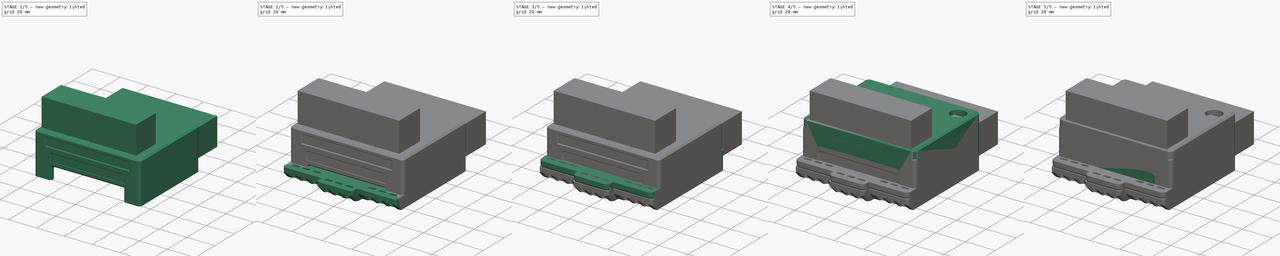
[diagram: build sequence overview — one tinted view per stage of 5, left to right]
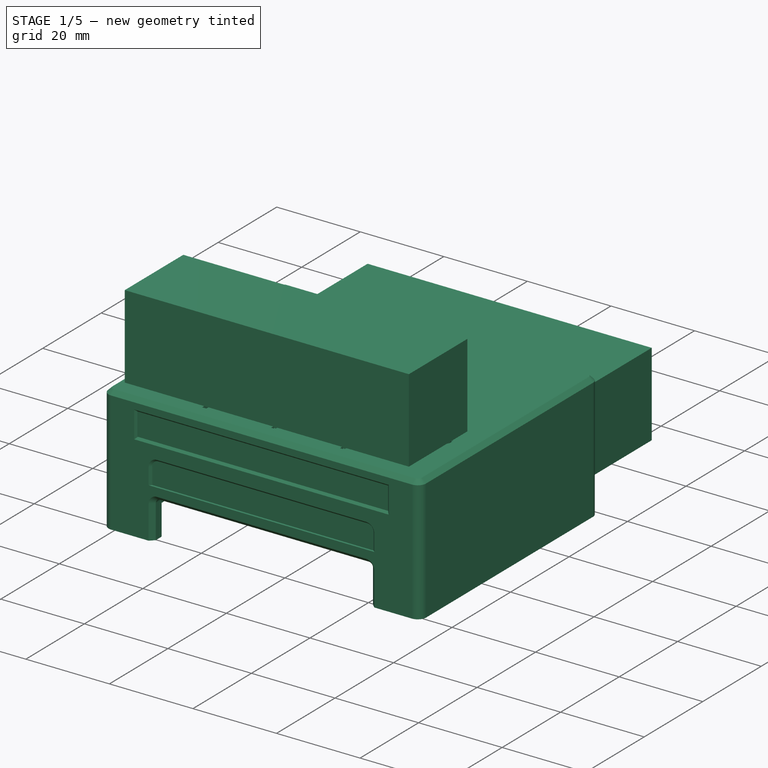
[diagram: stage 1 of 5 — iso view after this stage's code; geometry added in this stage tinted green]
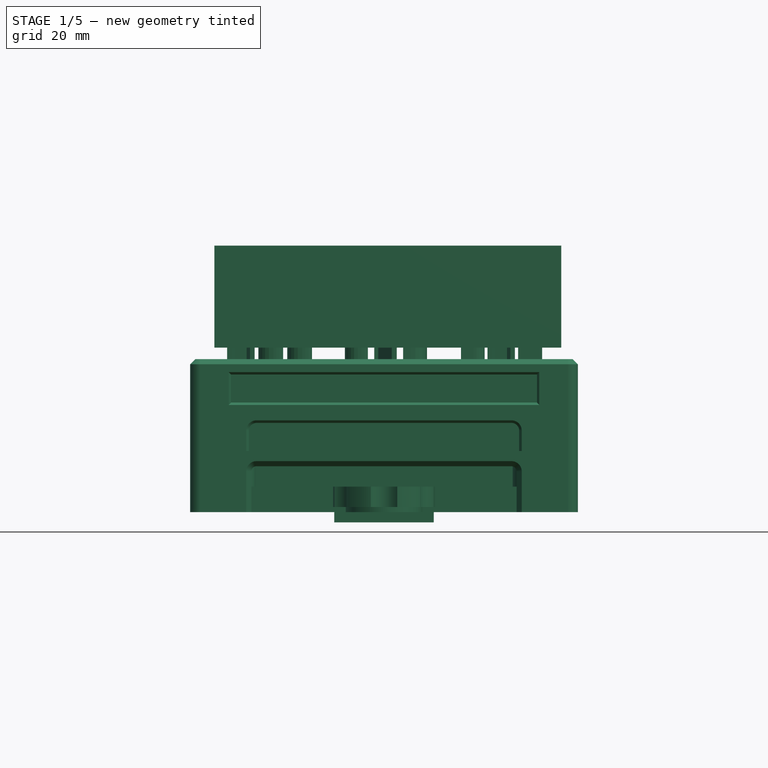
[diagram: stage 1 of 5 — front view after this stage's code; geometry added in this stage tinted green]
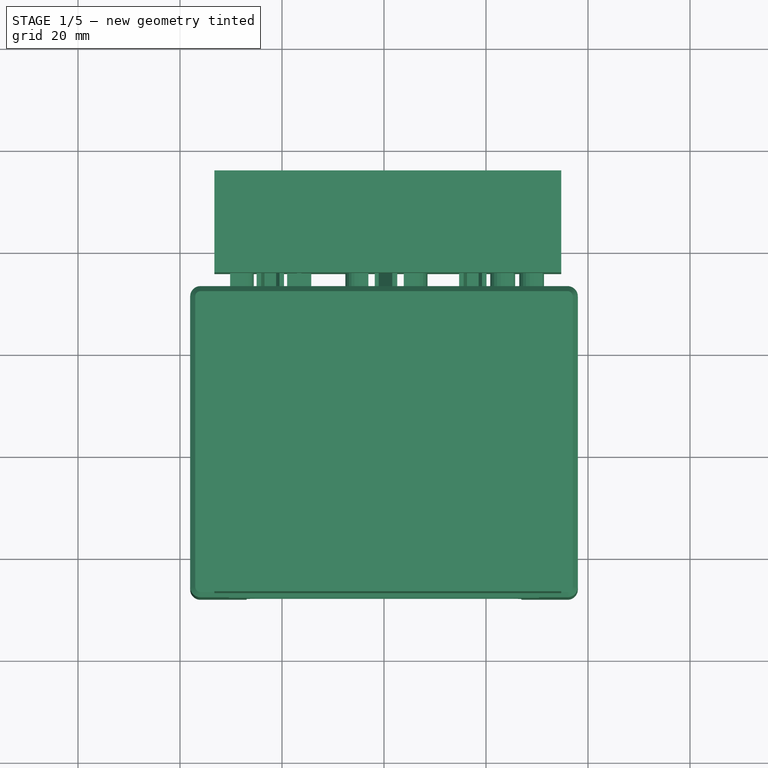
[diagram: stage 1 of 5 — top view after this stage's code; geometry added in this stage tinted green]
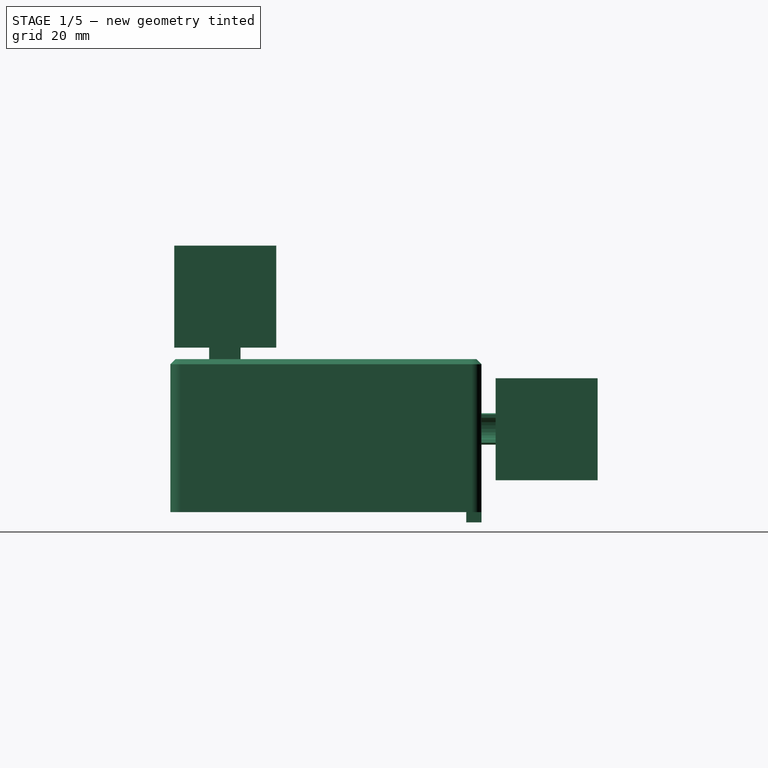
[diagram: stage 1 of 5 — right view after this stage's code; geometry added in this stage tinted green]
FCSTD DOCUMENT  (FreeCAD 0.19R24291 (Git))
Label: fuse-box
License: Other
LicenseURL: GPL3
objects: Sketcher::SketchObject×55, PartDesign::Pocket×39, Part::Feature×19, PartDesign::Chamfer×18, PartDesign::Pad×16, PartDesign::Fillet×9, PartDesign::Plane×9, Part::MultiFuse×6, Part::Chamfer×6, PartDesign::Body×6, Part::Box×5, Part::Cut×3, App::Part×1, Part::Fillet×1, PartDesign::LinearPattern×1
note: 275 computed .brp shape members not serialized (recipe doc carries the construction recipe); baked Part::Feature solids carry a one-line shape summary decoded from their .brp

FEATURE [Sketcher::SketchObject] Sketch041
  FullyConstrained = true
  MapMode = 5
  Support = -> [XY_Plane005]
  sketch-geometry (4):
    g0: LineSegment StartX=-38 StartY=33 StartZ=0 EndX=38 EndY=33 EndZ=0
    g1: LineSegment StartX=38 StartY=33 StartZ=0 EndX=38 EndY=-28 EndZ=0
    g2: LineSegment StartX=38 StartY=-28 StartZ=0 EndX=-38 EndY=-28 EndZ=0
    g3: LineSegment StartX=-38 StartY=-28 StartZ=0 EndX=-38 EndY=33 EndZ=0
  constraints (12):
    c: Coincident(g0,g1)
    c: Coincident(g1,g2)
    c: Coincident(g2,g3)
    c: Coincident(g3,g0)
    c: Horizontal(g0)
    c: Horizontal(g2)
    c: Vertical(g1)
    c: Vertical(g3)
    c: DistanceY(g1,g1) = 61
    c: DistanceY(g-1,g0) = 33
    c: DistanceX(g0,g0) = 76
    c: DistanceX(g0,g-1) = 38
FEATURE [PartDesign::Pad] Pad012
  Direction = (1,1,1)
  Length = 22
  Length2 = 100
  Profile = -> Sketch041
  Type = 0
FEATURE [PartDesign::Plane] DatumPlane002  label="bottom-face001"
  Length = 60
  MapMode = 5
  ResizeMode = 0
  Support = -> [XY_Plane005]
  Width = 60
FEATURE [Sketcher::SketchObject] Sketch042
  FullyConstrained = false
  MapMode = 5
  Support = -> [DatumPlane002]
  sketch-geometry (8):
    g0: LineSegment StartX=-26 StartY=-28 StartZ=0 EndX=-26 EndY=-25 EndZ=0
    g1: LineSegment StartX=-26 StartY=-25 StartZ=0 EndX=-35 EndY=-25 EndZ=0
    g2: LineSegment StartX=-35 StartY=-25 StartZ=0 EndX=-35 EndY=30 EndZ=0
    g3: LineSegment StartX=-35 StartY=30 StartZ=0 EndX=35 EndY=30 EndZ=0
    g4: LineSegment StartX=35 StartY=30 StartZ=0 EndX=35 EndY=-25 EndZ=0
    g5: LineSegment StartX=35 StartY=-25 StartZ=0 EndX=26 EndY=-25 EndZ=0
    g6: LineSegment StartX=26 StartY=-25 StartZ=0 EndX=26 EndY=-28 EndZ=0
    g7: LineSegment StartX=26 StartY=-28 StartZ=0 EndX=-26 EndY=-28 EndZ=0
  constraints (23):
    c: Vertical(g0)
    c: Coincident(g0,g1)
    c: Horizontal(g1)
    c: Coincident(g1,g2)
    c: Vertical(g2)
    c: Coincident(g2,g3)
    c: Horizontal(g3)
    c: Coincident(g3,g4)
    c: Vertical(g4)
    c: Coincident(g4,g5)
    c: Horizontal(g5)
    c: Coincident(g5,g6)
    c: Vertical(g6)
    c: Coincident(g6,g7)
    c: Coincident(g7,g0)
    c: Horizontal(g7)
    c: DistanceX(g1,g1) = 9
    c: DistanceX(g5,g5) = 9
    c: DistanceX(g7,g7) = 52
    c: DistanceX(g1,g-1) = 35
    c: DistanceY(g0,g0) = 3
    c: DistanceY(g0,g-1) = 28
    c: DistanceY(g2,g2) = 55
FEATURE [PartDesign::Pocket] Pocket029
  BaseFeature = -> Pad012
  Length = 20
  Length2 = 100
  Profile = -> Sketch042
  Reversed = true
  Type = 0
FEATURE [PartDesign::Plane] DatumPlane003  label="top-face001"
  AttachmentOffset = pos=(0,0,22) rot=(0,0,1;0rad)
  Length = 60
  MapMode = 5
  Placement = pos=(0,0,22) rot=(0,0,1;0rad)
  ResizeMode = 0
  Support = -> [XY_Plane005]
  Width = 60
FEATURE [Sketcher::SketchObject] Sketch043
  FullyConstrained = true
  MapMode = 5
  Placement = pos=(0,0,22) rot=(0,0,1;0rad)
  Support = -> [DatumPlane003]
  sketch-geometry (8):
    g0: ArcOfCircle CenterX=-28.71 CenterY=-9.2075 CenterZ=0 NormalX=0 NormalY=0 NormalZ=1 AngleXU=0 Radius=3.5 StartAngle=4.71239 EndAngle=7.85398
    g1: ArcOfCircle CenterX=28.71 CenterY=-9.2075 CenterZ=0 NormalX=0 NormalY=0 NormalZ=1 AngleXU=0 Radius=3.5 StartAngle=1.5708 EndAngle=4.71239
    g2: LineSegment StartX=-28.71 StartY=-5.7075 StartZ=0 EndX=-35.71 EndY=-5.7075 EndZ=0
    g3: LineSegment StartX=-35.71 StartY=-5.7075 StartZ=0 EndX=-35.71 EndY=-12.7075 EndZ=0
    g4: LineSegment StartX=-35.71 StartY=-12.7075 StartZ=0 EndX=-28.71 EndY=-12.7075 EndZ=0
    g5: LineSegment StartX=28.71 StartY=-5.7075 StartZ=0 EndX=35.71 EndY=-5.7075 EndZ=0
    g6: LineSegment StartX=35.71 StartY=-5.7075 StartZ=0 EndX=35.71 EndY=-12.7075 EndZ=0
    g7: LineSegment StartX=35.71 StartY=-12.7075 StartZ=0 EndX=28.71 EndY=-12.7075 EndZ=0
  constraints (24):
    c: Vertical(g1,g1)
    c: Vertical(g1,g1)
    c: Vertical(g0,g0)
    c: Vertical(g0,g0)
    c: Horizontal(g0,g1)
    c: Horizontal(g1,g0)
    c: DistanceY(g0,g-1) = 9.2075
    c: DistanceX(g0,g1) = 57.42
    c: DistanceX(g0,g-1) = 28.71
    c: Radius(g0) = 3.5
    c: Tangent(g0,g2) = -1.5708
    c: Coincident(g2,g3)
    c: Vertical(g3)
    c: Coincident(g3,g4)
    c: Coincident(g4,g0)
    c: Horizontal(g4)
    c: Tangent(g1,g5) = 1.5708
    c: Coincident(g5,g6)
    c: Vertical(g6)
    c: Coincident(g6,g7)
    c: Coincident(g7,g1)
    c: Horizontal(g7)
    c: DistanceX(g5,g5) = 7
    c: DistanceX(g2,g2) = 7
FEATURE [PartDesign::Pad] Pad013
  BaseFeature = -> Pocket029
  Direction = (1,1,1)
  Length = 17
  Length2 = 100
  Profile = -> Sketch043
  Reversed = true
  Type = 0
FEATURE [Sketcher::SketchObject] Sketch044
  FullyConstrained = true
  MapMode = 5
  Placement = pos=(0,0,22) rot=(0,0,1;0rad)
  Support = -> [DatumPlane003]
  sketch-geometry (8):
    g0: ArcOfCircle CenterX=-30.21 CenterY=-9.2075 CenterZ=0 NormalX=0 NormalY=0 NormalZ=1 AngleXU=0 Radius=1.7 StartAngle=1.5708 EndAngle=4.71239
    g1: ArcOfCircle CenterX=-28.71 CenterY=-9.2075 CenterZ=0 NormalX=0 NormalY=0 NormalZ=1 AngleXU=0 Radius=1.7 StartAngle=4.71239 EndAngle=7.85398
    g2: LineSegment StartX=-30.21 StartY=-10.9075 StartZ=0 EndX=-28.71 EndY=-10.9075 EndZ=0
    g3: LineSegment StartX=-30.21 StartY=-7.5075 StartZ=0 EndX=-28.71 EndY=-7.5075 EndZ=0
    g4: ArcOfCircle CenterX=28.71 CenterY=-9.2075 CenterZ=0 NormalX=0 NormalY=0 NormalZ=1 AngleXU=0 Radius=1.7 StartAngle=1.5708 EndAngle=4.71239
    g5: ArcOfCircle CenterX=30.21 CenterY=-9.2075 CenterZ=0 NormalX=0 NormalY=0 NormalZ=1 AngleXU=0 Radius=1.7 StartAngle=4.71239 EndAngle=7.85398
    g6: LineSegment StartX=28.71 StartY=-10.9075 StartZ=0 EndX=30.21 EndY=-10.9075 EndZ=0
    g7: LineSegment StartX=28.71 StartY=-7.5075 StartZ=0 EndX=30.21 EndY=-7.5075 EndZ=0
  constraints (20):
    c: Tangent(g0,g3) = 1.5708
    c: Tangent(g0,g2) = -1.5708
    c: Tangent(g2,g1) = -1.5708
    c: Tangent(g3,g1) = 1.5708
    c: Horizontal(g2)
    c: Equal(g0,g1)
    c: Tangent(g4,g7) = 1.5708
    c: Tangent(g4,g6) = -1.5708
    c: Tangent(g6,g5) = -1.5708
    c: Tangent(g7,g5) = 1.5708
    c: Horizontal(g6)
    c: Equal(g4,g5)
    c: Horizontal(g4,g1)
    c: DistanceX(g0,g1) = 1.5
    c: DistanceX(g4,g5) = 1.5
    c: Horizontal(g1,g5)
    c: Radius(g0) = 1.7
    c: DistanceY(g1,g-1) = 9.2075
    c: DistanceX(g1,g-1) = 28.71
    c: DistanceX(g-1,g4) = 28.71
FEATURE [PartDesign::Pocket] Pocket030
  BaseFeature = -> Pad013
  Length = 5
  Length2 = 100
  Profile = -> Sketch044
  Refine = true
  Type = 1
FEATURE [Sketcher::SketchObject] Sketch045
  FullyConstrained = true
  MapMode = 5
  Placement = pos=(0,0,22) rot=(0,0,1;0rad)
  Support = -> [DatumPlane003]
  sketch-geometry (4):
    g0: LineSegment StartX=-26 StartY=-25 StartZ=0 EndX=26 EndY=-25 EndZ=0
    g1: LineSegment StartX=26 StartY=-25 StartZ=0 EndX=26 EndY=-28 EndZ=0
    g2: LineSegment StartX=26 StartY=-28 StartZ=0 EndX=-26 EndY=-28 EndZ=0
    g3: LineSegment StartX=-26 StartY=-28 StartZ=0 EndX=-26 EndY=-25 EndZ=0
  constraints (12):
    c: Coincident(g0,g1)
    c: Coincident(g1,g2)
    c: Coincident(g2,g3)
    c: Coincident(g3,g0)
    c: Horizontal(g0)
    c: Horizontal(g2)
    c: Vertical(g1)
    c: Vertical(g3)
    c: DistanceY(g3,g3) = 3
    c: DistanceY(g0,g-1) = 25
    c: DistanceX(g0,g0) = 52
    c: DistanceX(g-1,g0) = 26
FEATURE [PartDesign::Pad] Pad014
  BaseFeature = -> Pocket030
  Direction = (1,1,1)
  Length = 13
  Length2 = 100
  Profile = -> Sketch045
  Refine = true
  Reversed = true
  Type = 0
FEATURE [Sketcher::SketchObject] Sketch046
  FullyConstrained = true
  MapMode = 5
  Support = -> [DatumPlane002]
  sketch-geometry (4):
    g0: LineSegment StartX=-9.75 StartY=33 StartZ=0 EndX=9.75 EndY=33 EndZ=0
    g1: LineSegment StartX=9.75 StartY=33 StartZ=0 EndX=9.75 EndY=30 EndZ=0
    g2: LineSegment StartX=9.75 StartY=30 StartZ=0 EndX=-9.75 EndY=30 EndZ=0
    g3: LineSegment StartX=-9.75 StartY=30 StartZ=0 EndX=-9.75 EndY=33 EndZ=0
  constraints (12):
    c: Coincident(g0,g1)
    c: Coincident(g1,g2)
    c: Coincident(g2,g3)
    c: Coincident(g3,g0)
    c: Horizontal(g0)
    c: Horizontal(g2)
    c: Vertical(g1)
    c: Vertical(g3)
    c: DistanceX(g0,g0) = 19.5
    c: DistanceX(g0,g-1) = 9.75
    c: DistanceY(g1,g1) = 3
    c: DistanceY(g-1,g1) = 30
FEATURE [PartDesign::Pad] Pad015
  BaseFeature = -> Pad014
  Direction = (1,1,1)
  Length = 2
  Length2 = 100
  Profile = -> Sketch046
  Refine = true
  Reversed = true
  Type = 0
FEATURE [PartDesign::Body] Body002004  label="bottom-slim"
  Group = -> [Sketch034,Pad009,DatumPlane,Sketch035,Pocket025,DatumPlane001,Sketch036,Pad010,Sketch037,Pocket026,Sketch038,Pad011,Sketch039,Pocket027,Sketch040,Pocket028,Sketch047,Pocket031,DatumPlane004,DatumPlane005,DatumPlane006,Sketch048,Pocket032,Sketch049,Pocket033,Sketch050,Pocket034,Sketch051,Pocket035,DatumPlane007,Sketch052,Pocket036,Fillet007013,Chamfer013004014016,DatumPlane008,Sketch053,Pocket037,+1 more]
  Origin = -> Origin004
  Tip = -> LinearPattern
FEATURE [Sketcher::SketchObject] Sketch055
  FullyConstrained = true
  MapMode = 5
  Support = -> [XY_Plane006]
  sketch-geometry (1):
    g0: Circle CenterX=0 CenterY=0 CenterZ=0 NormalX=0 NormalY=0 NormalZ=1 AngleXU=0 Radius=7.5
  constraints (2):
    c: Coincident(g0,g-1)
    c: Radius(g0) = 7.5
FEATURE [PartDesign::Pad] Pad016
  Direction = (1,1,1)
  Length = 1
  Length2 = 100
  Profile = -> Sketch055
  Type = 0
FEATURE [Sketcher::SketchObject] Sketch056
  FullyConstrained = true
  MapMode = 5
  Placement = pos=(0,0,1) rot=(0,0,1;0rad)
  Support = -> [Pad016]
  sketch-geometry (1):
    g0: Circle CenterX=0 CenterY=0 CenterZ=0 NormalX=0 NormalY=0 NormalZ=1 AngleXU=0 Radius=10
  constraints (2):
    c: Coincident(g0,g-1)
    c: Radius(g0) = 10
FEATURE [PartDesign::Pad] Pad017
  BaseFeature = -> Pad016
  Direction = (1,1,1)
  Length = 4
  Length2 = 100
  Profile = -> Sketch056
  Type = 0
FEATURE [Sketcher::SketchObject] Sketch057
  FullyConstrained = true
  MapMode = 5
  Placement = pos=(0,0,5) rot=(0,0,1;0rad)
  Support = -> [Pad017]
  sketch-geometry (13):
    g0: Circle CenterX=0 CenterY=0 CenterZ=0 NormalX=0 NormalY=0 NormalZ=1 AngleXU=0 Radius=12
    g1: LineSegment StartX=0 StartY=0 StartZ=0 EndX=0 EndY=12 EndZ=0
    g2: LineSegment StartX=0 StartY=0 StartZ=0 EndX=10.3923 EndY=6 EndZ=0
    g3: LineSegment StartX=0 StartY=0 StartZ=0 EndX=10.3923 EndY=-6 EndZ=0
    g4: LineSegment StartX=0 StartY=0 StartZ=0 EndX=3.1e-15 EndY=-12 EndZ=0
    g5: LineSegment StartX=0 StartY=0 StartZ=0 EndX=-10.3923 EndY=-6 EndZ=0
    g6: LineSegment StartX=0 StartY=0 StartZ=0 EndX=-10.3923 EndY=6 EndZ=0
    g7: Circle CenterX=-10.3923 CenterY=6 CenterZ=0 NormalX=0 NormalY=0 NormalZ=1 AngleXU=0 Radius=3.5
    g8: Circle CenterX=0 CenterY=12 CenterZ=0 NormalX=0 NormalY=0 NormalZ=1 AngleXU=0 Radius=3.5
    g9: Circle CenterX=10.3923 CenterY=6 CenterZ=0 NormalX=0 NormalY=0 NormalZ=1 AngleXU=0 Radius=3.5
    g10: Circle CenterX=10.3923 CenterY=-6 CenterZ=0 NormalX=0 NormalY=0 NormalZ=1 AngleXU=0 Radius=3.5
    g11: Circle CenterX=3.1e-15 CenterY=-12 CenterZ=0 NormalX=0 NormalY=0 NormalZ=1 AngleXU=0 Radius=3.5
    g12: Circle CenterX=-10.3923 CenterY=-6 CenterZ=0 NormalX=0 NormalY=0 NormalZ=1 AngleXU=0 Radius=3.5
  constraints (32):
    c: Coincident(g0,g-1)
    c: Radius(g0) = 12
    c: Coincident(g1,g-1)
    c: PointOnObject(g1,g0)
    c: Coincident(g2,g-1)
    c: PointOnObject(g2,g0)
    c: Coincident(g3,g-1)
    c: PointOnObject(g3,g0)
    c: Coincident(g4,g-1)
    c: PointOnObject(g4,g0)
    c: Coincident(g5,g-1)
    c: PointOnObject(g5,g0)
    c: Coincident(g6,g-1)
    c: PointOnObject(g6,g0)
    c: Vertical(g1)
    c: Angle(g2,g1) = 1.0472
    c: Angle(g3,g2) = 1.0472
    c: Angle(g4,g3) = 1.0472
    c: Angle(g5,g4) = 1.0472
    c: Angle(g6,g5) = 1.0472
    c: Coincident(g7,g6)
    c: Coincident(g8,g1)
    c: Coincident(g9,g2)
    c: Coincident(g10,g3)
    c: Coincident(g11,g4)
    c: Coincident(g12,g5)
    c: Radius(g8) = 3.5
    c: Radius(g9) = 3.5
    c: Radius(g10) = 3.5
    c: Radius(g11) = 3.5
    c: Radius(g12) = 3.5
    c: Radius(g7) = 3.5
FEATURE [PartDesign::Pocket] Pocket039
  BaseFeature = -> Pad017
  Length = 5
  Length2 = 100
  Profile = -> Sketch057
  Type = 1
FEATURE [Sketcher::SketchObject] Sketch058
  FullyConstrained = true
  MapMode = 5
  Placement = pos=(0,0,5) rot=(0,0,1;0rad)
  Support = -> [Pocket039]
  sketch-geometry (1):
    g0: Circle CenterX=0 CenterY=0 CenterZ=0 NormalX=0 NormalY=0 NormalZ=1 AngleXU=0 Radius=2
  constraints (2):
    c: Coincident(g0,g-1)
    c: Radius(g0) = 2
FEATURE [PartDesign::Pocket] Pocket040
  BaseFeature = -> Pocket039
  Length = 5
  Length2 = 100
  Profile = -> Sketch058
  Type = 1
FEATURE [PartDesign::Body] Body002006  label="knob-slim"
  Group = -> [Sketch055,Pad016,Sketch056,Pad017,Sketch057,Pocket039,Sketch058,Pocket040,Chamfer013004014018]
  Origin = -> Origin006
  Placement = pos=(29.21,-9.2075,30) rot=(0,0,1;0rad)
  Tip = -> Chamfer013004014018
FEATURE [PartDesign::Fillet] Fillet007014
  Base = -> Pad015 [Edge1,Edge24,Edge23,Edge2]
  BaseFeature = -> Pad015
  Radius = 2
  SupportTransform = false
FEATURE [PartDesign::Fillet] Fillet007015
  Base = -> Fillet007014 [Edge86,Edge37,Edge40,Edge95,Edge97,Edge59,Edge44,Edge46,Edge48,Edge38]
  BaseFeature = -> Fillet007014
  Radius = 1
  SupportTransform = false
FEATURE [Sketcher::SketchObject] Sketch059
  FullyConstrained = true
  MapMode = 5
  Placement = pos=(-38,0,0) rot=(0.57735,-0.57735,-0.57735;2.0944rad)
  Support = -> [Fillet007015]
  sketch-geometry (4):
    g0: ArcOfCircle CenterX=-24.5 CenterY=3 CenterZ=0 NormalX=0 NormalY=0 NormalZ=1 AngleXU=0 Radius=4.5 StartAngle=0 EndAngle=3.14159
    g1: LineSegment StartX=-29 StartY=3 StartZ=0 EndX=-29 EndY=0 EndZ=0
    g2: LineSegment StartX=-29 StartY=0 StartZ=0 EndX=-20 EndY=0 EndZ=0
    g3: LineSegment StartX=-20 StartY=0 StartZ=0 EndX=-20 EndY=3 EndZ=0
  constraints (12):
    c: Horizontal(g0,g0)
    c: Horizontal(g0,g0)
    c: Tangent(g0,g1) = -1.5708
    c: Coincident(g1,g2)
    c: Horizontal(g2)
    c: Coincident(g2,g3)
    c: Coincident(g3,g0)
    c: Vertical(g3)
    c: DistanceX(g2,g2) = 9
    c: DistanceY(g1,g1) = 3
    c: DistanceY(g-1,g2) = 0
    c: DistanceX(g2,g-1) = 20
FEATURE [PartDesign::Pocket] Pocket041
  BaseFeature = -> Fillet007015
  Length = 5
  Length2 = 100
  Profile = -> Sketch059
  Type = 0
FEATURE [PartDesign::Chamfer] Chamfer013004014019
  Angle = 45
  Base = -> Pocket041 [Edge25,Edge24,Edge22]
  BaseFeature = -> Pocket041
  ChamferType = 0
  FlipDirection = false
  Size = 1
  Size2 = 1
  SupportTransform = false
FEATURE [PartDesign::Chamfer] Chamfer013004014020
  Angle = 45
  Base = -> Chamfer013004014019 [Edge27,Edge85,Edge86,Edge88,Edge89,Edge87,Edge49,Edge34,Edge50,Edge48,Edge46,Edge44,Edge43]
  BaseFeature = -> Chamfer013004014019
  ChamferType = 0
  FlipDirection = false
  Size = 1
  Size2 = 1
  SupportTransform = false
FEATURE [PartDesign::Chamfer] Chamfer013004014021
  Angle = 45
  Base = -> Chamfer013004014020 [Edge155,Edge154,Edge153,Edge156,Edge158,Edge159,Edge157,Edge160]
  BaseFeature = -> Chamfer013004014020
  ChamferType = 0
  FlipDirection = false
  Size = 0.4
  Size2 = 1
  SupportTransform = false
FEATURE [Part::Feature] Mighty_Uusam_Esboo_1_001001_solid  label="btm-text"
  Placement = pos=(0,13,29) rot=(0,0,1;0rad)
  shape: bbox 68 x 20 x 23.25 mm, 268 faces (baked)
FEATURE [Part::Feature] Mighty_Uusam_Esboo_2_001001_solid  label="top-text"
  Placement = pos=(0,32.5,-14) rot=(1,0,0;4.71239rad)
  shape: bbox 68 x 23.25 x 20 mm, 268 faces (baked)
FEATURE [Sketcher::SketchObject] Sketch060
  FullyConstrained = true
  MapMode = 5
  Placement = pos=(0,0,22) rot=(0,0,1;0rad)
  Support = -> [DatumPlane003]
  sketch-geometry (12):
    g0: LineSegment StartX=-17 StartY=-24 StartZ=0 EndX=-17 EndY=-22 EndZ=0
    g1: LineSegment StartX=-17 StartY=-22 StartZ=0 EndX=17 EndY=-22 EndZ=0
    g2: LineSegment StartX=17 StartY=-22 StartZ=0 EndX=17 EndY=-24 EndZ=0
    g3: LineSegment StartX=17 StartY=-24 StartZ=0 EndX=16 EndY=-24 EndZ=0
    g4: LineSegment StartX=16 StartY=-24 StartZ=0 EndX=16 EndY=-23 EndZ=0
    g5: LineSegment StartX=16 StartY=-23 StartZ=0 EndX=0.5 EndY=-23 EndZ=0
    g6: LineSegment StartX=0.5 StartY=-23 StartZ=0 EndX=0.5 EndY=-24 EndZ=0
    g7: LineSegment StartX=0.5 StartY=-24 StartZ=0 EndX=-0.5 EndY=-24 EndZ=0
    g8: LineSegment StartX=-0.5 StartY=-24 StartZ=0 EndX=-0.5 EndY=-23 EndZ=0
    g9: LineSegment StartX=-0.5 StartY=-23 StartZ=0 EndX=-16 EndY=-23 EndZ=0
    g10: LineSegment StartX=-16 StartY=-23 StartZ=0 EndX=-16 EndY=-24 EndZ=0
    g11: LineSegment StartX=-16 StartY=-24 StartZ=0 EndX=-17 EndY=-24 EndZ=0
  constraints (36):
    c: Vertical(g0)
    c: Coincident(g0,g1)
    c: Horizontal(g1)
    c: Coincident(g1,g2)
    c: Vertical(g2)
    c: Coincident(g2,g3)
    c: Horizontal(g3)
    c: Coincident(g3,g4)
    c: Vertical(g4)
    c: Coincident(g4,g5)
    c: Horizontal(g5)
    c: Coincident(g5,g6)
    c: Vertical(g6)
    c: Coincident(g6,g7)
    c: Coincident(g7,g8)
    c: Vertical(g8)
    c: Coincident(g8,g9)
    c: Horizontal(g9)
    c: Coincident(g9,g10)
    c: Vertical(g10)
    c: Coincident(g10,g11)
    c: Coincident(g11,g0)
    c: Horizontal(g11)
    c: DistanceX(g11,g11) = 1
    c: DistanceX(g7,g7) = 1
    c: DistanceX(g3,g3) = 1
    c: Horizontal(g7)
    c: Horizontal(g10,g6)
    c: Horizontal(g6,g2)
    c: Horizontal(g9,g5)
    c: DistanceX(g8,g-1) = 0.5
    c: DistanceY(g8,g8) = 1
    c: DistanceY(g0,g0) = 2
    c: DistanceY(g0,g-1) = 22
    c: DistanceX(g0,g-1) = 17
    c: DistanceX(g-1,g1) = 17
FEATURE [PartDesign::Pocket] Pocket042
  BaseFeature = -> Chamfer013004014021
  Length = 1
  Length2 = 100
  Profile = -> Sketch060
  Type = 0
FEATURE [Part::MultiFuse] Fusion
  Shapes = -> [Mighty_Uusam_Esboo_1_001001_solid,Mighty_Uusam_Esboo_2_001001_solid]
FEATURE [Sketcher::SketchObject] Sketch061
  FullyConstrained = true
  MapMode = 5
  Placement = pos=(0,-28,0) rot=(1,0,0;1.5708rad)
  Support = -> [Pocket042]
  sketch-geometry (4):
    g0: LineSegment StartX=-30 StartY=19 StartZ=0 EndX=30 EndY=19 EndZ=0
    g1: LineSegment StartX=30 StartY=19 StartZ=0 EndX=30 EndY=12 EndZ=0
    g2: LineSegment StartX=30 StartY=12 StartZ=0 EndX=-30 EndY=12 EndZ=0
    g3: LineSegment StartX=-30 StartY=12 StartZ=0 EndX=-30 EndY=19 EndZ=0
  constraints (12):
    c: Coincident(g0,g1)
    c: Coincident(g1,g2)
    c: Coincident(g2,g3)
    c: Coincident(g3,g0)
    c: Horizontal(g0)
    c: Horizontal(g2)
    c: Vertical(g1)
    c: Vertical(g3)
    c: DistanceY(g1,g1) = 7
    c: DistanceX(g0,g0) = 60
    c: DistanceX(g0,g-1) = 30
    c: DistanceY(g-1,g2) = 12
FEATURE [PartDesign::Pocket] Pocket043
  BaseFeature = -> Pocket042
  Length = 0.5
  Length2 = 100
  Profile = -> Sketch061
  Type = 0
FEATURE [PartDesign::Body] Body002005  label="top-slim"
  Group = -> [Sketch041,Pad012,DatumPlane002,Sketch042,Pocket029,DatumPlane003,Sketch043,Pad013,Sketch044,Pocket030,Sketch045,Pad014,Sketch046,Pad015,Fillet007014,Fillet007015,Sketch059,Pocket041,Chamfer013004014019,Chamfer013004014020,Chamfer013004014021,Sketch060,Pocket042,Sketch061,Pocket043]
  Origin = -> Origin005
  Placement = pos=(0,0,8) rot=(0,0,1;0rad)
  Tip = -> Pocket043
FEATURE [Part::Feature] Mighty_Uusam_Esboo_4_001001_solid  label="Mighty_Uusam_Esboo_4_001001 (Solid)"
  Placement = pos=(4,3,29) rot=(0,0,1;0rad)
  shape: bbox 68 x 20 x 23.25 mm, 268 faces (baked)
FEATURE [Part::Feature] Body002005001  label="top-slim001"
  Placement = pos=(0,0,8) rot=(0,0,1;0rad)
  shape: bbox 76 x 61 x 24 mm, 94 faces (baked)
FEATURE [Part::Cut] Cut002
  Base = -> Body002005001
  Tool = -> Mighty_Uusam_Esboo_4_001001_solid
FEATURE [Part::Chamfer] Chamfer013004014022
  Base = -> Cut002
  Edges = 4 edges r=0.45: [Edge695,Edge696,Edge697,Edge698]
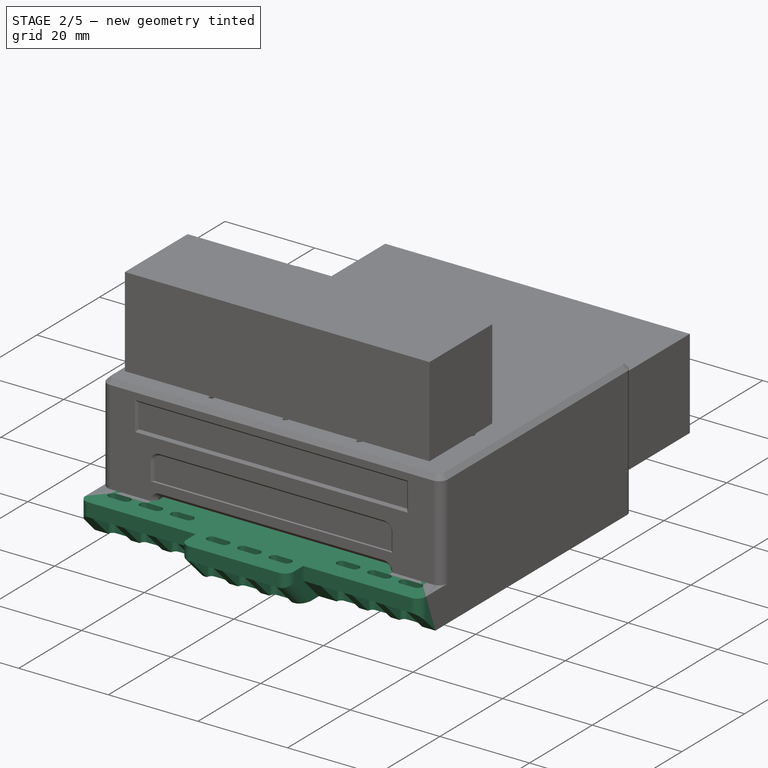
[diagram: stage 2 of 5 — iso view after this stage's code; geometry added in this stage tinted green]
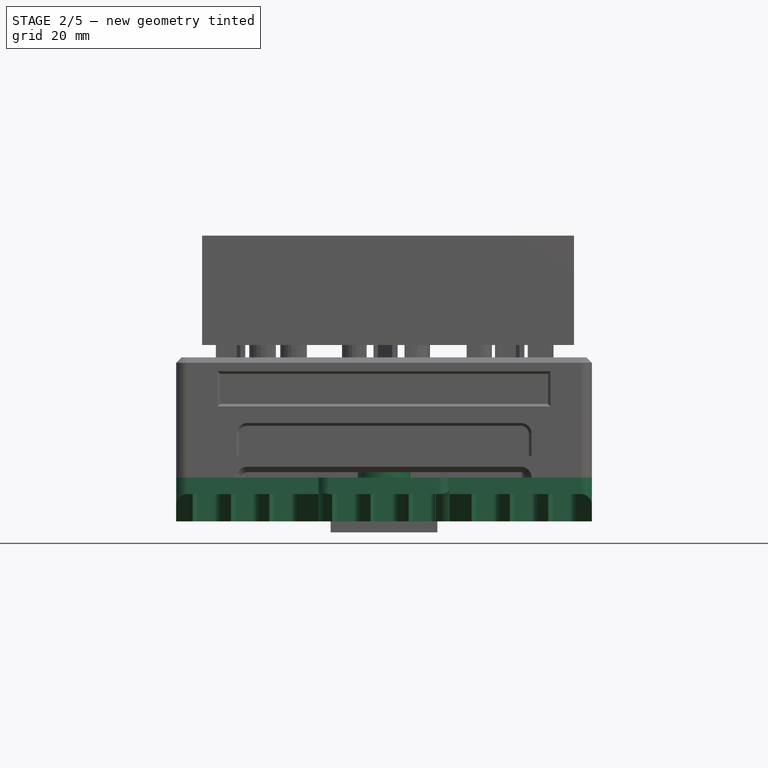
[diagram: stage 2 of 5 — front view after this stage's code; geometry added in this stage tinted green]
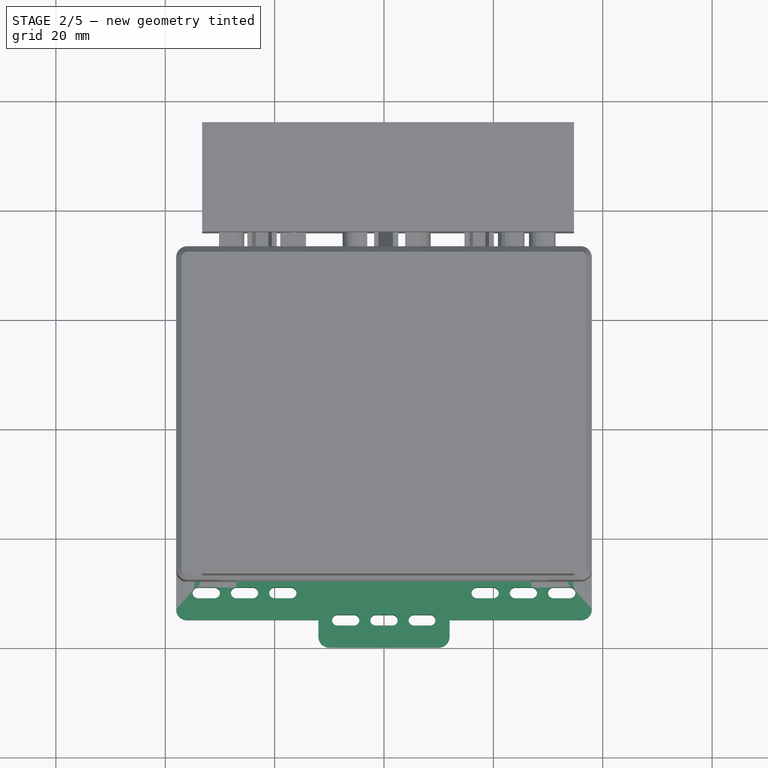
[diagram: stage 2 of 5 — top view after this stage's code; geometry added in this stage tinted green]
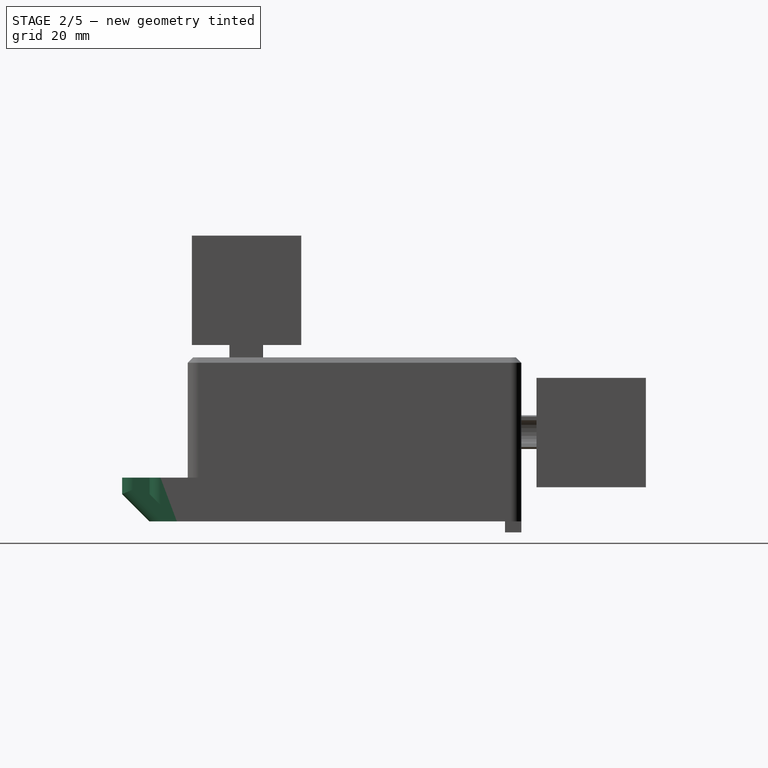
[diagram: stage 2 of 5 — right view after this stage's code; geometry added in this stage tinted green]
FEATURE [PartDesign::Body] Body  label="bottom"
  Group = -> [Sketch,Pad,Sketch001,Pocket,Fillet,Sketch002,Pocket001,Sketch003,Pocket002,Sketch004,Pocket003,Sketch005,Pocket004,Sketch006,Pocket005,Sketch007,Pocket006,Sketch019,Pocket015,Chamfer,Fillet007009,Sketch020,Pocket016,Sketch021,Pocket017,Chamfer013004014004,Chamfer013004014005,Chamfer013004014006,Sketch022,Pocket018,Sketch023,Pocket019,Chamfer013004014007,Sketch024,Pad004,Sketch025,Pocket020,+9 more]
  Origin = -> Origin
  Tip = -> Chamfer013004014011
FEATURE [Sketcher::SketchObject] Sketch028
  FullyConstrained = true
  MapMode = 5
  Support = -> [XY_Plane003]
  sketch-geometry (1):
    g0: Circle CenterX=0 CenterY=0 CenterZ=0 NormalX=0 NormalY=0 NormalZ=1 AngleXU=0 Radius=4.8
  constraints (2):
    c: Radius(g0) = 4.8
    c: Coincident(g0,g-1)
FEATURE [PartDesign::Pad] Pad006
  Direction = (1,1,1)
  Length = 18.5
  Length2 = 100
  Profile = -> Sketch028
  Type = 0
FEATURE [Sketcher::SketchObject] Sketch029
  FullyConstrained = true
  MapMode = 5
  Placement = pos=(0,0,18.5) rot=(0,0,1;0rad)
  Support = -> [Pad006]
  sketch-geometry (1):
    g0: Circle CenterX=0 CenterY=0 CenterZ=0 NormalX=0 NormalY=0 NormalZ=1 AngleXU=0 Radius=8
  constraints (2):
    c: Coincident(g0,g-1)
    c: Radius(g0) = 8
FEATURE [PartDesign::Pad] Pad007
  BaseFeature = -> Pad006
  Direction = (1,1,1)
  Length = 1
  Length2 = 100
  Profile = -> Sketch029
  Type = 0
FEATURE [Sketcher::SketchObject] Sketch030
  FullyConstrained = true
  MapMode = 5
  Placement = pos=(0,0,19.5) rot=(0,0,1;0rad)
  Support = -> [Pad007]
  sketch-geometry (1):
    g0: Circle CenterX=0 CenterY=0 CenterZ=0 NormalX=0 NormalY=0 NormalZ=1 AngleXU=0 Radius=9
  constraints (2):
    c: Coincident(g0,g-1)
    c: Radius(g0) = 9
FEATURE [PartDesign::Pad] Pad008
  BaseFeature = -> Pad007
  Direction = (1,1,1)
  Length = 4
  Length2 = 100
  Profile = -> Sketch030
  Type = 0
FEATURE [PartDesign::Body] Body002003  label="knob"
  Group = -> [Sketch028,Pad006,Sketch029,Pad007,Sketch030,Pad008,Sketch031,Pocket022,Sketch032,Pocket023,Chamfer013004014012,Sketch033,Pocket024,Chamfer013004014013]
  Origin = -> Origin003
  Placement = pos=(29,26,12) rot=(0,0,1;0rad)
  Tip = -> Chamfer013004014013
FEATURE [Sketcher::SketchObject] Sketch034
  FullyConstrained = true
  MapMode = 5
  Support = -> [XY_Plane004]
  sketch-geometry (4):
    g0: LineSegment StartX=-38 StartY=33 StartZ=0 EndX=38 EndY=33 EndZ=0
    g1: LineSegment StartX=38 StartY=33 StartZ=0 EndX=38 EndY=-40 EndZ=0
    g2: LineSegment StartX=38 StartY=-40 StartZ=0 EndX=-38 EndY=-40 EndZ=0
    g3: LineSegment StartX=-38 StartY=-40 StartZ=0 EndX=-38 EndY=33 EndZ=0
  constraints (12):
    c: Coincident(g0,g1)
    c: Coincident(g1,g2)
    c: Coincident(g2,g3)
    c: Coincident(g3,g0)
    c: Horizontal(g0)
    c: Horizontal(g2)
    c: Vertical(g1)
    c: Vertical(g3)
    c: DistanceX(g0,g0) = 76
    c: DistanceY(g3,g3) = 73
    c: DistanceX(g0,g-1) = 38
    c: DistanceY(g-1,g0) = 33
FEATURE [PartDesign::Pad] Pad009
  Direction = (1,1,1)
  Length = 8
  Length2 = 100
  Profile = -> Sketch034
  Type = 0
FEATURE [PartDesign::Plane] DatumPlane  label="top-face"
  AttachmentOffset = pos=(0,0,8) rot=(0,0,1;0rad)
  Length = 90.897
  MapMode = 5
  Placement = pos=(0,0,8) rot=(0,0,1;0rad)
  ResizeMode = 0
  Support = -> [XY_Plane004]
  Width = 87.897
FEATURE [Sketcher::SketchObject] Sketch035
  FullyConstrained = true
  MapMode = 5
  Placement = pos=(0,0,8) rot=(0,0,1;0rad)
  Support = -> [DatumPlane]
  sketch-geometry (4):
    g0: LineSegment StartX=-26 StartY=19.625 StartZ=0 EndX=26 EndY=19.625 EndZ=0
    g1: LineSegment StartX=26 StartY=19.625 StartZ=0 EndX=26 EndY=-19.625 EndZ=0
    g2: LineSegment StartX=26 StartY=-19.625 StartZ=0 EndX=-26 EndY=-19.625 EndZ=0
    g3: LineSegment StartX=-26 StartY=-19.625 StartZ=0 EndX=-26 EndY=19.625 EndZ=0
  constraints (12):
    c: Coincident(g0,g1)
    c: Coincident(g1,g2)
    c: Coincident(g2,g3)
    c: Coincident(g3,g0)
    c: Horizontal(g0)
    c: Horizontal(g2)
    c: Vertical(g1)
    c: Vertical(g3)
    c: DistanceX(g0,g0) = 52
    c: DistanceX(g0,g-1) = 26
    c: DistanceY(g3,g3) = 39.25
    c: DistanceY(g-1,g0) = 19.625
FEATURE [PartDesign::Pocket] Pocket025
  BaseFeature = -> Pad009
  Length = 5
  Length2 = 100
  Profile = -> Sketch035
  Type = 0
FEATURE [PartDesign::Plane] DatumPlane001  label="bottom-face"
  Length = 90.897
  MapMode = 5
  ResizeMode = 0
  Support = -> [XY_Plane004]
  Width = 87.897
FEATURE [Sketcher::SketchObject] Sketch036
  FullyConstrained = true
  MapMode = 5
  Support = -> [DatumPlane001]
  sketch-geometry (4):
    g0: Circle CenterX=-29.21 CenterY=9.2075 CenterZ=0 NormalX=0 NormalY=0 NormalZ=1 AngleXU=0 Radius=4.5
    g1: Circle CenterX=-29.21 CenterY=-9.2075 CenterZ=0 NormalX=0 NormalY=0 NormalZ=1 AngleXU=0 Radius=4.5
    g2: Circle CenterX=29.21 CenterY=9.2075 CenterZ=0 NormalX=0 NormalY=0 NormalZ=1 AngleXU=0 Radius=4.5
    g3: Circle CenterX=29.21 CenterY=-9.2075 CenterZ=0 NormalX=0 NormalY=0 NormalZ=1 AngleXU=0 Radius=4.5
  constraints (12):
    c: Horizontal(g0,g2)
    c: Horizontal(g1,g3)
    c: Vertical(g3,g2)
    c: DistanceX(g0,g-1) = 29.21
    c: DistanceX(g0,g2) = 58.42
    c: DistanceY(g1,g0) = 18.415
    c: DistanceY(g-1,g0) = 9.2075
    c: Radius(g0) = 4.5
    c: Radius(g1) = 4.5
    c: Vertical(g1,g0)
    c: Radius(g2) = 4.5
    c: Radius(g3) = 4.5
FEATURE [PartDesign::Pad] Pad010
  BaseFeature = -> Pocket025
  Direction = (1,1,1)
  Length = 8
  Length2 = 100
  Profile = -> Sketch036
  Type = 0
FEATURE [Sketcher::SketchObject] Sketch037
  FullyConstrained = true
  MapMode = 5
  Support = -> [DatumPlane001]
  sketch-geometry (4):
    g0: Circle CenterX=-29.21 CenterY=9.2075 CenterZ=0 NormalX=0 NormalY=0 NormalZ=1 AngleXU=0 Radius=2
    g1: Circle CenterX=-29.21 CenterY=-9.2075 CenterZ=0 NormalX=0 NormalY=0 NormalZ=1 AngleXU=0 Radius=2
    g2: Circle CenterX=29.21 CenterY=9.2075 CenterZ=0 NormalX=0 NormalY=0 NormalZ=1 AngleXU=0 Radius=2
    g3: Circle CenterX=29.21 CenterY=-9.2075 CenterZ=0 NormalX=0 NormalY=0 NormalZ=1 AngleXU=0 Radius=2
  constraints (12):
    c: Horizontal(g0,g2)
    c: Horizontal(g1,g3)
    c: Vertical(g1,g0)
    c: Vertical(g3,g2)
    c: DistanceY(g1,g0) = 18.415
    c: DistanceY(g-1,g0) = 9.2075
    c: DistanceX(g0,g2) = 58.42
    c: DistanceX(g0,g-1) = 29.21
    c: Radius(g0) = 2
    c: Radius(g1) = 2
    c: Radius(g2) = 2
    c: Radius(g3) = 2
FEATURE [PartDesign::Pocket] Pocket026
  BaseFeature = -> Pad010
  Length = 5
  Length2 = 100
  Profile = -> Sketch037
  Refine = true
  Reversed = true
  Type = 1
FEATURE [Sketcher::SketchObject] Sketch038
  FullyConstrained = true
  MapMode = 5
  Support = -> [DatumPlane001]
  sketch-geometry (28):
    g0: LineSegment StartX=-19 StartY=17 StartZ=0 EndX=-15 EndY=17 EndZ=0
    g1: LineSegment StartX=-15 StartY=17 StartZ=0 EndX=-15 EndY=11 EndZ=0
    g2: LineSegment StartX=-15 StartY=11 StartZ=0 EndX=-19 EndY=11 EndZ=0
    g3: LineSegment StartX=-19 StartY=11 StartZ=0 EndX=-19 EndY=17 EndZ=0
    g4: LineSegment StartX=15 StartY=17 StartZ=0 EndX=19 EndY=17 EndZ=0
    g5: LineSegment StartX=19 StartY=17 StartZ=0 EndX=19 EndY=11 EndZ=0
    g6: LineSegment StartX=19 StartY=11 StartZ=0 EndX=15 EndY=11 EndZ=0
    g7: LineSegment StartX=15 StartY=11 StartZ=0 EndX=15 EndY=17 EndZ=0
    g8: LineSegment StartX=-8 StartY=20 StartZ=0 EndX=8 EndY=20 EndZ=0
    g9: LineSegment StartX=8 StartY=20 StartZ=0 EndX=8 EndY=16 EndZ=0
    g10: LineSegment StartX=8 StartY=16 StartZ=0 EndX=-8 EndY=16 EndZ=0
    g11: LineSegment StartX=-8 StartY=16 StartZ=0 EndX=-8 EndY=20 EndZ=0
    g12: LineSegment StartX=-26 StartY=1 StartZ=0 EndX=26 EndY=1 EndZ=0
    g13: LineSegment StartX=26 StartY=1 StartZ=0 EndX=26 EndY=-2 EndZ=0
    g14: LineSegment StartX=26 StartY=-2 StartZ=0 EndX=-26 EndY=-2 EndZ=0
    g15: LineSegment StartX=-26 StartY=-2 StartZ=0 EndX=-26 EndY=1 EndZ=0
    g16: LineSegment StartX=-26 StartY=-9 StartZ=0 EndX=26 EndY=-9 EndZ=0
    g17: LineSegment StartX=26 StartY=-9 StartZ=0 EndX=26 EndY=-11 EndZ=0
    g18: LineSegment StartX=26 StartY=-11 StartZ=0 EndX=-26 EndY=-11 EndZ=0
    g19: LineSegment StartX=-26 StartY=-11 StartZ=0 EndX=-26 EndY=-9 EndZ=0
    g20: LineSegment StartX=-26 StartY=-17 StartZ=0 EndX=26 EndY=-17 EndZ=0
    g21: LineSegment StartX=26 StartY=-17 StartZ=0 EndX=26 EndY=-20 EndZ=0
    g22: LineSegment StartX=26 StartY=-20 StartZ=0 EndX=-26 EndY=-20 EndZ=0
    g23: LineSegment StartX=-26 StartY=-20 StartZ=0 EndX=-26 EndY=-17 EndZ=0
    g24: LineSegment StartX=-8 StartY=11 StartZ=0 EndX=8 EndY=11 EndZ=0
    g25: LineSegment StartX=8 StartY=11 StartZ=0 EndX=8 EndY=7 EndZ=0
    g26: LineSegment StartX=8 StartY=7 StartZ=0 EndX=-8 EndY=7 EndZ=0
    g27: LineSegment StartX=-8 StartY=7 StartZ=0 EndX=-8 EndY=11 EndZ=0
  constraints (84):
    c: Coincident(g0,g1)
    c: Coincident(g1,g2)
    c: Coincident(g2,g3)
    c: Coincident(g3,g0)
    c: Horizontal(g0)
    c: Horizontal(g2)
    c: Vertical(g1)
    c: Vertical(g3)
    c: Coincident(g4,g5)
    c: Coincident(g5,g6)
    c: Coincident(g6,g7)
    c: Coincident(g7,g4)
    c: Horizontal(g4)
    c: Horizontal(g6)
    c: Vertical(g5)
    c: Vertical(g7)
    c: Coincident(g8,g9)
    c: Coincident(g9,g10)
    c: Coincident(g10,g11)
    c: Coincident(g11,g8)
    c: Horizontal(g8)
    c: Horizontal(g10)
    c: Vertical(g9)
    c: Vertical(g11)
    c: Coincident(g12,g13)
    c: Coincident(g13,g14)
    c: Coincident(g14,g15)
    c: Coincident(g15,g12)
    c: Horizontal(g12)
    c: Horizontal(g14)
    c: Vertical(g13)
    c: Vertical(g15)
    c: Coincident(g16,g17)
    c: Coincident(g17,g18)
    c: Coincident(g18,g19)
    c: Coincident(g19,g16)
    c: Horizontal(g16)
    c: Horizontal(g18)
    c: Vertical(g17)
    c: Vertical(g19)
    c: Coincident(g20,g21)
    c: Coincident(g21,g22)
    c: Coincident(g22,g23)
    c: Coincident(g23,g20)
    c: Horizontal(g20)
    c: Horizontal(g22)
    c: Vertical(g21)
    c: Vertical(g23)
    c: DistanceX(g20,g20) = 52
    c: DistanceX(g20,g-1) = 26
    c: DistanceX(g10,g10) = 16
    c: DistanceX(g10,g-1) = 8
    c: DistanceX(g12,g12) = 52
    c: DistanceX(g12,g-1) = 26
    c: DistanceX(g16,g16) = 52
    c: DistanceX(g16,g-1) = 26
    c: DistanceX(g0,g0) = 4
    c: DistanceX(g4,g4) = 4
    c: Horizontal(g0,g4)
    c: Horizontal(g1,g6)
    c: DistanceY(g3,g3) = 6
    c: DistanceY(g-1,g1) = 11
    c: DistanceX(g1,g-1) = 15
    c: DistanceX(g-1,g6) = 15
    c: DistanceY(g-1,g10) = 16
    c: DistanceY(g11,g11) = 4
    c: DistanceY(g15,g15) = 3
    c: DistanceY(g-1,g12) = 1
    c: DistanceY(g16,g-1) = 9
    c: DistanceY(g19,g19) = 2
    c: Coincident(g24,g25)
    c: Coincident(g25,g26)
    c: Coincident(g26,g27)
    c: Coincident(g27,g24)
    c: Horizontal(g24)
    c: Horizontal(g26)
    c: Vertical(g25)
    c: Vertical(g27)
    c: Vertical(g24,g9)
    c: Vertical(g24,g10)
    c: DistanceY(g-1,g25) = 7
    c: DistanceY(g25,g25) = 4
    c: DistanceY(g20,g-1) = 17
    c: DistanceY(g23,g23) = 3
FEATURE [PartDesign::Pad] Pad011
  BaseFeature = -> Pocket026
  Direction = (1,1,1)
  Length = 8
  Length2 = 100
  Profile = -> Sketch038
  Refine = true
  Type = 0
FEATURE [Sketcher::SketchObject] Sketch039
  FullyConstrained = true
  MapMode = 5
  Support = -> [DatumPlane001]
  sketch-geometry (8):
    g0: LineSegment StartX=-38 StartY=-40 StartZ=0 EndX=-12 EndY=-40 EndZ=0
    g1: LineSegment StartX=-12 StartY=-40 StartZ=0 EndX=-12 EndY=-35 EndZ=0
    g2: LineSegment StartX=-12 StartY=-35 StartZ=0 EndX=-38 EndY=-35 EndZ=0
    g3: LineSegment StartX=-38 StartY=-35 StartZ=0 EndX=-38 EndY=-40 EndZ=0
    g4: LineSegment StartX=12 StartY=-40 StartZ=0 EndX=38 EndY=-40 EndZ=0
    g5: LineSegment StartX=38 StartY=-40 StartZ=0 EndX=38 EndY=-35 EndZ=0
    g6: LineSegment StartX=38 StartY=-35 StartZ=0 EndX=12 EndY=-35 EndZ=0
    g7: LineSegment StartX=12 StartY=-35 StartZ=0 EndX=12 EndY=-40 EndZ=0
  constraints (24):
    c: Coincident(g0,g1)
    c: Coincident(g1,g2)
    c: Coincident(g2,g3)
    c: Coincident(g3,g0)
    c: Horizontal(g0)
    c: Horizontal(g2)
    c: Vertical(g1)
    c: Vertical(g3)
    c: Coincident(g4,g5)
    c: Coincident(g5,g6)
    c: Coincident(g6,g7)
    c: Coincident(g7,g4)
    c: Horizontal(g4)
    c: Horizontal(g6)
    c: Vertical(g5)
    c: Vertical(g7)
    c: Horizontal(g1,g6)
    c: Horizontal(g0,g4)
    c: DistanceX(g0,g0) = 26
    c: DistanceX(g4,g4) = 26
    c: DistanceY(g3,g3) = 5
    c: DistanceY(g1,g-1) = 35
    c: DistanceX(g1,g-1) = 12
    c: DistanceX(g-1,g6) = 12
FEATURE [PartDesign::Pocket] Pocket027
  BaseFeature = -> Pad011
  Length = 5
  Length2 = 100
  Profile = -> Sketch039
  Reversed = true
  Type = 1
FEATURE [Sketcher::SketchObject] Sketch040
  FullyConstrained = true
  MapMode = 5
  Support = -> [DatumPlane001]
  sketch-geometry (2):
    g0: Circle CenterX=-29.21 CenterY=-9.2075 CenterZ=0 NormalX=0 NormalY=0 NormalZ=1 AngleXU=0 Radius=3.2
    g1: Circle CenterX=29.21 CenterY=-9.2075 CenterZ=0 NormalX=0 NormalY=0 NormalZ=1 AngleXU=0 Radius=3.2
  constraints (6):
    c: Horizontal(g0,g1)
    c: DistanceX(g0,g1) = 58.42
    c: DistanceX(g0,g-1) = 29.21
    c: DistanceY(g0,g-1) = 9.2075
    c: Radius(g0) = 3.2
    c: Radius(g1) = 3.2
FEATURE [PartDesign::Pocket] Pocket028
  BaseFeature = -> Pocket027
  Length = 3
  Length2 = 100
  Profile = -> Sketch040
  Reversed = true
  Type = 0
FEATURE [Sketcher::SketchObject] Sketch047
  FullyConstrained = true
  MapMode = 5
  Placement = pos=(0,0,8) rot=(0,0,1;0rad)
  Support = -> [DatumPlane]
  sketch-geometry (4):
    g0: LineSegment StartX=-10 StartY=33 StartZ=0 EndX=10 EndY=33 EndZ=0
    g1: LineSegment StartX=10 StartY=33 StartZ=0 EndX=10 EndY=29.75 EndZ=0
    g2: LineSegment StartX=10 StartY=29.75 StartZ=0 EndX=-10 EndY=29.75 EndZ=0
    g3: LineSegment StartX=-10 StartY=29.75 StartZ=0 EndX=-10 EndY=33 EndZ=0
  constraints (12):
    c: Coincident(g0,g1)
    c: Coincident(g1,g2)
    c: Coincident(g2,g3)
    c: Coincident(g3,g0)
    c: Horizontal(g0)
    c: Horizontal(g2)
    c: Vertical(g1)
    c: Vertical(g3)
    c: DistanceX(g2,g2) = 20
    c: DistanceY(g3,g3) = 3.25
    c: DistanceY(g-1,g0) = 33
    c: DistanceX(g-1,g1) = 10
FEATURE [PartDesign::Pocket] Pocket031
  BaseFeature = -> Pocket028
  Length = 2.5
  Length2 = 100
  Profile = -> Sketch047
  Type = 0
FEATURE [PartDesign::Plane] DatumPlane004  label="right-face"
  AttachmentOffset = pos=(0,0,38) rot=(0,0,1;0rad)
  Length = 85.083
  MapMode = 5
  Placement = pos=(38,-8.4e-15,8.4e-15) rot=(0.57735,0.57735,0.57735;2.0944rad)
  ResizeMode = 0
  Support = -> [YZ_Plane004]
  Width = 62.083
FEATURE [PartDesign::Plane] DatumPlane005  label="left-face"
  AttachmentOffset = pos=(0,0,-38) rot=(0,0,1;0rad)
  Length = 85.083
  MapMode = 5
  Placement = pos=(-38,8.4e-15,-8.4e-15) rot=(0.57735,0.57735,0.57735;2.0944rad)
  ResizeMode = 0
  Support = -> [YZ_Plane004]
  Width = 62.083
FEATURE [PartDesign::Plane] DatumPlane006  label="mid-face"
  Length = 85.083
  MapMode = 5
  Placement = pos=(0,0,0) rot=(0.57735,0.57735,0.57735;2.0944rad)
  ResizeMode = 0
  Support = -> [YZ_Plane004]
  Width = 62.083
FEATURE [Sketcher::SketchObject] Sketch048
  FullyConstrained = true
  MapMode = 5
  Placement = pos=(0,0,0) rot=(0.57735,0.57735,0.57735;2.0944rad)
  Support = -> [DatumPlane006]
  sketch-geometry (3):
    g0: LineSegment StartX=-40 StartY=5 StartZ=0 EndX=-40 EndY=0 EndZ=0
    g1: LineSegment StartX=-40 StartY=0 StartZ=0 EndX=-35 EndY=0 EndZ=0
    g2: LineSegment StartX=-35 StartY=0 StartZ=0 EndX=-40 EndY=5 EndZ=0
  constraints (9):
    c: PointOnObject(g0,g-1)
    c: Vertical(g0)
    c: Coincident(g0,g1)
    c: PointOnObject(g1,g-1)
    c: Coincident(g1,g2)
    c: Coincident(g2,g0)
    c: DistanceX(g1,g1) = 5
    c: DistanceX(g1,g-1) = 35
    c: DistanceY(g0,g0) = 5
FEATURE [PartDesign::Pocket] Pocket032
  BaseFeature = -> Pocket031
  Length = 5
  Length2 = 100
  Midplane = true
  Profile = -> Sketch048
  Type = 1
FEATURE [Sketcher::SketchObject] Sketch049
  FullyConstrained = true
  MapMode = 5
  Placement = pos=(38,-8.4e-15,8.4e-15) rot=(0.57735,0.57735,0.57735;2.0944rad)
  Support = -> [DatumPlane004]
  sketch-geometry (3):
    g0: LineSegment StartX=-35 StartY=5 StartZ=0 EndX=-30 EndY=0 EndZ=0
    g1: LineSegment StartX=-30 StartY=-1e-16 StartZ=0 EndX=-35 EndY=-1e-16 EndZ=0
    g2: LineSegment StartX=-35 StartY=-1e-16 StartZ=0 EndX=-35 EndY=5 EndZ=0
  constraints (9):
    c: Coincident(g0,g1)
    c: Horizontal(g1)
    c: Coincident(g1,g2)
    c: Coincident(g2,g0)
    c: Vertical(g2)
    c: DistanceY(g2,g2) = 5
    c: DistanceX(g1,g1) = 5
    c: DistanceX(g0,g-1) = 30
    c: DistanceY(g-1,g1) = 0
FEATURE [PartDesign::Pocket] Pocket033
  BaseFeature = -> Pocket032
  Length = 0
  Length2 = 100
  Profile = -> Sketch049
  Type = 3
  UpToFace = -> Pocket032 [Face18]
FEATURE [Sketcher::SketchObject] Sketch050
  FullyConstrained = true
  MapMode = 5
  Placement = pos=(-38,8.4e-15,-8.4e-15) rot=(0.57735,0.57735,0.57735;2.0944rad)
  Support = -> [DatumPlane005]
  sketch-geometry (3):
    g0: LineSegment StartX=-35 StartY=5 StartZ=0 EndX=-35 EndY=0 EndZ=0
    g1: LineSegment StartX=-35 StartY=0 StartZ=0 EndX=-30 EndY=0 EndZ=0
    g2: LineSegment StartX=-30 StartY=0 StartZ=0 EndX=-35 EndY=5 EndZ=0
  constraints (9):
    c: PointOnObject(g0,g-1)
    c: Vertical(g0)
    c: Coincident(g0,g1)
    c: PointOnObject(g1,g-1)
    c: Coincident(g1,g2)
    c: Coincident(g2,g0)
    c: DistanceY(g0,g0) = 5
    c: DistanceX(g1,g1) = 5
    c: DistanceX(g1,g-1) = 30
FEATURE [PartDesign::Pocket] Pocket034
  BaseFeature = -> Pocket033
  Length = 0
  Length2 = 100
  Profile = -> Sketch050
  Refine = true
  Reversed = true
  Type = 3
  UpToFace = -> Pocket033 [Face18]
FEATURE [Sketcher::SketchObject] Sketch051
  FullyConstrained = true
  MapMode = 5
  Placement = pos=(0,0,8) rot=(0,0,1;0rad)
  Support = -> [DatumPlane]
  sketch-geometry (36):
    g0: ArcOfCircle CenterX=-34 CenterY=-30 CenterZ=0 NormalX=0 NormalY=0 NormalZ=1 AngleXU=0 Radius=1 StartAngle=1.5708 EndAngle=4.71239
    g1: ArcOfCircle CenterX=-31 CenterY=-30 CenterZ=0 NormalX=0 NormalY=0 NormalZ=1 AngleXU=0 Radius=1 StartAngle=4.71239 EndAngle=7.85398
    g2: LineSegment StartX=-34 StartY=-31 StartZ=0 EndX=-31 EndY=-31 EndZ=0
    g3: LineSegment StartX=-34 StartY=-29 StartZ=0 EndX=-31 EndY=-29 EndZ=0
    g4: ArcOfCircle CenterX=-27 CenterY=-30 CenterZ=0 NormalX=0 NormalY=0 NormalZ=1 AngleXU=0 Radius=1 StartAngle=1.5708 EndAngle=4.71239
    g5: ArcOfCircle CenterX=-24 CenterY=-30 CenterZ=0 NormalX=0 NormalY=0 NormalZ=1 AngleXU=0 Radius=1 StartAngle=4.71239 EndAngle=7.85398
    g6: LineSegment StartX=-27 StartY=-31 StartZ=0 EndX=-24 EndY=-31 EndZ=0
    g7: LineSegment StartX=-27 StartY=-29 StartZ=0 EndX=-24 EndY=-29 EndZ=0
    g8: ArcOfCircle CenterX=-20 CenterY=-30 CenterZ=0 NormalX=0 NormalY=0 NormalZ=1 AngleXU=0 Radius=1 StartAngle=1.5708 EndAngle=4.71239
    g9: ArcOfCircle CenterX=-17 CenterY=-30 CenterZ=0 NormalX=0 NormalY=0 NormalZ=1 AngleXU=0 Radius=1 StartAngle=4.71239 EndAngle=7.85398
    g10: LineSegment StartX=-20 StartY=-31 StartZ=0 EndX=-17 EndY=-31 EndZ=0
    g11: LineSegment StartX=-20 StartY=-29 StartZ=0 EndX=-17 EndY=-29 EndZ=0
    g12: ArcOfCircle CenterX=17 CenterY=-30 CenterZ=0 NormalX=0 NormalY=0 NormalZ=1 AngleXU=0 Radius=1 StartAngle=1.5708 EndAngle=4.71239
    g13: ArcOfCircle CenterX=20 CenterY=-30 CenterZ=0 NormalX=0 NormalY=0 NormalZ=1 AngleXU=0 Radius=1 StartAngle=4.71239 EndAngle=7.85398
    g14: LineSegment StartX=17 StartY=-31 StartZ=0 EndX=20 EndY=-31 EndZ=0
    g15: LineSegment StartX=17 StartY=-29 StartZ=0 EndX=20 EndY=-29 EndZ=0
    g16: ArcOfCircle CenterX=24 CenterY=-30 CenterZ=0 NormalX=0 NormalY=0 NormalZ=1 AngleXU=0 Radius=1 StartAngle=1.5708 EndAngle=4.71239
    g17: ArcOfCircle CenterX=27 CenterY=-30 CenterZ=0 NormalX=0 NormalY=0 NormalZ=1 AngleXU=0 Radius=1 StartAngle=4.71239 EndAngle=7.85398
    g18: LineSegment StartX=24 StartY=-31 StartZ=0 EndX=27 EndY=-31 EndZ=0
    g19: LineSegment StartX=24 StartY=-29 StartZ=0 EndX=27 EndY=-29 EndZ=0
    g20: ArcOfCircle CenterX=31 CenterY=-30 CenterZ=0 NormalX=0 NormalY=0 NormalZ=1 AngleXU=0 Radius=1 StartAngle=1.5708 EndAngle=4.71239
    g21: ArcOfCircle CenterX=34 CenterY=-30 CenterZ=0 NormalX=0 NormalY=0 NormalZ=1 AngleXU=0 Radius=1 StartAngle=4.71239 EndAngle=7.85398
    g22: LineSegment StartX=31 StartY=-31 StartZ=0 EndX=34 EndY=-31 EndZ=0
    g23: LineSegment StartX=31 StartY=-29 StartZ=0 EndX=34 EndY=-29 EndZ=0
    g24: ArcOfCircle CenterX=-8.5 CenterY=-35 CenterZ=0 NormalX=0 NormalY=0 NormalZ=1 AngleXU=0 Radius=1 StartAngle=1.5708 EndAngle=4.71239
    g25: ArcOfCircle CenterX=-5.5 CenterY=-35 CenterZ=0 NormalX=0 NormalY=0 NormalZ=1 AngleXU=0 Radius=1 StartAngle=4.71239 EndAngle=7.85398
    g26: LineSegment StartX=-8.5 StartY=-36 StartZ=0 EndX=-5.5 EndY=-36 EndZ=0
    g27: LineSegment StartX=-8.5 StartY=-34 StartZ=0 EndX=-5.5 EndY=-34 EndZ=0
    g28: ArcOfCircle CenterX=-1.5 CenterY=-35 CenterZ=0 NormalX=0 NormalY=0 NormalZ=1 AngleXU=0 Radius=1 StartAngle=1.5708 EndAngle=4.71239
    g29: ArcOfCircle CenterX=1.5 CenterY=-35 CenterZ=0 NormalX=0 NormalY=0 NormalZ=1 AngleXU=0 Radius=1 StartAngle=4.71239 EndAngle=7.85398
    g30: LineSegment StartX=-1.5 StartY=-36 StartZ=0 EndX=1.5 EndY=-36 EndZ=0
    g31: LineSegment StartX=-1.5 StartY=-34 StartZ=0 EndX=1.5 EndY=-34 EndZ=0
    g32: ArcOfCircle CenterX=5.5 CenterY=-35 CenterZ=0 NormalX=0 NormalY=0 NormalZ=1 AngleXU=0 Radius=1 StartAngle=1.5708 EndAngle=4.71239
    g33: ArcOfCircle CenterX=8.41 CenterY=-35 CenterZ=0 NormalX=0 NormalY=0 NormalZ=1 AngleXU=0 Radius=1 StartAngle=4.71239 EndAngle=7.85398
    g34: LineSegment StartX=5.5 StartY=-36 StartZ=0 EndX=8.41 EndY=-36 EndZ=0
    g35: LineSegment StartX=5.5 StartY=-34 StartZ=0 EndX=8.41 EndY=-34 EndZ=0
  constraints (90):
    c: Tangent(g0,g3) = 1.5708
    c: Tangent(g0,g2) = -1.5708
    c: Tangent(g2,g1) = -1.5708
    c: Tangent(g3,g1) = 1.5708
    c: Horizontal(g2)
    c: Equal(g0,g1)
    c: Tangent(g4,g7) = 1.5708
    c: Tangent(g4,g6) = -1.5708
    c: Tangent(g6,g5) = -1.5708
    c: Tangent(g7,g5) = 1.5708
    c: Horizontal(g6)
    c: Equal(g4,g5)
    c: Tangent(g8,g11) = 1.5708
    c: Tangent(g8,g10) = -1.5708
    c: Tangent(g10,g9) = -1.5708
    c: Tangent(g11,g9) = 1.5708
    c: Horizontal(g10)
    c: Equal(g8,g9)
    c: Tangent(g12,g15) = 1.5708
    c: Tangent(g12,g14) = -1.5708
    c: Tangent(g14,g13) = -1.5708
    c: Tangent(g15,g13) = 1.5708
    c: Horizontal(g14)
    c: Equal(g12,g13)
    c: Tangent(g16,g19) = 1.5708
    c: Tangent(g16,g18) = -1.5708
    c: Tangent(g18,g17) = -1.5708
    c: Tangent(g19,g17) = 1.5708
    c: Horizontal(g18)
    c: Equal(g16,g17)
    c: Tangent(g20,g23) = 1.5708
    c: Tangent(g20,g22) = -1.5708
    c: Tangent(g22,g21) = -1.5708
    c: Tangent(g23,g21) = 1.5708
    c: Horizontal(g22)
    c: Equal(g20,g21)
    c: Tangent(g24,g27) = 1.5708
    c: Tangent(g24,g26) = -1.5708
    c: Tangent(g26,g25) = -1.5708
    c: Tangent(g27,g25) = 1.5708
    c: Horizontal(g26)
    c: Equal(g24,g25)
    c: Tangent(g28,g31) = 1.5708
    c: Tangent(g28,g30) = -1.5708
    c: Tangent(g30,g29) = -1.5708
    c: Tangent(g31,g29) = 1.5708
    c: Horizontal(g30)
    c: Equal(g28,g29)
    c: Tangent(g32,g35) = 1.5708
    c: Tangent(g32,g34) = -1.5708
    c: Tangent(g34,g33) = -1.5708
    c: Tangent(g35,g33) = 1.5708
    c: Horizontal(g34)
    c: Equal(g32,g33)
    c: Horizontal(g1,g5)
    c: Horizontal(g5,g9)
    c: Horizontal(g9,g13)
    c: Horizontal(g13,g17)
    c: Horizontal(g17,g21)
    c: Horizontal(g20,g16)
    c: Horizontal(g16,g12)
    c: Horizontal(g12,g8)
    c: Horizontal(g8,g4)
    c: Horizontal(g4,g0)
    c: DistanceY(g0,g0) = 2
    c: DistanceY(g9,g-1) = 30
    c: DistanceX(g0,g1) = 3
    c: DistanceX(g4,g5) = 3
    c: DistanceX(g8,g9) = 3
    c: DistanceX(g9,g-1) = 17
    c: DistanceX(g5,g8) = 4
    c: DistanceX(g1,g4) = 4
    c: DistanceX(g-1,g12) = 17
    c: DistanceX(g12,g13) = 3
    c: DistanceX(g13,g16) = 4
    c: DistanceX(g16,g17) = 3
    c: DistanceX(g17,g20) = 4
    c: DistanceX(g20,g21) = 3
    c: DistanceX(g24,g25) = 3
    c: DistanceX(g28,g29) = 3
    c: DistanceX(g32,g33) = 2.91
    c: DistanceX(g25,g28) = 4
    c: DistanceX(g28,g-1) = 1.5
    c: DistanceY(g28,g-1) = 35
    c: Horizontal(g25,g29)
    c: Horizontal(g29,g33)
    c: Horizontal(g25,g29)
    c: Horizontal(g29,g33)
    c: DistanceX(g29,g32) = 4
    c: DistanceY(g24,g24) = 2
FEATURE [PartDesign::Pocket] Pocket035
  BaseFeature = -> Pocket034
  Length = 3
  Length2 = 100
  Profile = -> Sketch051
  Type = 1
FEATURE [PartDesign::Plane] DatumPlane007  label="front-face"
  AttachmentOffset = pos=(0,0,40) rot=(0,0,1;0rad)
  Length = 88.3288
  MapMode = 5
  Placement = pos=(0,-40,-8.9e-15) rot=(1,0,0;1.5708rad)
  ResizeMode = 0
  Support = -> [XZ_Plane004]
  Width = 62.3288
FEATURE [Sketcher::SketchObject] Sketch052
  FullyConstrained = true
  MapMode = 5
  Support = -> [DatumPlane001]
  sketch-geometry (36):
    g0: LineSegment StartX=-35 StartY=-30 StartZ=0 EndX=-30 EndY=-30 EndZ=0
    g1: LineSegment StartX=-30 StartY=-30 StartZ=0 EndX=-30 EndY=-35 EndZ=0
    g2: LineSegment StartX=-30 StartY=-35 StartZ=0 EndX=-35 EndY=-35 EndZ=0
    g3: LineSegment StartX=-35 StartY=-35 StartZ=0 EndX=-35 EndY=-30 EndZ=0
    g4: LineSegment StartX=-28 StartY=-30 StartZ=0 EndX=-23 EndY=-30 EndZ=0
    g5: LineSegment StartX=-23 StartY=-30 StartZ=0 EndX=-23 EndY=-35 EndZ=0
    g6: LineSegment StartX=-23 StartY=-35 StartZ=0 EndX=-28 EndY=-35 EndZ=0
    g7: LineSegment StartX=-28 StartY=-35 StartZ=0 EndX=-28 EndY=-30 EndZ=0
    g8: LineSegment StartX=-21 StartY=-30 StartZ=0 EndX=-16 EndY=-30 EndZ=0
    g9: LineSegment StartX=-16 StartY=-30 StartZ=0 EndX=-16 EndY=-35 EndZ=0
    g10: LineSegment StartX=-16 StartY=-35 StartZ=0 EndX=-21 EndY=-35 EndZ=0
    g11: LineSegment StartX=-21 StartY=-35 StartZ=0 EndX=-21 EndY=-30 EndZ=0
    g12: LineSegment StartX=-9.5 StartY=-35 StartZ=0 EndX=-4.5 EndY=-35 EndZ=0
    g13: LineSegment StartX=-4.5 StartY=-35 StartZ=0 EndX=-4.5 EndY=-40 EndZ=0
    g14: LineSegment StartX=-4.5 StartY=-40 StartZ=0 EndX=-9.5 EndY=-40 EndZ=0
    g15: LineSegment StartX=-9.5 StartY=-40 StartZ=0 EndX=-9.5 EndY=-35 EndZ=0
    g16: LineSegment StartX=-2.5 StartY=-35 StartZ=0 EndX=2.5 EndY=-35 EndZ=0
    g17: LineSegment StartX=2.5 StartY=-35 StartZ=0 EndX=2.5 EndY=-40 EndZ=0
    g18: LineSegment StartX=2.5 StartY=-40 StartZ=0 EndX=-2.5 EndY=-40 EndZ=0
    g19: LineSegment StartX=-2.5 StartY=-40 StartZ=0 EndX=-2.5 EndY=-35 EndZ=0
    g20: LineSegment StartX=4.5 StartY=-35 StartZ=0 EndX=9.5 EndY=-35 EndZ=0
    g21: LineSegment StartX=9.5 StartY=-35 StartZ=0 EndX=9.5 EndY=-40 EndZ=0
    g22: LineSegment StartX=9.5 StartY=-40 StartZ=0 EndX=4.5 EndY=-40 EndZ=0
    g23: LineSegment StartX=4.5 StartY=-40 StartZ=0 EndX=4.5 EndY=-35 EndZ=0
    g24: LineSegment StartX=16 StartY=-30 StartZ=0 EndX=21 EndY=-30 EndZ=0
    g25: LineSegment StartX=21 StartY=-30 StartZ=0 EndX=21 EndY=-35 EndZ=0
    g26: LineSegment StartX=21 StartY=-35 StartZ=0 EndX=16 EndY=-35 EndZ=0
    g27: LineSegment StartX=16 StartY=-35 StartZ=0 EndX=16 EndY=-30 EndZ=0
    g28: LineSegment StartX=23 StartY=-30 StartZ=0 EndX=28 EndY=-30 EndZ=0
    g29: LineSegment StartX=28 StartY=-30 StartZ=0 EndX=28 EndY=-35 EndZ=0
    g30: LineSegment StartX=28 StartY=-35 StartZ=0 EndX=23 EndY=-35 EndZ=0
    g31: LineSegment StartX=23 StartY=-35 StartZ=0 EndX=23 EndY=-30 EndZ=0
    g32: LineSegment StartX=30 StartY=-30 StartZ=0 EndX=35 EndY=-30 EndZ=0
    g33: LineSegment StartX=35 StartY=-30 StartZ=0 EndX=35 EndY=-35 EndZ=0
    g34: LineSegment StartX=35 StartY=-35 StartZ=0 EndX=30 EndY=-35 EndZ=0
    g35: LineSegment StartX=30 StartY=-35 StartZ=0 EndX=30 EndY=-30 EndZ=0
  constraints (108):
    c: Coincident(g0,g1)
    c: Coincident(g1,g2)
    c: Coincident(g2,g3)
    c: Coincident(g3,g0)
    c: Horizontal(g0)
    c: Horizontal(g2)
    c: Vertical(g1)
    c: Vertical(g3)
    c: Coincident(g4,g5)
    c: Coincident(g5,g6)
    c: Coincident(g6,g7)
    c: Coincident(g7,g4)
    c: Horizontal(g4)
    c: Horizontal(g6)
    c: Vertical(g5)
    c: Vertical(g7)
    c: Coincident(g8,g9)
    c: Coincident(g9,g10)
    c: Coincident(g10,g11)
    c: Coincident(g11,g8)
    c: Horizontal(g8)
    c: Horizontal(g10)
    c: Vertical(g9)
    c: Vertical(g11)
    c: Coincident(g12,g13)
    c: Coincident(g13,g14)
    c: Coincident(g14,g15)
    c: Coincident(g15,g12)
    c: Horizontal(g12)
    c: Horizontal(g14)
    c: Vertical(g13)
    c: Vertical(g15)
    c: Coincident(g16,g17)
    c: Coincident(g17,g18)
    c: Coincident(g18,g19)
    c: Coincident(g19,g16)
    c: Horizontal(g16)
    c: Horizontal(g18)
    c: Vertical(g17)
    c: Vertical(g19)
    c: Coincident(g20,g21)
    c: Coincident(g21,g22)
    c: Coincident(g22,g23)
    c: Coincident(g23,g20)
    c: Horizontal(g20)
    c: Horizontal(g22)
    c: Vertical(g21)
    c: Vertical(g23)
    c: Coincident(g24,g25)
    c: Coincident(g25,g26)
    c: Coincident(g26,g27)
    c: Coincident(g27,g24)
    c: Horizontal(g24)
    c: Horizontal(g26)
    c: Vertical(g25)
    c: Vertical(g27)
    c: Coincident(g28,g29)
    c: Coincident(g29,g30)
    c: Coincident(g30,g31)
    c: Coincident(g31,g28)
    c: Horizontal(g28)
    c: Horizontal(g30)
    c: Vertical(g29)
    c: Vertical(g31)
    c: Coincident(g32,g33)
    c: Coincident(g33,g34)
    c: Coincident(g34,g35)
    c: Coincident(g35,g32)
    c: Horizontal(g32)
    c: Horizontal(g34)
    c: Vertical(g33)
    c: Vertical(g35)
    c: Horizontal(g0,g4)
    c: Horizontal(g4,g8)
    c: Horizontal(g8,g24)
    c: Horizontal(g24,g28)
    c: Horizontal(g28,g32)
    c: Horizontal(g1,g5)
    c: Horizontal(g5,g9)
    c: Horizontal(g9,g25)
    c: Horizontal(g25,g29)
    c: Horizontal(g29,g33)
    c: Horizontal(g12,g16)
    c: Horizontal(g16,g20)
    c: Horizontal(g13,g17)
    c: Horizontal(g17,g21)
    c: DistanceY(g3,g3) = 5
    c: DistanceY(g8,g-1) = 30
    c: DistanceY(g15,g15) = 5
    c: DistanceY(g12,g-1) = 35
    c: DistanceX(g0,g0) = 5
    c: DistanceX(g0,g4) = 2
    c: DistanceX(g4,g4) = 5
    c: DistanceX(g4,g8) = 2
    c: DistanceX(g8,g8) = 5
    c: DistanceX(g8,g-1) = 16
    c: DistanceX(g32,g32) = 5
    c: DistanceX(g28,g28) = 5
    c: DistanceX(g24,g24) = 5
    c: DistanceX(g28,g32) = 2
    c: DistanceX(g24,g28) = 2
    c: DistanceX(g-1,g24) = 16
    c: DistanceX(g12,g12) = 5
    c: DistanceX(g16,g16) = 5
    c: DistanceX(g20,g20) = 5
    c: DistanceX(g12,g16) = 2
    c: DistanceX(g16,g20) = 2
    c: DistanceX(g16,g-1) = 2.5
FEATURE [PartDesign::Pocket] Pocket036
  BaseFeature = -> Pocket035
  Length = 5
  Length2 = 100
  Profile = -> Sketch052
  Refine = true
  Reversed = true
  Type = 0
FEATURE [PartDesign::Fillet] Fillet007013
  Base = -> Pocket036 [Edge8,Edge139,Edge266,Edge267,Edge58,Edge2,Edge212,Edge244]
  BaseFeature = -> Pocket036
  Radius = 2
  SupportTransform = false
FEATURE [PartDesign::Chamfer] Chamfer013004014016
  Angle = 45
  Base = -> Fillet007013 [Edge60,Edge58,Edge59,Edge57,Edge143,Edge122,Edge123,Edge99]
  BaseFeature = -> Fillet007013
  ChamferType = 0
  FlipDirection = false
  Size = 0.4
  Size2 = 1
  SupportTransform = false
FEATURE [PartDesign::Plane] DatumPlane008
  AttachmentOffset = pos=(0,0,-32) rot=(0,0,1;0rad)
  Length = 85.083
  MapMode = 5
  Placement = pos=(-32,7.1e-15,-7.1e-15) rot=(0.57735,0.57735,0.57735;2.0944rad)
  ResizeMode = 0
  Support = -> [YZ_Plane004]
  Width = 62.083
FEATURE [Sketcher::SketchObject] Sketch053
  FullyConstrained = false
  MapMode = 5
  Placement = pos=(-32,7.1e-15,-7.1e-15) rot=(0.57735,0.57735,0.57735;2.0944rad)
  Support = -> [DatumPlane008]
  sketch-geometry (12):
    g0: LineSegment StartX=22 StartY=8 StartZ=0 EndX=22 EndY=7 EndZ=0
    g1: LineSegment StartX=22 StartY=7 StartZ=0 EndX=23 EndY=6 EndZ=0
    g2: LineSegment StartX=23 StartY=6 StartZ=0 EndX=26 EndY=6 EndZ=0
    g3: LineSegment StartX=26 StartY=6 StartZ=0 EndX=27 EndY=7 EndZ=0
    g4: LineSegment StartX=27 StartY=7 StartZ=0 EndX=27 EndY=8 EndZ=0
    g5: LineSegment StartX=27 StartY=8 StartZ=0 EndX=29 EndY=8 EndZ=0
    g6: LineSegment StartX=29 StartY=8 StartZ=0 EndX=29 EndY=7 EndZ=0
    g7: LineSegment StartX=29 StartY=7 StartZ=0 EndX=26 EndY=4 EndZ=0
    g8: LineSegment StartX=26 StartY=4 StartZ=0 EndX=23 EndY=4 EndZ=0
    g9: LineSegment StartX=23 StartY=4 StartZ=0 EndX=20 EndY=7 EndZ=0
    g10: LineSegment StartX=20 StartY=7 StartZ=0 EndX=20 EndY=8 EndZ=0
    g11: LineSegment StartX=20 StartY=8 StartZ=0 EndX=22 EndY=8 EndZ=0
  constraints (20):
    c: Vertical(g0)
    c: Coincident(g0,g1)
    c: Coincident(g1,g2)
    c: Horizontal(g2)
    c: Coincident(g2,g3)
    c: Coincident(g3,g4)
    c: Vertical(g4)
    c: Coincident(g4,g5)
    c: Horizontal(g5)
    c: Coincident(g5,g6)
    c: Vertical(g6)
    c: Coincident(g6,g7)
    c: Coincident(g7,g8)
    c: Horizontal(g8)
    c: Coincident(g8,g9)
    c: Coincident(g9,g10)
    c: Vertical(g10)
    c: Coincident(g10,g11)
    c: Coincident(g11,g0)
    c: Horizontal(g11)
FEATURE [PartDesign::Pocket] Pocket037
  BaseFeature = -> Chamfer013004014016
  Length = 3
  Length2 = 100
  Profile = -> Sketch053
  Reversed = true
  Type = 0
FEATURE [PartDesign::LinearPattern] LinearPattern
  BaseFeature = -> Pocket037
  Direction = -> Sketch053 [N_Axis]
  Length = 12
  Occurrences = 2
  Originals = -> [Pocket037]
FEATURE [PartDesign::Chamfer] Chamfer013004014018
  Angle = 45
  Base = -> Pocket040 [Face4,Face20]
  BaseFeature = -> Pocket040
  ChamferType = 0
  FlipDirection = false
  Size = 0.4
  Size2 = 1
  SupportTransform = false
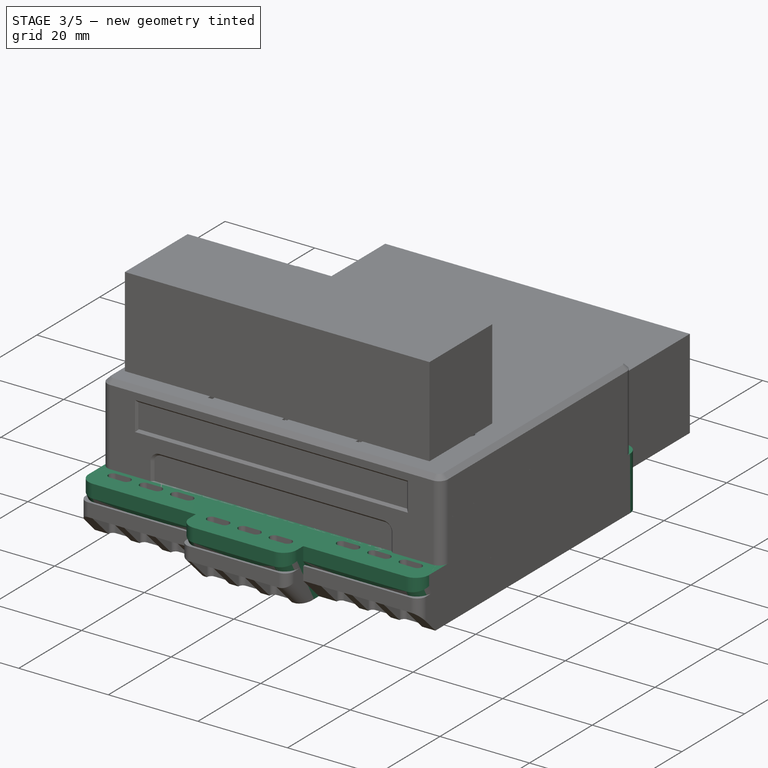
[diagram: stage 3 of 5 — iso view after this stage's code; geometry added in this stage tinted green]
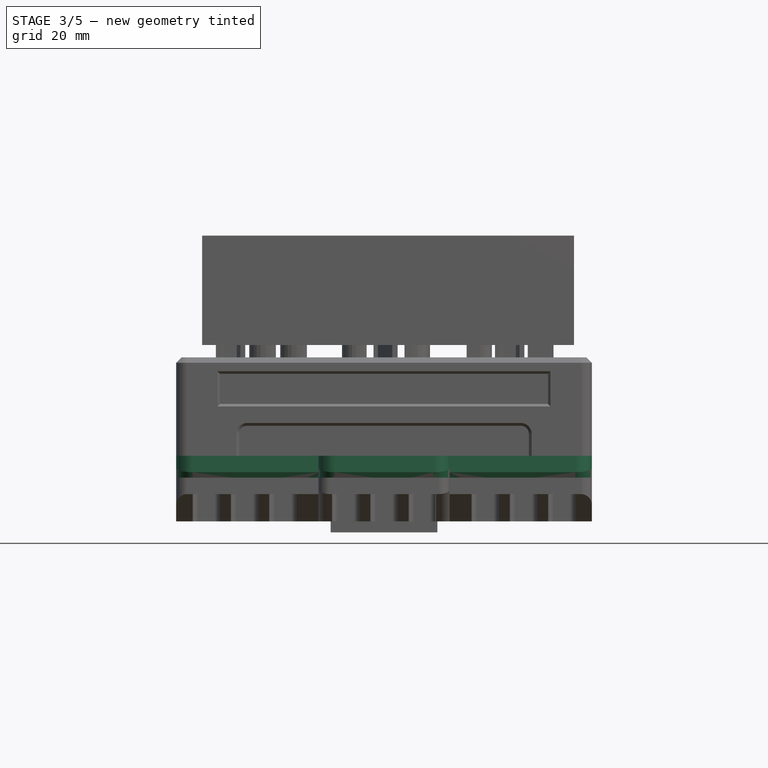
[diagram: stage 3 of 5 — front view after this stage's code; geometry added in this stage tinted green]
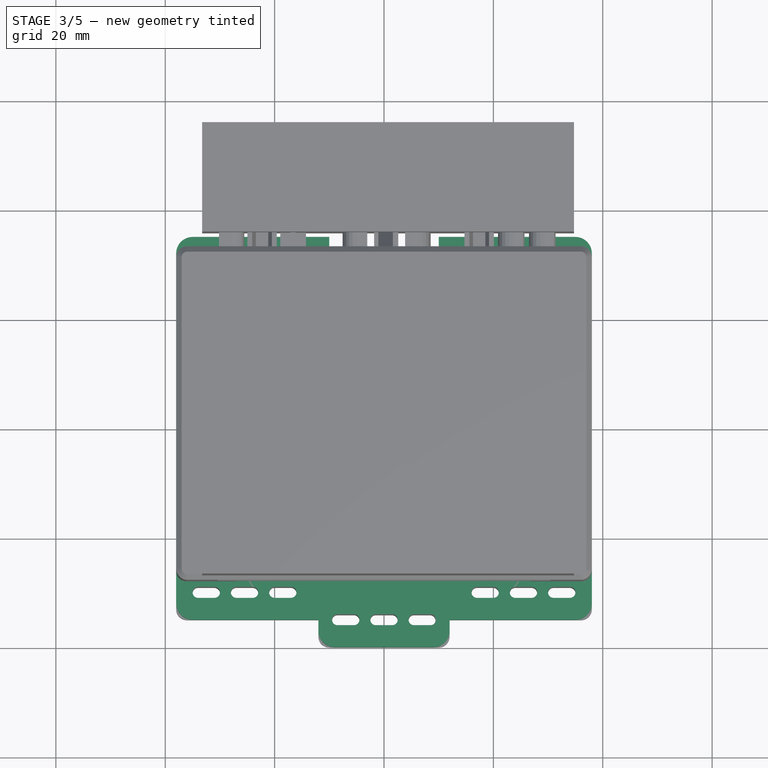
[diagram: stage 3 of 5 — top view after this stage's code; geometry added in this stage tinted green]
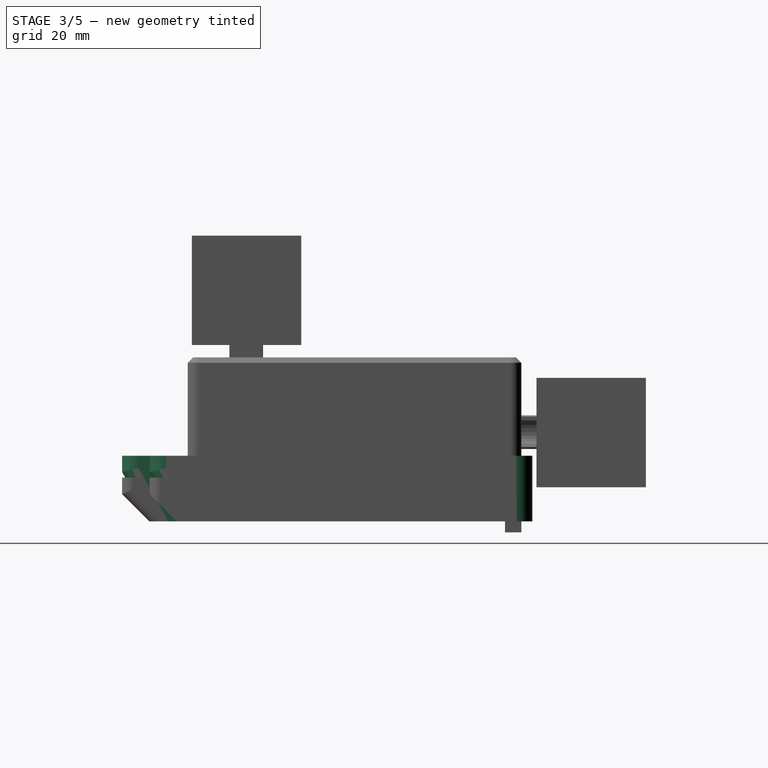
[diagram: stage 3 of 5 — right view after this stage's code; geometry added in this stage tinted green]
FEATURE [Sketcher::SketchObject] Sketch
  FullyConstrained = true
  MapMode = 5
  Support = -> [XY_Plane]
  sketch-geometry (4):
    g0: LineSegment StartX=-38 StartY=35 StartZ=0 EndX=38 EndY=35 EndZ=0
    g1: LineSegment StartX=38 StartY=35 StartZ=0 EndX=38 EndY=-40 EndZ=0
    g2: LineSegment StartX=38 StartY=-40 StartZ=0 EndX=-38 EndY=-40 EndZ=0
    g3: LineSegment StartX=-38 StartY=-40 StartZ=0 EndX=-38 EndY=35 EndZ=0
  constraints (12):
    c: Coincident(g0,g1)
    c: Coincident(g1,g2)
    c: Coincident(g2,g3)
    c: Coincident(g3,g0)
    c: Horizontal(g0)
    c: Horizontal(g2)
    c: Vertical(g1)
    c: Vertical(g3)
    c: DistanceX(g0,g0) = 76
    c: DistanceY(g3,g3) = 75
    c: DistanceX(g0,g-1) = 38
    c: DistanceY(g-1,g0) = 35
FEATURE [PartDesign::Pad] Pad
  Direction = (1,1,1)
  Length = 12
  Length2 = 100
  Profile = -> Sketch
  Type = 0
FEATURE [Part::Feature] Part__Feature  label="COMPOUND"
  shape: bbox 66.04 x 38.74 x 1.6 mm, 58 faces (baked)
FEATURE [App::Part] Open_CASCADE_STEP_translator_6_9_1  label="PCB"
  Group = -> [Part__Feature]
  Origin = -> Origin001
  Placement = pos=(0,0,8) rot=(0,0,1;0rad)
FEATURE [Sketcher::SketchObject] Sketch001
  FullyConstrained = true
  MapMode = 5
  Placement = pos=(0,0,12) rot=(0,0,1;0rad)
  Support = -> [Pad]
  sketch-geometry (4):
    g0: LineSegment StartX=-33.25 StartY=19.5 StartZ=0 EndX=33.25 EndY=19.5 EndZ=0
    g1: LineSegment StartX=33.25 StartY=19.5 StartZ=0 EndX=33.25 EndY=-19.5 EndZ=0
    g2: LineSegment StartX=33.25 StartY=-19.5 StartZ=0 EndX=-33.25 EndY=-19.5 EndZ=0
    g3: LineSegment StartX=-33.25 StartY=-19.5 StartZ=0 EndX=-33.25 EndY=19.5 EndZ=0
  constraints (12):
    c: Coincident(g0,g1)
    c: Coincident(g1,g2)
    c: Coincident(g2,g3)
    c: Coincident(g3,g0)
    c: Horizontal(g0)
    c: Horizontal(g2)
    c: Vertical(g1)
    c: Vertical(g3)
    c: DistanceX(g0,g0) = 66.5
    c: DistanceX(g0,g-1) = 33.25
    c: DistanceY(g1,g1) = 39
    c: DistanceY(g-1,g0) = 19.5
FEATURE [PartDesign::Pocket] Pocket
  BaseFeature = -> Pad
  Length = 1.5
  Length2 = 100
  Profile = -> Sketch001
  Type = 0
FEATURE [PartDesign::Fillet] Fillet
  Base = -> Pocket [Edge17,Edge18,Edge20,Edge22]
  BaseFeature = -> Pocket
  Radius = 3
  SupportTransform = false
FEATURE [Sketcher::SketchObject] Sketch002
  FullyConstrained = true
  MapMode = 5
  Placement = pos=(0,0,12) rot=(0,0,1;0rad)
  Support = -> [Fillet]
  sketch-geometry (12):
    g0: LineSegment StartX=-38 StartY=10 StartZ=0 EndX=-35 EndY=10 EndZ=0
    g1: LineSegment StartX=-35 StartY=10 StartZ=0 EndX=-35 EndY=-10 EndZ=0
    g2: LineSegment StartX=-35 StartY=-10 StartZ=0 EndX=-38 EndY=-10 EndZ=0
    g3: LineSegment StartX=-38 StartY=-10 StartZ=0 EndX=-38 EndY=10 EndZ=0
    g4: LineSegment StartX=35 StartY=10 StartZ=0 EndX=38 EndY=10 EndZ=0
    g5: LineSegment StartX=38 StartY=10 StartZ=0 EndX=38 EndY=-10 EndZ=0
    g6: LineSegment StartX=38 StartY=-10 StartZ=0 EndX=35 EndY=-10 EndZ=0
    g7: LineSegment StartX=35 StartY=-10 StartZ=0 EndX=35 EndY=10 EndZ=0
    g8: LineSegment StartX=-10 StartY=35 StartZ=0 EndX=10 EndY=35 EndZ=0
    g9: LineSegment StartX=10 StartY=35 StartZ=0 EndX=10 EndY=32 EndZ=0
    g10: LineSegment StartX=10 StartY=32 StartZ=0 EndX=-10 EndY=32 EndZ=0
    g11: LineSegment StartX=-10 StartY=32 StartZ=0 EndX=-10 EndY=35 EndZ=0
  constraints (36):
    c: Coincident(g0,g1)
    c: Coincident(g1,g2)
    c: Coincident(g2,g3)
    c: Coincident(g3,g0)
    c: Horizontal(g0)
    c: Horizontal(g2)
    c: Vertical(g1)
    c: Vertical(g3)
    c: Coincident(g4,g5)
    c: Coincident(g5,g6)
    c: Coincident(g6,g7)
    c: Coincident(g7,g4)
    c: Horizontal(g4)
    c: Horizontal(g6)
    c: Vertical(g5)
    c: Vertical(g7)
    c: Horizontal(g0,g4)
    c: Horizontal(g1,g6)
    c: DistanceX(g0,g0) = 3
    c: DistanceX(g4,g4) = 3
    c: DistanceY(g3,g3) = 20
    c: DistanceY(g-1,g0) = 10
    c: DistanceX(g0,g-1) = 35
    c: DistanceX(g-1,g4) = 35
    c: Coincident(g8,g9)
    c: Coincident(g9,g10)
    c: Coincident(g10,g11)
    c: Coincident(g11,g8)
    c: Horizontal(g8)
    c: Horizontal(g10)
    c: Vertical(g9)
    c: Vertical(g11)
    c: DistanceX(g8,g8) = 20
    c: DistanceX(g10,g-1) = 10
    c: DistanceY(g11,g11) = 3
    c: DistanceY(g-1,g10) = 32
FEATURE [PartDesign::Pocket] Pocket001
  BaseFeature = -> Fillet
  Length = 5
  Length2 = 100
  Profile = -> Sketch002
  Type = 1
FEATURE [Sketcher::SketchObject] Sketch003
  FullyConstrained = true
  MapMode = 5
  Placement = pos=(0,0,10.5) rot=(0,0,1;0rad)
  Support = -> [Pocket001]
  sketch-geometry (4):
    g0: LineSegment StartX=-26.21 StartY=19.5 StartZ=0 EndX=26.21 EndY=19.5 EndZ=0
    g1: LineSegment StartX=26.21 StartY=19.5 StartZ=0 EndX=26.21 EndY=-19.5 EndZ=0
    g2: LineSegment StartX=26.21 StartY=-19.5 StartZ=0 EndX=-26.21 EndY=-19.5 EndZ=0
    g3: LineSegment StartX=-26.21 StartY=-19.5 StartZ=0 EndX=-26.21 EndY=19.5 EndZ=0
  constraints (12):
    c: Coincident(g0,g1)
    c: Coincident(g1,g2)
    c: Coincident(g2,g3)
    c: Coincident(g3,g0)
    c: Horizontal(g0)
    c: Horizontal(g2)
    c: Vertical(g1)
    c: Vertical(g3)
    c: DistanceY(g1,g1) = 39
    c: DistanceY(g-1,g0) = 19.5
    c: DistanceX(g0,g0) = 52.42
    c: DistanceX(g0,g-1) = 26.21
FEATURE [PartDesign::Pocket] Pocket002
  BaseFeature = -> Pocket001
  Length = 5
  Length2 = 100
  Profile = -> Sketch003
  Type = 0
FEATURE [Sketcher::SketchObject] Sketch004
  FullyConstrained = true
  MapMode = 5
  Placement = pos=(0,0,0) rot=(1,0,0;3.14159rad)
  Support = -> [Pocket002]
  sketch-geometry (4):
    g0: Circle CenterX=-29.21 CenterY=9.2075 CenterZ=0 NormalX=0 NormalY=0 NormalZ=1 AngleXU=0 Radius=1.7
    g1: Circle CenterX=-29.21 CenterY=-9.2075 CenterZ=0 NormalX=0 NormalY=0 NormalZ=1 AngleXU=0 Radius=1.7
    g2: Circle CenterX=29.21 CenterY=9.2075 CenterZ=0 NormalX=0 NormalY=0 NormalZ=1 AngleXU=0 Radius=1.7
    g3: Circle CenterX=29.21 CenterY=-9.2075 CenterZ=0 NormalX=0 NormalY=0 NormalZ=1 AngleXU=0 Radius=1.7
  constraints (12):
    c: Horizontal(g0,g2)
    c: Horizontal(g1,g3)
    c: Vertical(g1,g0)
    c: Vertical(g3,g2)
    c: DistanceX(g0,g2) = 58.42
    c: DistanceX(g0,g-1) = 29.21
    c: DistanceY(g1,g0) = 18.415
    c: DistanceY(g1,g-1) = 9.2075
    c: Radius(g0) = 1.7
    c: Radius(g1) = 1.7
    c: Radius(g2) = 1.7
    c: Radius(g3) = 1.7
FEATURE [PartDesign::Pocket] Pocket003
  BaseFeature = -> Pocket002
  Length = 5
  Length2 = 100
  Profile = -> Sketch004
  Type = 1
FEATURE [Sketcher::SketchObject] Sketch005
  FullyConstrained = true
  MapMode = 5
  Placement = pos=(0,0,0) rot=(1,0,0;3.14159rad)
  Support = -> [Pocket003]
  sketch-geometry (4):
    g0: Circle CenterX=-29.21 CenterY=9.2075 CenterZ=0 NormalX=0 NormalY=0 NormalZ=1 AngleXU=0 Radius=1.95
    g1: Circle CenterX=-29.21 CenterY=-9.2075 CenterZ=0 NormalX=0 NormalY=0 NormalZ=1 AngleXU=0 Radius=1.95
    g2: Circle CenterX=29.21 CenterY=9.2075 CenterZ=0 NormalX=0 NormalY=0 NormalZ=1 AngleXU=0 Radius=1.95
    g3: Circle CenterX=29.21 CenterY=-9.2075 CenterZ=0 NormalX=0 NormalY=0 NormalZ=1 AngleXU=0 Radius=1.95
  constraints (12):
    c: Vertical(g0,g1)
    c: Vertical(g2,g3)
    c: Horizontal(g2,g0)
    c: Horizontal(g1,g3)
    c: DistanceX(g0,g2) = 58.42
    c: DistanceX(g0,g-1) = 29.21
    c: DistanceY(g1,g0) = 18.415
    c: DistanceY(g-1,g0) = 9.2075
    c: Radius(g0) = 1.95
    c: Radius(g1) = 1.95
    c: Radius(g2) = 1.95
    c: Radius(g3) = 1.95
FEATURE [PartDesign::Pocket] Pocket004
  BaseFeature = -> Pocket003
  Length = 7
  Length2 = 100
  Profile = -> Sketch005
  Type = 0
FEATURE [Sketcher::SketchObject] Sketch006
  FullyConstrained = true
  MapMode = 5
  Placement = pos=(0,0,0) rot=(1,0,0;3.14159rad)
  Support = -> [Pocket004]
  sketch-geometry (12):
    g0: LineSegment StartX=-35 StartY=10 StartZ=0 EndX=-33 EndY=10 EndZ=0
    g1: LineSegment StartX=-33 StartY=10 StartZ=0 EndX=-33 EndY=-10 EndZ=0
    g2: LineSegment StartX=-33 StartY=-10 StartZ=0 EndX=-35 EndY=-10 EndZ=0
    g3: LineSegment StartX=-35 StartY=-10 StartZ=0 EndX=-35 EndY=10 EndZ=0
    g4: LineSegment StartX=33 StartY=10 StartZ=0 EndX=35 EndY=10 EndZ=0
    g5: LineSegment StartX=35 StartY=10 StartZ=0 EndX=35 EndY=-10 EndZ=0
    g6: LineSegment StartX=35 StartY=-10 StartZ=0 EndX=33 EndY=-10 EndZ=0
    g7: LineSegment StartX=33 StartY=-10 StartZ=0 EndX=33 EndY=10 EndZ=0
    g8: LineSegment StartX=-10 StartY=-30 StartZ=0 EndX=10 EndY=-30 EndZ=0
    g9: LineSegment StartX=10 StartY=-30 StartZ=0 EndX=10 EndY=-32 EndZ=0
    g10: LineSegment StartX=10 StartY=-32 StartZ=0 EndX=-10 EndY=-32 EndZ=0
    g11: LineSegment StartX=-10 StartY=-32 StartZ=0 EndX=-10 EndY=-30 EndZ=0
  constraints (36):
    c: Coincident(g0,g1)
    c: Coincident(g1,g2)
    c: Coincident(g2,g3)
    c: Coincident(g3,g0)
    c: Horizontal(g0)
    c: Horizontal(g2)
    c: Vertical(g1)
    c: Vertical(g3)
    c: Coincident(g4,g5)
    c: Coincident(g5,g6)
    c: Coincident(g6,g7)
    c: Coincident(g7,g4)
    c: Horizontal(g4)
    c: Horizontal(g6)
    c: Vertical(g5)
    c: Vertical(g7)
    c: Coincident(g8,g9)
    c: Coincident(g9,g10)
    c: Coincident(g10,g11)
    c: Coincident(g11,g8)
    c: Horizontal(g8)
    c: Horizontal(g10)
    c: Vertical(g9)
    c: Vertical(g11)
    c: DistanceX(g8,g8) = 20
    c: DistanceX(g0,g0) = 2
    c: DistanceX(g4,g4) = 2
    c: DistanceY(g1,g1) = 20
    c: DistanceY(g7,g7) = 20
    c: DistanceY(g11,g11) = 2
    c: Horizontal(g0,g4)
    c: DistanceY(g-1,g0) = 10
    c: DistanceX(g8,g-1) = 10
    c: DistanceX(g0,g-1) = 33
    c: DistanceX(g-1,g4) = 33
    c: DistanceY(g8,g-1) = 30
FEATURE [PartDesign::Pocket] Pocket005
  BaseFeature = -> Pocket004
  Length = 5
  Length2 = 100
  Profile = -> Sketch006
  Type = 0
FEATURE [Sketcher::SketchObject] Sketch007
  FullyConstrained = true
  MapMode = 5
  Placement = pos=(0,0,12) rot=(0,0,1;0rad)
  Support = -> [Pocket005]
  sketch-geometry (12):
    g0: LineSegment StartX=-35 StartY=10 StartZ=0 EndX=-33 EndY=10 EndZ=0
    g1: LineSegment StartX=-33 StartY=10 StartZ=0 EndX=-33 EndY=-10 EndZ=0
    g2: LineSegment StartX=-33 StartY=-10 StartZ=0 EndX=-35 EndY=-10 EndZ=0
    g3: LineSegment StartX=-35 StartY=-10 StartZ=0 EndX=-35 EndY=10 EndZ=0
    g4: LineSegment StartX=33 StartY=10 StartZ=0 EndX=35 EndY=10 EndZ=0
    g5: LineSegment StartX=35 StartY=10 StartZ=0 EndX=35 EndY=-10 EndZ=0
    g6: LineSegment StartX=35 StartY=-10 StartZ=0 EndX=33 EndY=-10 EndZ=0
    g7: LineSegment StartX=33 StartY=-10 StartZ=0 EndX=33 EndY=10 EndZ=0
    g8: LineSegment StartX=-10 StartY=32 StartZ=0 EndX=10 EndY=32 EndZ=0
    g9: LineSegment StartX=10 StartY=32 StartZ=0 EndX=10 EndY=30 EndZ=0
    g10: LineSegment StartX=10 StartY=30 StartZ=0 EndX=-10 EndY=30 EndZ=0
    g11: LineSegment StartX=-10 StartY=30 StartZ=0 EndX=-10 EndY=32 EndZ=0
  constraints (36):
    c: Coincident(g0,g1)
    c: Coincident(g1,g2)
    c: Coincident(g2,g3)
    c: Coincident(g3,g0)
    c: Horizontal(g0)
    c: Horizontal(g2)
    c: Vertical(g1)
    c: Vertical(g3)
    c: Coincident(g4,g5)
    c: Coincident(g5,g6)
    c: Coincident(g6,g7)
    c: Coincident(g7,g4)
    c: Horizontal(g4)
    c: Horizontal(g6)
    c: Vertical(g5)
    c: Vertical(g7)
    c: Coincident(g8,g9)
    c: Coincident(g9,g10)
    c: Coincident(g10,g11)
    c: Coincident(g11,g8)
    c: Horizontal(g8)
    c: Horizontal(g10)
    c: Vertical(g9)
    c: Vertical(g11)
    c: Horizontal(g0,g4)
    c: Horizontal(g1,g6)
    c: DistanceY(g1,g1) = 20
    c: DistanceY(g-1,g0) = 10
    c: DistanceX(g0,g0) = 2
    c: DistanceX(g4,g4) = 2
    c: DistanceX(g0,g-1) = 33
    c: DistanceX(g-1,g4) = 33
    c: DistanceX(g8,g8) = 20
    c: DistanceX(g10,g-1) = 10
    c: DistanceY(g11,g11) = 2
    c: DistanceY(g-1,g9) = 30
FEATURE [PartDesign::Pocket] Pocket006
  BaseFeature = -> Pocket005
  Length = 1.5
  Length2 = 100
  Profile = -> Sketch007
  Type = 0
FEATURE [Part::Feature] Body002002  label="bottom001"
  shape: bbox 76 x 70 x 16 mm, 289 faces (baked)
FEATURE [Sketcher::SketchObject] Sketch019
  FullyConstrained = true
  MapMode = 5
  Placement = pos=(0,0,12) rot=(0,0,1;0rad)
  Support = -> [Pocket006]
  sketch-geometry (8):
    g0: LineSegment StartX=-38 StartY=-40 StartZ=0 EndX=-12 EndY=-40 EndZ=0
    g1: LineSegment StartX=-12 StartY=-40 StartZ=0 EndX=-12 EndY=-35 EndZ=0
    g2: LineSegment StartX=-12 StartY=-35 StartZ=0 EndX=-38 EndY=-35 EndZ=0
    g3: LineSegment StartX=-38 StartY=-35 StartZ=0 EndX=-38 EndY=-40 EndZ=0
    g4: LineSegment StartX=38 StartY=-40 StartZ=0 EndX=12 EndY=-40 EndZ=0
    g5: LineSegment StartX=12 StartY=-40 StartZ=0 EndX=12 EndY=-35 EndZ=0
    g6: LineSegment StartX=12 StartY=-35 StartZ=0 EndX=38 EndY=-35 EndZ=0
    g7: LineSegment StartX=38 StartY=-35 StartZ=0 EndX=38 EndY=-40 EndZ=0
  constraints (24):
    c: Coincident(g0,g1)
    c: Coincident(g1,g2)
    c: Coincident(g2,g3)
    c: Coincident(g3,g0)
    c: Horizontal(g0)
    c: Horizontal(g2)
    c: Vertical(g1)
    c: Vertical(g3)
    c: Coincident(g4,g5)
    c: Coincident(g5,g6)
    c: Coincident(g6,g7)
    c: Coincident(g7,g4)
    c: Horizontal(g4)
    c: Horizontal(g6)
    c: Vertical(g5)
    c: Vertical(g7)
    c: DistanceX(g2,g2) = 26
    c: DistanceX(g6,g6) = 26
    c: Horizontal(g1,g5)
    c: Horizontal(g0,g4)
    c: DistanceY(g3,g3) = 5
    c: DistanceY(g1,g-1) = 35
    c: DistanceX(g1,g-1) = 12
    c: DistanceX(g-1,g5) = 12
FEATURE [PartDesign::Pocket] Pocket015
  BaseFeature = -> Pocket006
  Length = 5
  Length2 = 100
  Profile = -> Sketch019
  Type = 1
FEATURE [PartDesign::Chamfer] Chamfer
  Angle = 45
  Base = -> Pocket015 [Edge75,Edge77,Edge79]
  BaseFeature = -> Pocket015
  ChamferType = 1
  FlipDirection = false
  Size = 4.99
  Size2 = 9
  SupportTransform = false
FEATURE [PartDesign::Fillet] Fillet007009
  Base = -> Chamfer [Edge33,Edge35,Edge63,Edge100,Edge65,Edge70,Edge58,Edge51,Edge45,Edge46]
  BaseFeature = -> Chamfer
  Radius = 3
  SupportTransform = false
FEATURE [Sketcher::SketchObject] Sketch020
  FullyConstrained = true
  MapMode = 5
  Placement = pos=(0,0,12) rot=(0,0,1;0rad)
  Support = -> [Fillet007009]
  sketch-geometry (36):
    g0: ArcOfCircle CenterX=-34 CenterY=-30 CenterZ=0 NormalX=0 NormalY=0 NormalZ=1 AngleXU=0 Radius=1 StartAngle=1.5708 EndAngle=4.71239
    g1: ArcOfCircle CenterX=-31 CenterY=-30 CenterZ=0 NormalX=0 NormalY=0 NormalZ=1 AngleXU=0 Radius=1 StartAngle=4.71239 EndAngle=7.85398
    g2: LineSegment StartX=-34 StartY=-31 StartZ=0 EndX=-31 EndY=-31 EndZ=0
    g3: LineSegment StartX=-34 StartY=-29 StartZ=0 EndX=-31 EndY=-29 EndZ=0
    g4: ArcOfCircle CenterX=-27 CenterY=-30 CenterZ=0 NormalX=0 NormalY=0 NormalZ=1 AngleXU=0 Radius=1 StartAngle=1.5708 EndAngle=4.71239
    g5: ArcOfCircle CenterX=-24 CenterY=-30 CenterZ=0 NormalX=0 NormalY=0 NormalZ=1 AngleXU=0 Radius=1 StartAngle=4.71239 EndAngle=7.85398
    g6: LineSegment StartX=-27 StartY=-31 StartZ=0 EndX=-24 EndY=-31 EndZ=0
    g7: LineSegment StartX=-27 StartY=-29 StartZ=0 EndX=-24 EndY=-29 EndZ=0
    g8: ArcOfCircle CenterX=-20 CenterY=-30 CenterZ=0 NormalX=0 NormalY=0 NormalZ=1 AngleXU=0 Radius=1 StartAngle=1.5708 EndAngle=4.71239
    g9: ArcOfCircle CenterX=-17 CenterY=-30 CenterZ=0 NormalX=0 NormalY=0 NormalZ=1 AngleXU=0 Radius=1 StartAngle=4.71239 EndAngle=7.85398
    g10: LineSegment StartX=-20 StartY=-31 StartZ=0 EndX=-17 EndY=-31 EndZ=0
    g11: LineSegment StartX=-20 StartY=-29 StartZ=0 EndX=-17 EndY=-29 EndZ=0
    g12: ArcOfCircle CenterX=-8.5 CenterY=-35 CenterZ=0 NormalX=0 NormalY=0 NormalZ=1 AngleXU=0 Radius=1 StartAngle=1.5708 EndAngle=4.71239
    g13: ArcOfCircle CenterX=-5.5 CenterY=-35 CenterZ=0 NormalX=0 NormalY=0 NormalZ=1 AngleXU=0 Radius=1 StartAngle=4.71239 EndAngle=7.85398
    g14: LineSegment StartX=-8.5 StartY=-36 StartZ=0 EndX=-5.5 EndY=-36 EndZ=0
    g15: LineSegment StartX=-8.5 StartY=-34 StartZ=0 EndX=-5.5 EndY=-34 EndZ=0
    g16: ArcOfCircle CenterX=-1.5 CenterY=-35 CenterZ=0 NormalX=0 NormalY=0 NormalZ=1 AngleXU=0 Radius=1 StartAngle=1.5708 EndAngle=4.71239
    g17: ArcOfCircle CenterX=1.5 CenterY=-35 CenterZ=0 NormalX=0 NormalY=0 NormalZ=1 AngleXU=0 Radius=1 StartAngle=4.71239 EndAngle=7.85398
    g18: LineSegment StartX=-1.5 StartY=-36 StartZ=0 EndX=1.5 EndY=-36 EndZ=0
    g19: LineSegment StartX=-1.5 StartY=-34 StartZ=0 EndX=1.5 EndY=-34 EndZ=0
    g20: ArcOfCircle CenterX=5.5 CenterY=-35 CenterZ=0 NormalX=0 NormalY=0 NormalZ=1 AngleXU=0 Radius=1 StartAngle=1.5708 EndAngle=4.71239
    g21: ArcOfCircle CenterX=8.5 CenterY=-35 CenterZ=0 NormalX=0 NormalY=0 NormalZ=1 AngleXU=0 Radius=1 StartAngle=4.71239 EndAngle=7.85398
    g22: LineSegment StartX=5.5 StartY=-36 StartZ=0 EndX=8.5 EndY=-36 EndZ=0
    g23: LineSegment StartX=5.5 StartY=-34 StartZ=0 EndX=8.5 EndY=-34 EndZ=0
    g24: ArcOfCircle CenterX=17 CenterY=-30 CenterZ=0 NormalX=0 NormalY=0 NormalZ=1 AngleXU=0 Radius=1 StartAngle=1.5708 EndAngle=4.71239
    g25: ArcOfCircle CenterX=20 CenterY=-30 CenterZ=0 NormalX=0 NormalY=0 NormalZ=1 AngleXU=0 Radius=1 StartAngle=4.71239 EndAngle=7.85398
    g26: LineSegment StartX=17 StartY=-31 StartZ=0 EndX=20 EndY=-31 EndZ=0
    g27: LineSegment StartX=17 StartY=-29 StartZ=0 EndX=20 EndY=-29 EndZ=0
    g28: ArcOfCircle CenterX=24 CenterY=-30 CenterZ=0 NormalX=0 NormalY=0 NormalZ=1 AngleXU=0 Radius=1 StartAngle=1.5708 EndAngle=4.71239
    g29: ArcOfCircle CenterX=27 CenterY=-30 CenterZ=0 NormalX=0 NormalY=0 NormalZ=1 AngleXU=0 Radius=1 StartAngle=4.71239 EndAngle=7.85398
    g30: LineSegment StartX=24 StartY=-31 StartZ=0 EndX=27 EndY=-31 EndZ=0
    g31: LineSegment StartX=24 StartY=-29 StartZ=0 EndX=27 EndY=-29 EndZ=0
    g32: ArcOfCircle CenterX=31 CenterY=-30 CenterZ=0 NormalX=0 NormalY=0 NormalZ=1 AngleXU=0 Radius=1 StartAngle=1.5708 EndAngle=4.71239
    g33: ArcOfCircle CenterX=34 CenterY=-30 CenterZ=0 NormalX=0 NormalY=0 NormalZ=1 AngleXU=0 Radius=1 StartAngle=4.71239 EndAngle=7.85398
    g34: LineSegment StartX=31 StartY=-31 StartZ=0 EndX=34 EndY=-31 EndZ=0
    g35: LineSegment StartX=31 StartY=-29 StartZ=0 EndX=34 EndY=-29 EndZ=0
  constraints (90):
    c: Tangent(g0,g3) = 1.5708
    c: Tangent(g0,g2) = -1.5708
    c: Tangent(g2,g1) = -1.5708
    c: Tangent(g3,g1) = 1.5708
    c: Horizontal(g2)
    c: Equal(g0,g1)
    c: Tangent(g4,g7) = 1.5708
    c: Tangent(g4,g6) = -1.5708
    c: Tangent(g6,g5) = -1.5708
    c: Tangent(g7,g5) = 1.5708
    c: Horizontal(g6)
    c: Equal(g4,g5)
    c: Tangent(g8,g11) = 1.5708
    c: Tangent(g8,g10) = -1.5708
    c: Tangent(g10,g9) = -1.5708
    c: Tangent(g11,g9) = 1.5708
    c: Horizontal(g10)
    c: Equal(g8,g9)
    c: Tangent(g12,g15) = 1.5708
    c: Tangent(g12,g14) = -1.5708
    c: Tangent(g14,g13) = -1.5708
    c: Tangent(g15,g13) = 1.5708
    c: Horizontal(g14)
    c: Equal(g12,g13)
    c: Tangent(g16,g19) = 1.5708
    c: Tangent(g16,g18) = -1.5708
    c: Tangent(g18,g17) = -1.5708
    c: Tangent(g19,g17) = 1.5708
    c: Horizontal(g18)
    c: Equal(g16,g17)
    c: Tangent(g20,g23) = 1.5708
    c: Tangent(g20,g22) = -1.5708
    c: Tangent(g22,g21) = -1.5708
    c: Tangent(g23,g21) = 1.5708
    c: Horizontal(g22)
    c: Equal(g20,g21)
    c: Tangent(g24,g27) = 1.5708
    c: Tangent(g24,g26) = -1.5708
    c: Tangent(g26,g25) = -1.5708
    c: Tangent(g27,g25) = 1.5708
    c: Horizontal(g26)
    c: Equal(g24,g25)
    c: Tangent(g28,g31) = 1.5708
    c: Tangent(g28,g30) = -1.5708
    c: Tangent(g30,g29) = -1.5708
    c: Tangent(g31,g29) = 1.5708
    c: Horizontal(g30)
    c: Equal(g28,g29)
    c: Tangent(g32,g35) = 1.5708
    c: Tangent(g32,g34) = -1.5708
    c: Tangent(g34,g33) = -1.5708
    c: Tangent(g35,g33) = 1.5708
    c: Horizontal(g34)
    c: Equal(g32,g33)
    c: Horizontal(g1,g5)
    c: Horizontal(g5,g9)
    c: Horizontal(g9,g25)
    c: Horizontal(g25,g29)
    c: Horizontal(g29,g33)
    c: Horizontal(g1,g5)
    c: Horizontal(g5,g9)
    c: Horizontal(g9,g25)
    c: Horizontal(g25,g29)
    c: Horizontal(g29,g33)
    c: Horizontal(g13,g17)
    c: Horizontal(g17,g21)
    c: Horizontal(g13,g17)
    c: Horizontal(g17,g21)
    c: DistanceY(g0,g0) = 2
    c: DistanceY(g12,g12) = 2
    c: DistanceX(g0,g1) = 3
    c: DistanceX(g4,g5) = 3
    c: DistanceX(g8,g9) = 3
    c: DistanceX(g12,g13) = 3
    c: DistanceX(g16,g17) = 3
    c: DistanceX(g20,g21) = 3
    c: DistanceX(g24,g25) = 3
    c: DistanceX(g28,g29) = 3
    c: DistanceX(g32,g33) = 3
    c: DistanceX(g1,g4) = 4
    c: DistanceX(g5,g8) = 4
    c: DistanceX(g25,g28) = 4
    c: DistanceX(g29,g32) = 4
    c: DistanceX(g13,g16) = 4
    c: DistanceX(g17,g20) = 4
    c: DistanceX(g16,g-1) = 1.5
    c: DistanceY(g16,g-1) = 35
    c: DistanceY(g9,g-1) = 30
    c: DistanceX(g9,g-1) = 17
    c: DistanceX(g-1,g24) = 17
FEATURE [PartDesign::Pocket] Pocket016
  BaseFeature = -> Fillet007009
  Length = 5
  Length2 = 100
  Profile = -> Sketch020
  Type = 1
FEATURE [Sketcher::SketchObject] Sketch021
  FullyConstrained = true
  MapMode = 5
  Placement = pos=(0,0,0) rot=(1,0,0;3.14159rad)
  Support = -> [Pocket016]
  sketch-geometry (36):
    g0: LineSegment StartX=-35 StartY=35 StartZ=0 EndX=-30 EndY=35 EndZ=0
    g1: LineSegment StartX=-30 StartY=35 StartZ=0 EndX=-30 EndY=30 EndZ=0
    g2: LineSegment StartX=-30 StartY=30 StartZ=0 EndX=-35 EndY=30 EndZ=0
    g3: LineSegment StartX=-35 StartY=30 StartZ=0 EndX=-35 EndY=35 EndZ=0
    g4: LineSegment StartX=-28 StartY=35 StartZ=0 EndX=-23 EndY=35 EndZ=0
    g5: LineSegment StartX=-23 StartY=35 StartZ=0 EndX=-23 EndY=30 EndZ=0
    g6: LineSegment StartX=-23 StartY=30 StartZ=0 EndX=-28 EndY=30 EndZ=0
    g7: LineSegment StartX=-28 StartY=30 StartZ=0 EndX=-28 EndY=35 EndZ=0
    g8: LineSegment StartX=-21 StartY=35 StartZ=0 EndX=-16 EndY=35 EndZ=0
    g9: LineSegment StartX=-16 StartY=35 StartZ=0 EndX=-16 EndY=30 EndZ=0
    g10: LineSegment StartX=-16 StartY=30 StartZ=0 EndX=-21 EndY=30 EndZ=0
    g11: LineSegment StartX=-21 StartY=30 StartZ=0 EndX=-21 EndY=35 EndZ=0
    g12: LineSegment StartX=-9.5 StartY=40 StartZ=0 EndX=-4.5 EndY=40 EndZ=0
    g13: LineSegment StartX=-4.5 StartY=40 StartZ=0 EndX=-4.5 EndY=35 EndZ=0
    g14: LineSegment StartX=-4.5 StartY=35 StartZ=0 EndX=-9.5 EndY=35 EndZ=0
    g15: LineSegment StartX=-9.5 StartY=35 StartZ=0 EndX=-9.5 EndY=40 EndZ=0
    g16: LineSegment StartX=-2.5 StartY=40 StartZ=0 EndX=2.5 EndY=40 EndZ=0
    g17: LineSegment StartX=2.5 StartY=40 StartZ=0 EndX=2.5 EndY=35 EndZ=0
    g18: LineSegment StartX=2.5 StartY=35 StartZ=0 EndX=-2.5 EndY=35 EndZ=0
    g19: LineSegment StartX=-2.5 StartY=35 StartZ=0 EndX=-2.5 EndY=40 EndZ=0
    g20: LineSegment StartX=4.5 StartY=40 StartZ=0 EndX=9.5 EndY=40 EndZ=0
    g21: LineSegment StartX=9.5 StartY=40 StartZ=0 EndX=9.5 EndY=35 EndZ=0
    g22: LineSegment StartX=9.5 StartY=35 StartZ=0 EndX=4.5 EndY=35 EndZ=0
    g23: LineSegment StartX=4.5 StartY=35 StartZ=0 EndX=4.5 EndY=40 EndZ=0
    g24: LineSegment StartX=16 StartY=35 StartZ=0 EndX=21 EndY=35 EndZ=0
    g25: LineSegment StartX=21 StartY=35 StartZ=0 EndX=21 EndY=30 EndZ=0
    g26: LineSegment StartX=21 StartY=30 StartZ=0 EndX=16 EndY=30 EndZ=0
    g27: LineSegment StartX=16 StartY=30 StartZ=0 EndX=16 EndY=35 EndZ=0
    g28: LineSegment StartX=23 StartY=35 StartZ=0 EndX=28 EndY=35 EndZ=0
    g29: LineSegment StartX=28 StartY=35 StartZ=0 EndX=28 EndY=30 EndZ=0
    g30: LineSegment StartX=28 StartY=30 StartZ=0 EndX=23 EndY=30 EndZ=0
    g31: LineSegment StartX=23 StartY=30 StartZ=0 EndX=23 EndY=35 EndZ=0
    g32: LineSegment StartX=30 StartY=35 StartZ=0 EndX=35 EndY=35 EndZ=0
    g33: LineSegment StartX=35 StartY=35 StartZ=0 EndX=35 EndY=30 EndZ=0
    g34: LineSegment StartX=35 StartY=30 StartZ=0 EndX=30 EndY=30 EndZ=0
    g35: LineSegment StartX=30 StartY=30 StartZ=0 EndX=30 EndY=35 EndZ=0
  constraints (108):
    c: Coincident(g0,g1)
    c: Coincident(g1,g2)
    c: Coincident(g2,g3)
    c: Coincident(g3,g0)
    c: Horizontal(g0)
    c: Horizontal(g2)
    c: Vertical(g1)
    c: Vertical(g3)
    c: Coincident(g4,g5)
    c: Coincident(g5,g6)
    c: Coincident(g6,g7)
    c: Coincident(g7,g4)
    c: Horizontal(g4)
    c: Horizontal(g6)
    c: Vertical(g5)
    c: Vertical(g7)
    c: Coincident(g8,g9)
    c: Coincident(g9,g10)
    c: Coincident(g10,g11)
    c: Coincident(g11,g8)
    c: Horizontal(g8)
    c: Horizontal(g10)
    c: Vertical(g9)
    c: Vertical(g11)
    c: Coincident(g12,g13)
    c: Coincident(g13,g14)
    c: Coincident(g14,g15)
    c: Coincident(g15,g12)
    c: Horizontal(g12)
    c: Horizontal(g14)
    c: Vertical(g13)
    c: Vertical(g15)
    c: Coincident(g16,g17)
    c: Coincident(g17,g18)
    c: Coincident(g18,g19)
    c: Coincident(g19,g16)
    c: Horizontal(g16)
    c: Horizontal(g18)
    c: Vertical(g17)
    c: Vertical(g19)
    c: Coincident(g20,g21)
    c: Coincident(g21,g22)
    c: Coincident(g22,g23)
    c: Coincident(g23,g20)
    c: Horizontal(g20)
    c: Horizontal(g22)
    c: Vertical(g21)
    c: Vertical(g23)
    c: Coincident(g24,g25)
    c: Coincident(g25,g26)
    c: Coincident(g26,g27)
    c: Coincident(g27,g24)
    c: Horizontal(g24)
    c: Horizontal(g26)
    c: Vertical(g25)
    c: Vertical(g27)
    c: Coincident(g28,g29)
    c: Coincident(g29,g30)
    c: Coincident(g30,g31)
    c: Coincident(g31,g28)
    c: Horizontal(g28)
    c: Horizontal(g30)
    c: Vertical(g29)
    c: Vertical(g31)
    c: Coincident(g32,g33)
    c: Coincident(g33,g34)
    c: Coincident(g34,g35)
    c: Coincident(g35,g32)
    c: Horizontal(g32)
    c: Horizontal(g34)
    c: Vertical(g33)
    c: Vertical(g35)
    c: Horizontal(g1,g5)
    c: Horizontal(g5,g9)
    c: Horizontal(g9,g25)
    c: Horizontal(g25,g29)
    c: Horizontal(g29,g33)
    c: Horizontal(g32,g28)
    c: Horizontal(g28,g24)
    c: Horizontal(g24,g0)
    c: Horizontal(g0,g4)
    c: Horizontal(g4,g8)
    c: Horizontal(g13,g17)
    c: Horizontal(g17,g21)
    c: Horizontal(g12,g16)
    c: Horizontal(g16,g20)
    c: DistanceX(g2,g2) = 5
    c: DistanceX(g1,g6) = 2
    c: DistanceX(g6,g6) = 5
    c: DistanceX(g5,g10) = 2
    c: DistanceX(g10,g10) = 5
    c: DistanceX(g9,g-1) = 16
    c: DistanceX(g-1,g26) = 16
    c: DistanceX(g26,g26) = 5
    c: DistanceX(g25,g30) = 2
    c: DistanceX(g30,g30) = 5
    c: DistanceX(g29,g34) = 2
    c: DistanceX(g34,g34) = 5
    c: DistanceY(g-1,g26) = 30
    c: DistanceY(g3,g3) = 5
    c: DistanceY(g15,g15) = 5
    c: DistanceY(g-1,g13) = 35
    c: DistanceX(g14,g14) = 5
    c: DistanceX(g13,g18) = 2
    c: DistanceX(g18,g18) = 5
    c: DistanceX(g17,g22) = 2
    c: DistanceX(g22,g22) = 5
    c: DistanceX(g18,g-1) = 2.5
FEATURE [PartDesign::Pocket] Pocket017
  BaseFeature = -> Pocket016
  Length = 7
  Length2 = 100
  Profile = -> Sketch021
  Refine = true
  Type = 0
FEATURE [PartDesign::Chamfer] Chamfer013004014004
  Angle = 45
  Base = -> Pocket017 [Edge104,Edge101,Edge98,Edge170,Edge150,Edge172,Edge167,Edge201,Edge211,Edge214,Edge217]
  BaseFeature = -> Pocket017
  ChamferType = 0
  FlipDirection = false
  Size = 0.4
  Size2 = 1
  SupportTransform = false
FEATURE [Sketcher::SketchObject] Sketch031
  FullyConstrained = true
  MapMode = 5
  Placement = pos=(0,0,23.5) rot=(0,0,1;0rad)
  Support = -> [Pad008]
  sketch-geometry (13):
    g0: Circle CenterX=0 CenterY=0 CenterZ=0 NormalX=0 NormalY=0 NormalZ=1 AngleXU=0 Radius=12
    g1: LineSegment StartX=0 StartY=0 StartZ=0 EndX=0 EndY=12 EndZ=0
    g2: LineSegment StartX=0 StartY=0 StartZ=0 EndX=10.3923 EndY=6 EndZ=0
    g3: LineSegment StartX=0 StartY=0 StartZ=0 EndX=10.3923 EndY=-6 EndZ=0
    g4: LineSegment StartX=0 StartY=0 StartZ=0 EndX=3.1e-15 EndY=-12 EndZ=0
    g5: LineSegment StartX=0 StartY=0 StartZ=0 EndX=-10.3923 EndY=-6 EndZ=0
    g6: LineSegment StartX=0 StartY=0 StartZ=0 EndX=-10.3923 EndY=6 EndZ=0
    g7: Circle CenterX=0 CenterY=12 CenterZ=0 NormalX=0 NormalY=0 NormalZ=1 AngleXU=0 Radius=4.5
    g8: Circle CenterX=10.3923 CenterY=6 CenterZ=0 NormalX=0 NormalY=0 NormalZ=1 AngleXU=0 Radius=4.5
    g9: Circle CenterX=10.3923 CenterY=-6 CenterZ=0 NormalX=0 NormalY=0 NormalZ=1 AngleXU=0 Radius=4.5
    g10: Circle CenterX=3.1e-15 CenterY=-12 CenterZ=0 NormalX=0 NormalY=0 NormalZ=1 AngleXU=0 Radius=4.5
    g11: Circle CenterX=-10.3923 CenterY=-6 CenterZ=0 NormalX=0 NormalY=0 NormalZ=1 AngleXU=0 Radius=4.5
    g12: Circle CenterX=-10.3923 CenterY=6 CenterZ=0 NormalX=0 NormalY=0 NormalZ=1 AngleXU=0 Radius=4.5
  constraints (32):
    c: Coincident(g0,g-1)
    c: Radius(g0) = 12
    c: Coincident(g1,g-1)
    c: PointOnObject(g1,g0)
    c: Vertical(g1)
    c: Coincident(g2,g-1)
    c: PointOnObject(g2,g0)
    c: Coincident(g3,g-1)
    c: PointOnObject(g3,g0)
    c: Coincident(g4,g-1)
    c: PointOnObject(g4,g0)
    c: Angle(g2,g1) = 1.0472
    c: Angle(g3,g2) = 1.0472
    c: Angle(g4,g3) = 1.0472
    c: Coincident(g5,g-1)
    c: PointOnObject(g5,g0)
    c: Coincident(g6,g-1)
    c: PointOnObject(g6,g0)
    c: Angle(g5,g4) = 1.0472
    c: Angle(g6,g5) = 1.0472
    c: Radius(g7) = 4.5
    c: Coincident(g8,g2)
    c: Coincident(g10,g4)
    c: Coincident(g11,g5)
    c: Coincident(g12,g6)
    c: Radius(g8) = 4.5
    c: Radius(g9) = 4.5
    c: Radius(g10) = 4.5
    c: Radius(g11) = 4.5
    c: Radius(g12) = 4.5
    c: Coincident(g3,g9)
    c: Coincident(g7,g1)
FEATURE [PartDesign::Pocket] Pocket022
  BaseFeature = -> Pad008
  Length = 5
  Length2 = 100
  Profile = -> Sketch031
  Type = 0
FEATURE [Sketcher::SketchObject] Sketch032
  FullyConstrained = true
  MapMode = 5
  Placement = pos=(0,0,23.5) rot=(0,0,1;0rad)
  Support = -> [Pocket022]
  sketch-geometry (7):
    g0: LineSegment StartX=0 StartY=3.3 StartZ=0 EndX=-2.85788 EndY=1.65 EndZ=0
    g1: LineSegment StartX=-2.85788 StartY=1.65 StartZ=0 EndX=-2.85788 EndY=-1.65 EndZ=0
    g2: LineSegment StartX=-2.85788 StartY=-1.65 StartZ=0 EndX=6.8603e-12 EndY=-3.3 EndZ=0
    g3: LineSegment StartX=6.8603e-12 StartY=-3.3 StartZ=0 EndX=2.85788 EndY=-1.65 EndZ=0
    g4: LineSegment StartX=2.85788 StartY=-1.65 StartZ=0 EndX=2.85788 EndY=1.65 EndZ=0
    g5: LineSegment StartX=2.85788 StartY=1.65 StartZ=0 EndX=0 EndY=3.3 EndZ=0
    g6: Circle CenterX=0 CenterY=0 CenterZ=0 NormalX=0 NormalY=0 NormalZ=1 AngleXU=0 Radius=3.3
  constraints (16):
    c: Coincident(g0,g1)
    c: Coincident(g1,g2)
    c: Coincident(g2,g3)
    c: Coincident(g3,g4)
    c: Coincident(g4,g5)
    c: Coincident(g5,g0)
    c: Equal(g0, g1-g5) x5
    c: PointOnObject(g0,g6)
    c: PointOnObject(g1,g6)
    c: PointOnObject(g2,g6)
    c: PointOnObject(g3,g6)
    c: PointOnObject(g4,g6)
    c: PointOnObject(g5,g6)
    c: Coincident(g6,g-1)
    c: PointOnObject(g5,g-2)
    c: Radius(g6) = 3.3
FEATURE [PartDesign::Pocket] Pocket023
  BaseFeature = -> Pocket022
  Length = 19
  Length2 = 100
  Profile = -> Sketch032
  Type = 0
FEATURE [PartDesign::Chamfer] Chamfer013004014012
  Angle = 45
  Base = -> Pocket023 [Face4]
  BaseFeature = -> Pocket023
  ChamferType = 0
  FlipDirection = false
  Size = 0.4
  Size2 = 1
  SupportTransform = false
FEATURE [Sketcher::SketchObject] Sketch033
  FullyConstrained = true
  MapMode = 5
  Placement = pos=(0,0,4.5) rot=(0,0,1;0rad)
  Support = -> [Chamfer013004014012]
  sketch-geometry (1):
    g0: Circle CenterX=0 CenterY=0 CenterZ=0 NormalX=0 NormalY=0 NormalZ=1 AngleXU=0 Radius=1.7
  constraints (2):
    c: Coincident(g0,g-1)
    c: Radius(g0) = 1.7
FEATURE [PartDesign::Pocket] Pocket024
  BaseFeature = -> Chamfer013004014012
  Length = 5
  Length2 = 100
  Profile = -> Sketch033
  Type = 1
FEATURE [PartDesign::Chamfer] Chamfer013004014013
  Angle = 45
  Base = -> Pocket024 [Edge99,Edge136]
  BaseFeature = -> Pocket024
  ChamferType = 0
  FlipDirection = false
  Size = 0.4
  Size2 = 1
  SupportTransform = false
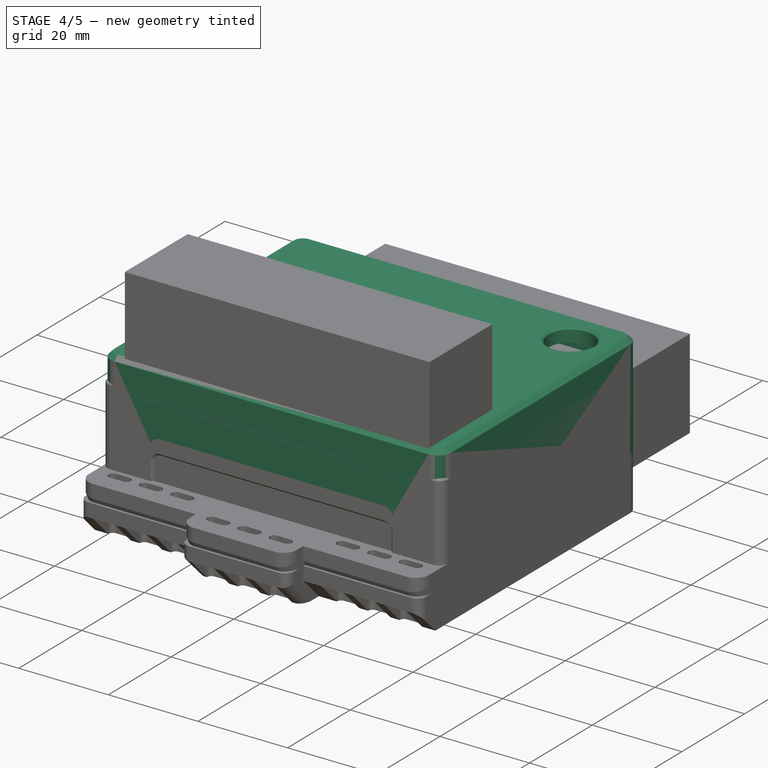
[diagram: stage 4 of 5 — iso view after this stage's code; geometry added in this stage tinted green]
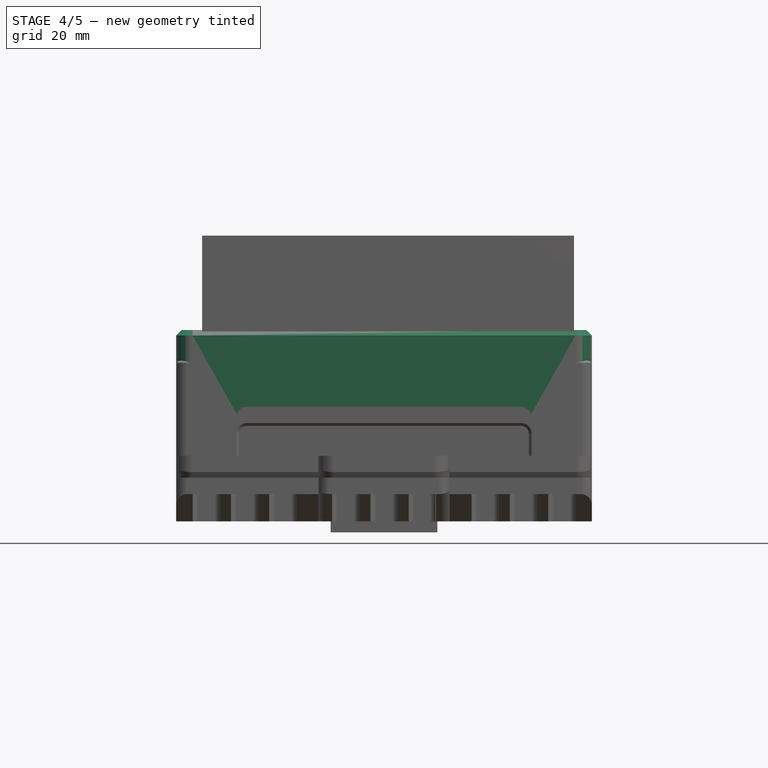
[diagram: stage 4 of 5 — front view after this stage's code; geometry added in this stage tinted green]
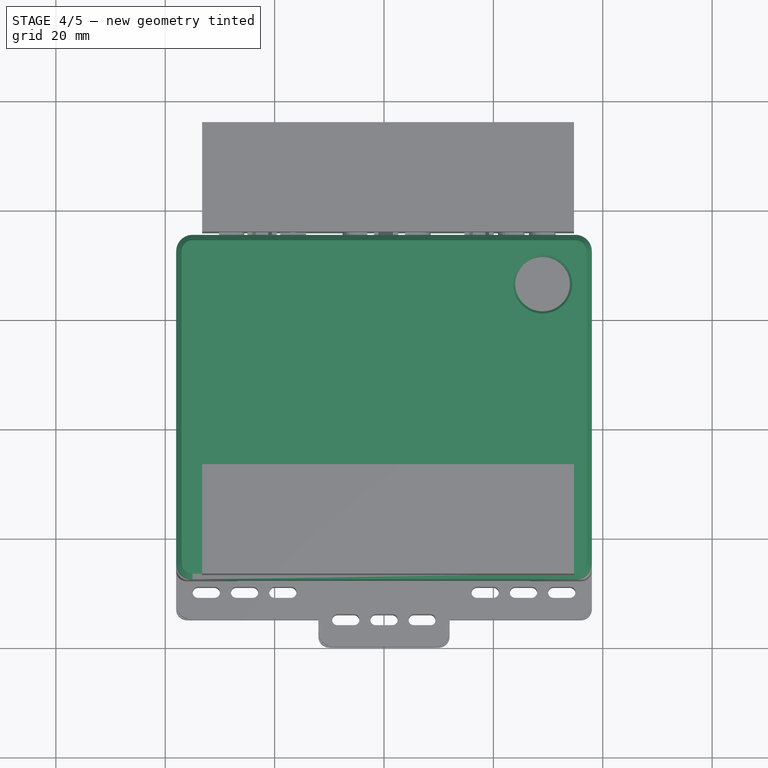
[diagram: stage 4 of 5 — top view after this stage's code; geometry added in this stage tinted green]
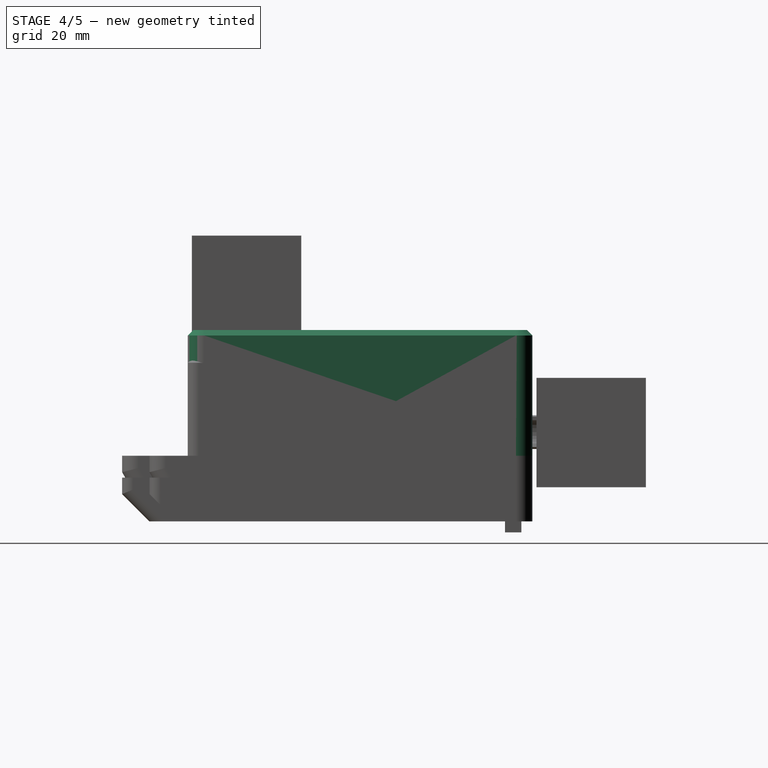
[diagram: stage 4 of 5 — right view after this stage's code; geometry added in this stage tinted green]
FEATURE [Part::Feature] Fillet007001  label="side-cut001"
  shape: bbox 2.85 x 21.5 x 15 mm, 16 faces, 2 solids (baked)
FEATURE [Part::Feature] Fillet007002  label="side-cut002"
  Placement = pos=(0,0,0) rot=(0,0,1;3.14159rad)
  shape: bbox 2.85 x 21.5 x 15 mm, 16 faces, 2 solids (baked)
FEATURE [Part::Feature] Fillet007003  label="side-cut003"
  Placement = pos=(-1e-15,-3,0) rot=(0,0,-1;1.5708rad)
  shape: bbox 21.5 x 2.85 x 15 mm, 16 faces, 2 solids (baked)
FEATURE [Part::Feature] Fillet007004  label="side-cut004"
  Placement = pos=(-8e-16,-4,0) rot=(0,0,-1;1.5708rad)
  shape: bbox 21.5 x 2.85 x 15 mm, 16 faces, 2 solids (baked)
FEATURE [Part::Feature] Fillet007005  label="side-cut005"
  Placement = pos=(1,0,0) rot=(0,0,1;0rad)
  shape: bbox 2.85 x 21.5 x 15 mm, 16 faces, 2 solids (baked)
FEATURE [Part::Feature] Fillet007006  label="side-cut006"
  Placement = pos=(-1,0,0) rot=(0,0,1;3.14159rad)
  shape: bbox 2.85 x 21.5 x 15 mm, 16 faces, 2 solids (baked)
FEATURE [Part::MultiFuse] Fusion004007
  Placement = pos=(0,0,-5) rot=(0,0,1;0rad)
  Refine = true
  Shapes = -> [Fillet007006,Fillet007005,Fillet007004,Fillet007003,Fillet007002,Fillet007001]
FEATURE [Part::Box] Box004  label="Cube004"
  AttacherType = Attacher::AttachEngine3D
  Height = 6.5
  Length = 2
  Placement = pos=(-35.5,-9.75,6.5) rot=(0,0,1;0rad)
  Width = 19.5
FEATURE [Part::Feature] Fusion004008001  label="clip001"
  Placement = pos=(0,0,0) rot=(0,0,1;3.14159rad)
  shape: bbox 4.5 x 19.5 x 11.5 mm, 16 faces (baked)
FEATURE [Part::Feature] Fusion004008002  label="clip002"
  shape: bbox 4.5 x 19.5 x 11.5 mm, 16 faces (baked)
FEATURE [Part::Feature] Fusion004008003  label="clip003"
  Placement = pos=(-1e-15,-3,0) rot=(0,0,-1;1.5708rad)
  shape: bbox 19.5 x 4.5 x 11.5 mm, 16 faces (baked)
FEATURE [Part::MultiFuse] Fusion004008004
  Shapes = -> [Fusion004008003,Fusion004008002,Fusion004008001,Body002001]
FEATURE [Part::Cut] Cut
  Base = -> Fusion004008004
  Tool = -> Fusion004007
FEATURE [Part::Chamfer] Chamfer013004014  label="tape-cut"
  Base = -> Box004
  Edges = 2 edges r=0.5: [Edge2,Edge4]
  Placement = pos=(0,0,0.5) rot=(0,0,1;0rad)
FEATURE [Part::Feature] Chamfer013004014001  label="tape-cut001"
  Placement = pos=(0,0,0.5) rot=(0,0,1;0rad)
  shape: bbox 2 x 19.5 x 6.5 mm, 8 faces (baked)
FEATURE [Part::Feature] Chamfer013004014002  label="tape-cut002"
  Placement = pos=(0,0,0.5) rot=(0,0,1;3.14159rad)
  shape: bbox 2 x 19.5 x 6.5 mm, 8 faces (baked)
FEATURE [Part::Feature] Chamfer013004014003  label="tape-cut003"
  Placement = pos=(-1e-15,-3,0.5) rot=(0,0,-1;1.5708rad)
  shape: bbox 19.5 x 2 x 6.5 mm, 8 faces (baked)
FEATURE [Part::MultiFuse] Fusion004008005
  Shapes = -> [Chamfer013004014003,Chamfer013004014002,Chamfer013004014001]
FEATURE [Part::Cut] Cut001
  Base = -> Cut
  Refine = true
  Tool = -> Fusion004008005
FEATURE [PartDesign::Chamfer] Chamfer013004014005
  Angle = 45
  Base = -> Chamfer013004014004 [Edge399,Edge437,Edge422]
  BaseFeature = -> Chamfer013004014004
  ChamferType = 0
  FlipDirection = false
  Size = 1.5
  Size2 = 1
  SupportTransform = false
FEATURE [PartDesign::Chamfer] Chamfer013004014006
  Angle = 45
  Base = -> Chamfer013004014005 [Edge438,Edge25,Edge457]
  BaseFeature = -> Chamfer013004014005
  ChamferType = 0
  FlipDirection = false
  Size = 1.99
  Size2 = 1
  SupportTransform = false
FEATURE [Sketcher::SketchObject] Sketch022
  FullyConstrained = true
  MapMode = 5
  Placement = pos=(0,0,0) rot=(1,0,0;3.14159rad)
  Support = -> [Chamfer013004014006]
  sketch-geometry (1):
    g0: Circle CenterX=29 CenterY=-26 CenterZ=0 NormalX=0 NormalY=0 NormalZ=1 AngleXU=0 Radius=1.7
  constraints (3):
    c: Radius(g0) = 1.7
    c: DistanceX(g-1,g0) = 29
    c: DistanceY(g0,g-1) = 26
FEATURE [PartDesign::Pocket] Pocket018
  BaseFeature = -> Chamfer013004014006
  Length = 5
  Length2 = 100
  Profile = -> Sketch022
  Type = 1
FEATURE [Sketcher::SketchObject] Sketch023
  FullyConstrained = true
  MapMode = 5
  Placement = pos=(0,0,0) rot=(1,0,0;3.14159rad)
  Support = -> [Pocket018]
  sketch-geometry (1):
    g0: Circle CenterX=29 CenterY=-26 CenterZ=0 NormalX=0 NormalY=0 NormalZ=1 AngleXU=0 Radius=1.95
  constraints (3):
    c: DistanceX(g-1,g0) = 29
    c: DistanceY(g0,g-1) = 26
    c: Radius(g0) = 1.95
FEATURE [PartDesign::Pocket] Pocket019
  BaseFeature = -> Pocket018
  Length = 7
  Length2 = 100
  Profile = -> Sketch023
  Type = 0
FEATURE [PartDesign::Chamfer] Chamfer013004014007
  Angle = 45
  Base = -> Pocket019 [Edge28,Edge29,Edge439,Edge444,Edge445]
  BaseFeature = -> Pocket019
  ChamferType = 0
  FlipDirection = false
  Size = 0.4
  Size2 = 1
  SupportTransform = false
FEATURE [Sketcher::SketchObject] Sketch024
  FullyConstrained = true
  MapMode = 5
  Placement = pos=(0,0,12) rot=(0,0,1;0rad)
  Support = -> [Chamfer013004014007]
  sketch-geometry (8):
    g0: LineSegment StartX=-30 StartY=26 StartZ=0 EndX=-23 EndY=26 EndZ=0
    g1: LineSegment StartX=-23 StartY=26 StartZ=0 EndX=-23 EndY=22 EndZ=0
    g2: LineSegment StartX=-23 StartY=22 StartZ=0 EndX=-30 EndY=22 EndZ=0
    g3: LineSegment StartX=-30 StartY=22 StartZ=0 EndX=-30 EndY=26 EndZ=0
    g4: LineSegment StartX=-19 StartY=26 StartZ=0 EndX=-12 EndY=26 EndZ=0
    g5: LineSegment StartX=-12 StartY=26 StartZ=0 EndX=-12 EndY=22 EndZ=0
    g6: LineSegment StartX=-12 StartY=22 StartZ=0 EndX=-19 EndY=22 EndZ=0
    g7: LineSegment StartX=-19 StartY=22 StartZ=0 EndX=-19 EndY=26 EndZ=0
  constraints (24):
    c: Coincident(g0,g1)
    c: Coincident(g1,g2)
    c: Coincident(g2,g3)
    c: Coincident(g3,g0)
    c: Horizontal(g0)
    c: Horizontal(g2)
    c: Vertical(g1)
    c: Vertical(g3)
    c: Coincident(g4,g5)
    c: Coincident(g5,g6)
    c: Coincident(g6,g7)
    c: Coincident(g7,g4)
    c: Horizontal(g4)
    c: Horizontal(g6)
    c: Vertical(g5)
    c: Vertical(g7)
    c: Horizontal(g0,g4)
    c: Horizontal(g1,g6)
    c: DistanceX(g0,g0) = 7
    c: DistanceX(g4,g4) = 7
    c: DistanceX(g0,g4) = 4
    c: DistanceY(g7,g7) = 4
    c: DistanceY(g-1,g5) = 22
    c: DistanceX(g5,g-1) = 12
FEATURE [PartDesign::Pad] Pad004
  BaseFeature = -> Chamfer013004014007
  Direction = (1,1,1)
  Length = 4
  Length2 = 100
  Profile = -> Sketch024
  Type = 0
FEATURE [Sketcher::SketchObject] Sketch025
  FullyConstrained = true
  MapMode = 5
  Placement = pos=(0,26,0) rot=(0,0.707107,0.707107;3.14159rad)
  Support = -> [Pad004]
  sketch-geometry (8):
    g0: LineSegment StartX=14 StartY=14 StartZ=0 EndX=17 EndY=14 EndZ=0
    g1: LineSegment StartX=17 StartY=14 StartZ=0 EndX=17 EndY=12 EndZ=0
    g2: LineSegment StartX=17 StartY=12 StartZ=0 EndX=14 EndY=12 EndZ=0
    g3: LineSegment StartX=14 StartY=12 StartZ=0 EndX=14 EndY=14 EndZ=0
    g4: LineSegment StartX=25 StartY=14 StartZ=0 EndX=28 EndY=14 EndZ=0
    g5: LineSegment StartX=28 StartY=14 StartZ=0 EndX=28 EndY=12 EndZ=0
    g6: LineSegment StartX=28 StartY=12 StartZ=0 EndX=25 EndY=12 EndZ=0
    g7: LineSegment StartX=25 StartY=12 StartZ=0 EndX=25 EndY=14 EndZ=0
  constraints (24):
    c: Coincident(g0,g1)
    c: Coincident(g1,g2)
    c: Coincident(g2,g3)
    c: Coincident(g3,g0)
    c: Horizontal(g0)
    c: Horizontal(g2)
    c: Vertical(g1)
    c: Vertical(g3)
    c: Coincident(g4,g5)
    c: Coincident(g5,g6)
    c: Coincident(g6,g7)
    c: Coincident(g7,g4)
    c: Horizontal(g4)
    c: Horizontal(g6)
    c: Vertical(g5)
    c: Vertical(g7)
    c: Horizontal(g0,g4)
    c: Horizontal(g1,g6)
    c: DistanceY(g1,g1) = 2
    c: DistanceX(g0,g0) = 3
    c: DistanceX(g4,g4) = 3
    c: DistanceX(g-1,g2) = 14
    c: DistanceY(g-1,g2) = 12
    c: DistanceX(g0,g4) = 8
FEATURE [PartDesign::Pocket] Pocket020
  BaseFeature = -> Pad004
  Length = 0
  Length2 = 100
  Profile = -> Sketch025
  Type = 3
  UpToFace = -> Pad004 [Face125]
FEATURE [PartDesign::Chamfer] Chamfer013004014008
  Angle = 45
  Base = -> Pocket020 [Edge218,Edge210,Edge214,Edge206]
  BaseFeature = -> Pocket020
  ChamferType = 0
  FlipDirection = false
  Size = 1.5
  Size2 = 1
  SupportTransform = false
FEATURE [PartDesign::Chamfer] Chamfer013004014009
  Angle = 45
  Base = -> Chamfer013004014008 [Edge48,Edge130,Edge141,Edge59]
  BaseFeature = -> Chamfer013004014008
  ChamferType = 0
  FlipDirection = false
  Size = 1
  Size2 = 1
  SupportTransform = false
FEATURE [PartDesign::Chamfer] Chamfer013004014010
  Angle = 45
  Base = -> Chamfer013004014009 [Edge43,Edge41,Edge39,Edge37,Edge35,Edge512,Edge514,Edge516,Edge524,Edge522]
  BaseFeature = -> Chamfer013004014009
  ChamferType = 0
  FlipDirection = false
  Size = 0.4
  Size2 = 1
  SupportTransform = false
FEATURE [Sketcher::SketchObject] Sketch026
  FullyConstrained = true
  MapMode = 5
  Placement = pos=(0,0,0) rot=(1,0,0;3.14159rad)
  Support = -> [Chamfer013004014010]
  sketch-geometry (16):
    g0: LineSegment StartX=-24 StartY=25 StartZ=0 EndX=-22 EndY=25 EndZ=0
    g1: LineSegment StartX=-22 StartY=25 StartZ=0 EndX=-22 EndY=-29 EndZ=0
    g2: LineSegment StartX=-22 StartY=-29 StartZ=0 EndX=-24 EndY=-29 EndZ=0
    g3: LineSegment StartX=-24 StartY=-29 StartZ=0 EndX=-24 EndY=25 EndZ=0
    g4: LineSegment StartX=-10 StartY=-25 StartZ=0 EndX=-8 EndY=-25 EndZ=0
    g5: LineSegment StartX=-8 StartY=-25 StartZ=0 EndX=-8 EndY=30 EndZ=0
    g6: LineSegment StartX=-8 StartY=30 StartZ=0 EndX=-10 EndY=30 EndZ=0
    g7: LineSegment StartX=-10 StartY=30 StartZ=0 EndX=-10 EndY=-25 EndZ=0
    g8: LineSegment StartX=8 StartY=30 StartZ=0 EndX=10 EndY=30 EndZ=0
    g9: LineSegment StartX=10 StartY=30 StartZ=0 EndX=10 EndY=-25 EndZ=0
    g10: LineSegment StartX=10 StartY=-25 StartZ=0 EndX=8 EndY=-25 EndZ=0
    g11: LineSegment StartX=8 StartY=-25 StartZ=0 EndX=8 EndY=30 EndZ=0
    g12: LineSegment StartX=22 StartY=25 StartZ=0 EndX=24 EndY=25 EndZ=0
    g13: LineSegment StartX=24 StartY=25 StartZ=0 EndX=24 EndY=-29 EndZ=0
    g14: LineSegment StartX=24 StartY=-29 StartZ=0 EndX=22 EndY=-29 EndZ=0
    g15: LineSegment StartX=22 StartY=-29 StartZ=0 EndX=22 EndY=25 EndZ=0
  constraints (48):
    c: Coincident(g0,g1)
    c: Coincident(g1,g2)
    c: Coincident(g2,g3)
    c: Coincident(g3,g0)
    c: Horizontal(g0)
    c: Horizontal(g2)
    c: Vertical(g1)
    c: Vertical(g3)
    c: Coincident(g4,g5)
    c: Coincident(g5,g6)
    c: Coincident(g6,g7)
    c: Coincident(g7,g4)
    c: Horizontal(g4)
    c: Horizontal(g6)
    c: Vertical(g5)
    c: Vertical(g7)
    c: Coincident(g8,g9)
    c: Coincident(g9,g10)
    c: Coincident(g10,g11)
    c: Coincident(g11,g8)
    c: Horizontal(g8)
    c: Horizontal(g10)
    c: Vertical(g9)
    c: Vertical(g11)
    c: Coincident(g12,g13)
    c: Coincident(g13,g14)
    c: Coincident(g14,g15)
    c: Coincident(g15,g12)
    c: Horizontal(g12)
    c: Horizontal(g14)
    c: Vertical(g13)
    c: Vertical(g15)
    c: Horizontal(g0,g12)
    c: Horizontal(g1,g14)
    c: Horizontal(g4,g10)
    c: Horizontal(g5,g8)
    c: DistanceY(g-1,g5) = 30
    c: DistanceY(g4,g-1) = 25
    c: DistanceY(g-1,g0) = 25
    c: DistanceY(g1,g-1) = 29
    c: DistanceX(g2,g2) = 2
    c: DistanceX(g4,g4) = 2
    c: DistanceX(g10,g10) = 2
    c: DistanceX(g14,g14) = 2
    c: DistanceX(g1,g-1) = 22
    c: DistanceX(g-1,g14) = 22
    c: DistanceX(g4,g-1) = 8
    c: DistanceX(g-1,g10) = 8
FEATURE [PartDesign::Pocket] Pocket021
  BaseFeature = -> Chamfer013004014010
  Length = 4
  Length2 = 100
  Profile = -> Sketch026
  Type = 0
FEATURE [Sketcher::SketchObject] Sketch027
  FullyConstrained = true
  MapMode = 5
  Placement = pos=(0,0,5.5) rot=(0,0,1;0rad)
  Support = -> [Pocket021]
  sketch-geometry (28):
    g0: LineSegment StartX=-22 StartY=1 StartZ=0 EndX=22 EndY=1 EndZ=0
    g1: LineSegment StartX=22 StartY=1 StartZ=0 EndX=22 EndY=-2 EndZ=0
    g2: LineSegment StartX=22 StartY=-2 StartZ=0 EndX=-22 EndY=-2 EndZ=0
    g3: LineSegment StartX=-22 StartY=-2 StartZ=0 EndX=-22 EndY=1 EndZ=0
    g4: LineSegment StartX=-23 StartY=-17.5 StartZ=0 EndX=23 EndY=-17.5 EndZ=0
    g5: LineSegment StartX=23 StartY=-17.5 StartZ=0 EndX=23 EndY=-19.5 EndZ=0
    g6: LineSegment StartX=23 StartY=-19.5 StartZ=0 EndX=-23 EndY=-19.5 EndZ=0
    g7: LineSegment StartX=-23 StartY=-19.5 StartZ=0 EndX=-23 EndY=-17.5 EndZ=0
    g8: LineSegment StartX=-18.5 StartY=17 StartZ=0 EndX=-15.5 EndY=17 EndZ=0
    g9: LineSegment StartX=-15.5 StartY=17 StartZ=0 EndX=-15.5 EndY=11 EndZ=0
    g10: LineSegment StartX=-15.5 StartY=11 StartZ=0 EndX=-18.5 EndY=11 EndZ=0
    g11: LineSegment StartX=-18.5 StartY=11 StartZ=0 EndX=-18.5 EndY=17 EndZ=0
    g12: LineSegment StartX=15.5 StartY=17 StartZ=0 EndX=18.5 EndY=17 EndZ=0
    g13: LineSegment StartX=18.5 StartY=17 StartZ=0 EndX=18.5 EndY=11 EndZ=0
    g14: LineSegment StartX=18.5 StartY=11 StartZ=0 EndX=15.5 EndY=11 EndZ=0
    g15: LineSegment StartX=15.5 StartY=11 StartZ=0 EndX=15.5 EndY=17 EndZ=0
    g16: LineSegment StartX=-7 StartY=10.5 StartZ=0 EndX=7 EndY=10.5 EndZ=0
    g17: LineSegment StartX=7 StartY=10.5 StartZ=0 EndX=7 EndY=7.5 EndZ=0
    g18: LineSegment StartX=7 StartY=7.5 StartZ=0 EndX=-7 EndY=7.5 EndZ=0
    g19: LineSegment StartX=-7 StartY=7.5 StartZ=0 EndX=-7 EndY=10.5 EndZ=0
    g20: LineSegment StartX=-7 StartY=19.5 StartZ=0 EndX=7 EndY=19.5 EndZ=0
    g21: LineSegment StartX=7 StartY=19.5 StartZ=0 EndX=7 EndY=17.5 EndZ=0
    g22: LineSegment StartX=7 StartY=17.5 StartZ=0 EndX=-7 EndY=17.5 EndZ=0
    g23: LineSegment StartX=-7 StartY=17.5 StartZ=0 EndX=-7 EndY=19.5 EndZ=0
    g24: LineSegment StartX=-23 StartY=-9 StartZ=0 EndX=23 EndY=-9 EndZ=0
    g25: LineSegment StartX=23 StartY=-9 StartZ=0 EndX=23 EndY=-12 EndZ=0
    g26: LineSegment StartX=23 StartY=-12 StartZ=0 EndX=-23 EndY=-12 EndZ=0
    g27: LineSegment StartX=-23 StartY=-12 StartZ=0 EndX=-23 EndY=-9 EndZ=0
  constraints (84):
    c: Coincident(g0,g1)
    c: Coincident(g1,g2)
    c: Coincident(g2,g3)
    c: Coincident(g3,g0)
    c: Horizontal(g0)
    c: Horizontal(g2)
    c: Vertical(g1)
    c: Vertical(g3)
    c: Coincident(g4,g5)
    c: Coincident(g5,g6)
    c: Coincident(g6,g7)
    c: Coincident(g7,g4)
    c: Horizontal(g4)
    c: Horizontal(g6)
    c: Vertical(g5)
    c: Vertical(g7)
    c: Coincident(g8,g9)
    c: Coincident(g9,g10)
    c: Coincident(g10,g11)
    c: Coincident(g11,g8)
    c: Horizontal(g8)
    c: Horizontal(g10)
    c: Vertical(g9)
    c: Vertical(g11)
    c: Coincident(g12,g13)
    c: Coincident(g13,g14)
    c: Coincident(g14,g15)
    c: Coincident(g15,g12)
    c: Horizontal(g12)
    c: Horizontal(g14)
    c: Vertical(g13)
    c: Vertical(g15)
    c: Coincident(g16,g17)
    c: Coincident(g17,g18)
    c: Coincident(g18,g19)
    c: Coincident(g19,g16)
    c: Horizontal(g16)
    c: Horizontal(g18)
    c: Vertical(g17)
    c: Vertical(g19)
    c: Coincident(g20,g21)
    c: Coincident(g21,g22)
    c: Coincident(g22,g23)
    c: Coincident(g23,g20)
    c: Horizontal(g20)
    c: Horizontal(g22)
    c: Vertical(g21)
    c: Vertical(g23)
    c: Coincident(g24,g25)
    c: Coincident(g25,g26)
    c: Coincident(g26,g27)
    c: Coincident(g27,g24)
    c: Horizontal(g24)
    c: Horizontal(g26)
    c: Vertical(g25)
    c: Vertical(g27)
    c: Vertical(g4,g26)
    c: Vertical(g25,g4)
    c: Vertical(g16,g22)
    c: Vertical(g21,g16)
    c: Horizontal(g8,g12)
    c: Horizontal(g9,g14)
    c: DistanceX(g2,g-1) = 22
    c: DistanceX(g0,g0) = 44
    c: DistanceY(g2,g-1) = 2
    c: DistanceY(g-1,g0) = 1
    c: DistanceX(g24,g24) = 46
    c: DistanceX(g24,g-1) = 23
    c: DistanceY(g25,g25) = 3
    c: DistanceY(g5,g5) = 2
    c: DistanceY(g24,g-1) = 9
    c: DistanceY(g4,g-1) = 17.5
    c: DistanceX(g10,g10) = 3
    c: DistanceX(g14,g14) = 3
    c: DistanceX(g9,g-1) = 15.5
    c: DistanceX(g-1,g14) = 15.5
    c: DistanceY(g11,g11) = 6
    c: DistanceY(g-1,g9) = 11
    c: DistanceY(g17,g17) = 3
    c: DistanceY(g23,g23) = 2
    c: DistanceY(g-1,g21) = 17.5
    c: DistanceY(g16,g22) = 7
    c: DistanceX(g20,g20) = 14
    c: DistanceX(g22,g-1) = 7
FEATURE [PartDesign::Pad] Pad005
  BaseFeature = -> Pocket021
  Direction = (1,1,1)
  Length = 5
  Length2 = 100
  Profile = -> Sketch027
  Type = 0
FEATURE [PartDesign::Fillet] Fillet007010
  Base = -> Pad005 [Edge653,Edge657,Edge696,Edge694,Edge704,Edge702,Edge710,Edge712,Edge720,Edge718,Edge615,Edge728,Edge726,Edge619,Edge709,Edge714,Edge722,Edge730,Edge725,Edge706,Edge701,Edge698,Edge693,Edge717]
  BaseFeature = -> Pad005
  Radius = 1
  SupportTransform = false
FEATURE [PartDesign::Chamfer] Chamfer013004014011
  Angle = 45
  Base = -> Fillet007010 [Edge550,Edge549,Edge535,Edge555,Edge544]
  BaseFeature = -> Fillet007010
  ChamferType = 0
  FlipDirection = false
  Size = 0.6
  Size2 = 1
  SupportTransform = false
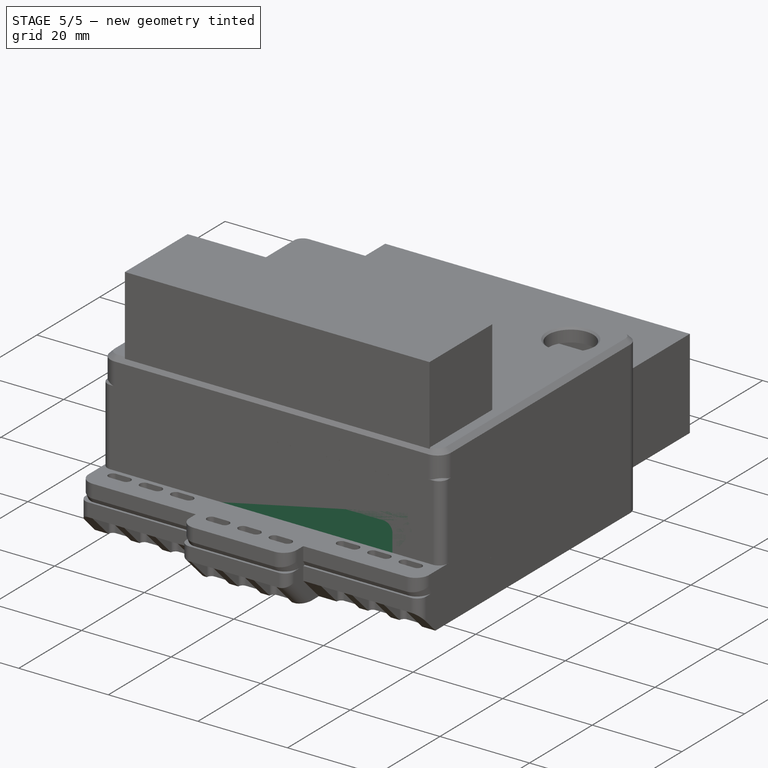
[diagram: stage 5 of 5 — iso view after this stage's code; geometry added in this stage tinted green]
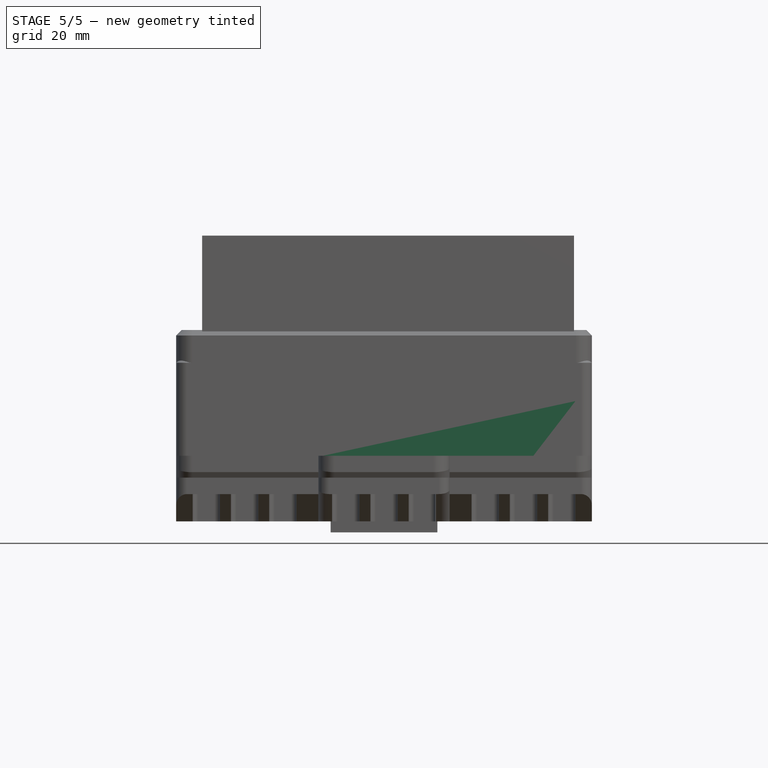
[diagram: stage 5 of 5 — front view after this stage's code; geometry added in this stage tinted green]
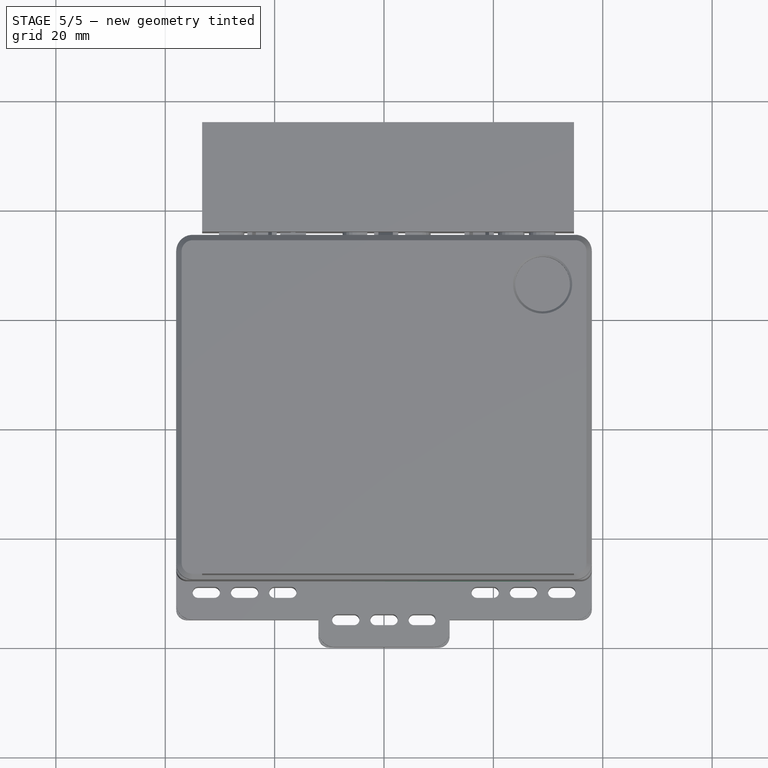
[diagram: stage 5 of 5 — top view after this stage's code; geometry added in this stage tinted green]
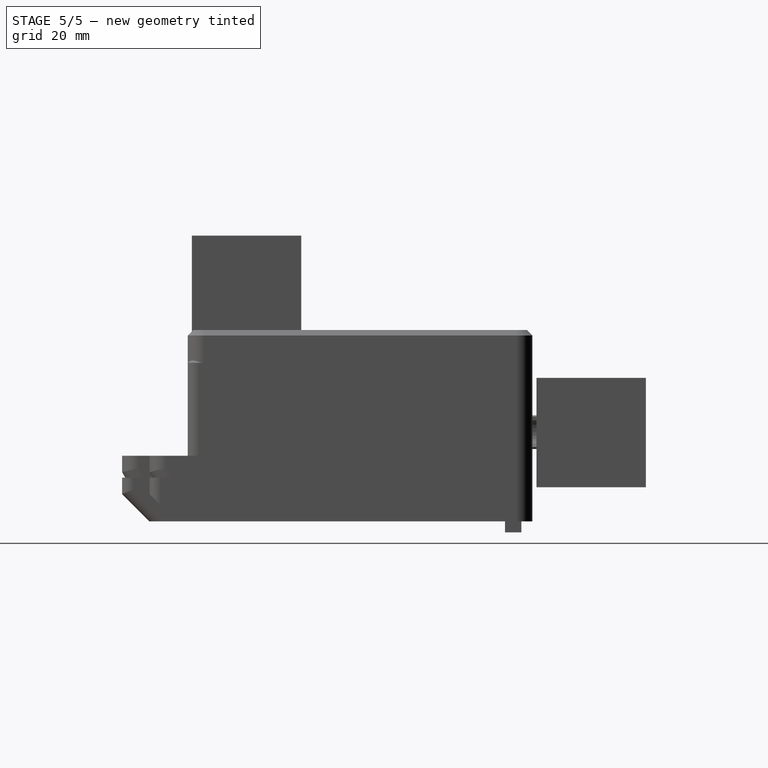
[diagram: stage 5 of 5 — right view after this stage's code; geometry added in this stage tinted green]
FEATURE [Sketcher::SketchObject] Sketch014
  FullyConstrained = true
  MapMode = 5
  Support = -> [XY_Plane002]
  sketch-geometry (4):
    g0: LineSegment StartX=-38 StartY=35 StartZ=0 EndX=38 EndY=35 EndZ=0
    g1: LineSegment StartX=38 StartY=35 StartZ=0 EndX=38 EndY=-28 EndZ=0
    g2: LineSegment StartX=38 StartY=-28 StartZ=0 EndX=-38 EndY=-28 EndZ=0
    g3: LineSegment StartX=-38 StartY=-28 StartZ=0 EndX=-38 EndY=35 EndZ=0
  constraints (12):
    c: Coincident(g0,g1)
    c: Coincident(g1,g2)
    c: Coincident(g2,g3)
    c: Coincident(g3,g0)
    c: Horizontal(g0)
    c: Horizontal(g2)
    c: Vertical(g1)
    c: Vertical(g3)
    c: DistanceX(g0,g0) = 76
    c: DistanceX(g0,g-1) = 38
    c: DistanceY(g-1,g0) = 35
    c: DistanceY(g2,g-1) = 28
FEATURE [PartDesign::Pad] Pad003
  Direction = (1,1,1)
  Length = 23
  Length2 = 100
  Profile = -> Sketch014
  Type = 0
FEATURE [PartDesign::Fillet] Fillet004
  Base = -> Pad003 [Edge1,Edge8,Edge5,Edge2]
  BaseFeature = -> Pad003
  Radius = 3
  SupportTransform = false
FEATURE [Part::Box] Box  label="Cube"
  AttacherType = Attacher::AttachEngine3D
  Height = 10
  Length = 3
  Placement = pos=(-38,-9.75,4) rot=(0,0,1;0rad)
  Width = 19.5
FEATURE [Part::Box] Box001  label="Cube001"
  AttacherType = Attacher::AttachEngine3D
  Height = 5
  Length = 4.5
  Placement = pos=(-38,-9.75,2) rot=(0,0,1;0rad)
  Width = 19.5
FEATURE [Part::Box] Box002  label="Cube002"
  AttacherType = Attacher::AttachEngine3D
  Height = 15
  Length = 2.85
  Placement = pos=(-38,-10.75,12) rot=(0,0,1;0rad)
  Width = 1
FEATURE [Part::Box] Box003  label="Cube003"
  AttacherType = Attacher::AttachEngine3D
  Height = 15
  Length = 2.85
  Placement = pos=(-38,9.75,12) rot=(0,0,1;0rad)
  Width = 1
FEATURE [Part::MultiFuse] Fusion005
  Shapes = -> [Box003,Box002]
FEATURE [Part::Chamfer] Chamfer013004004
  Base = -> Box
  Edges = 1 edges r=1: [Edge8]
FEATURE [Sketcher::SketchObject] Sketch015
  FullyConstrained = true
  MapMode = 5
  Placement = pos=(0,0,0) rot=(1,0,0;3.14159rad)
  Support = -> [Fillet004]
  sketch-geometry (4):
    g0: LineSegment StartX=-35 StartY=25 StartZ=0 EndX=35 EndY=25 EndZ=0
    g1: LineSegment StartX=35 StartY=25 StartZ=0 EndX=35 EndY=-32 EndZ=0
    g2: LineSegment StartX=35 StartY=-32 StartZ=0 EndX=-35 EndY=-32 EndZ=0
    g3: LineSegment StartX=-35 StartY=-32 StartZ=0 EndX=-35 EndY=25 EndZ=0
  constraints (12):
    c: Coincident(g0,g1)
    c: Coincident(g1,g2)
    c: Coincident(g2,g3)
    c: Coincident(g3,g0)
    c: Horizontal(g0)
    c: Horizontal(g2)
    c: Vertical(g1)
    c: Vertical(g3)
    c: DistanceX(g2,g-1) = 35
    c: DistanceY(g2,g-1) = 32
    c: DistanceX(g2,g2) = 70
    c: DistanceY(g-1,g0) = 25
FEATURE [PartDesign::Pocket] Pocket011
  BaseFeature = -> Fillet004
  Length = 20
  Length2 = 100
  Profile = -> Sketch015
  Type = 0
FEATURE [Part::Fillet] Fillet007  label="side-cut"
  Base = -> Fusion005
  Edges = 4 edges r=0.4: [Edge10,Edge12,Edge22,Edge24]
FEATURE [Sketcher::SketchObject] Sketch016
  FullyConstrained = true
  MapMode = 5
  Placement = pos=(0,-28,0) rot=(1,0,0;1.5708rad)
  Support = -> [Pocket011]
  sketch-geometry (4):
    g0: LineSegment StartX=-26 StartY=8 StartZ=0 EndX=26 EndY=8 EndZ=0
    g1: LineSegment StartX=26 StartY=8 StartZ=0 EndX=26 EndY=0 EndZ=0
    g2: LineSegment StartX=26 StartY=0 StartZ=0 EndX=-26 EndY=0 EndZ=0
    g3: LineSegment StartX=-26 StartY=0 StartZ=0 EndX=-26 EndY=8 EndZ=0
  constraints (12):
    c: Coincident(g0,g1)
    c: Coincident(g1,g2)
    c: Coincident(g2,g3)
    c: Coincident(g3,g0)
    c: Horizontal(g0)
    c: Horizontal(g2)
    c: Vertical(g1)
    c: Vertical(g3)
    c: DistanceX(g0,g0) = 52
    c: DistanceX(g0,g-1) = 26
    c: DistanceY(g1,g1) = 8
    c: DistanceY(g-1,g1) = 0
FEATURE [PartDesign::Pocket] Pocket012
  BaseFeature = -> Pocket011
  Length = 5
  Length2 = 100
  Profile = -> Sketch016
  Type = 0
FEATURE [Sketcher::SketchObject] Sketch017
  FullyConstrained = true
  MapMode = 5
  Placement = pos=(-38,0,0) rot=(0.57735,-0.57735,-0.57735;2.0944rad)
  Support = -> [Pocket012]
  sketch-geometry (4):
    g0: ArcOfCircle CenterX=-24 CenterY=8 CenterZ=0 NormalX=0 NormalY=0 NormalZ=1 AngleXU=0 Radius=4 StartAngle=0 EndAngle=3.14159
    g1: LineSegment StartX=-28 StartY=8 StartZ=0 EndX=-28 EndY=0 EndZ=0
    g2: LineSegment StartX=-28 StartY=0 StartZ=0 EndX=-20 EndY=0 EndZ=0
    g3: LineSegment StartX=-20 StartY=0 StartZ=0 EndX=-20 EndY=8 EndZ=0
  constraints (12):
    c: Horizontal(g0,g0)
    c: Horizontal(g0,g0)
    c: Tangent(g0,g1) = -1.5708
    c: Coincident(g1,g2)
    c: Horizontal(g2)
    c: Coincident(g2,g3)
    c: Coincident(g3,g0)
    c: Vertical(g3)
    c: DistanceY(g-1,g2) = 0
    c: DistanceX(g2,g-1) = 20
    c: DistanceX(g2,g2) = 8
    c: DistanceY(g1,g0) = 8
FEATURE [PartDesign::Pocket] Pocket013
  BaseFeature = -> Pocket012
  Length = 5
  Length2 = 100
  Profile = -> Sketch017
  Type = 0
FEATURE [PartDesign::Fillet] Fillet007007
  Base = -> Pocket013 [Edge38,Edge36,Edge41,Edge39]
  BaseFeature = -> Pocket013
  Radius = 2
  SupportTransform = false
FEATURE [PartDesign::Fillet] Fillet007008
  Base = -> Fillet007007 [Edge72,Edge57]
  BaseFeature = -> Fillet007007
  Radius = 1
  SupportTransform = false
FEATURE [PartDesign::Chamfer] Chamfer013004008
  Angle = 45
  Base = -> Fillet007008 [Face27,Edge63,Edge62,Edge58,Edge11,Edge14,Edge22,Edge34,Edge26]
  BaseFeature = -> Fillet007008
  ChamferType = 0
  FlipDirection = false
  Size = 1
  Size2 = 1
  SupportTransform = false
FEATURE [Sketcher::SketchObject] Sketch018
  FullyConstrained = true
  MapMode = 5
  Placement = pos=(0,0,23) rot=(0,0,1;0rad)
  Support = -> [Chamfer013004008]
  sketch-geometry (1):
    g0: Circle CenterX=29 CenterY=26 CenterZ=0 NormalX=0 NormalY=0 NormalZ=1 AngleXU=0 Radius=5
  constraints (3):
    c: Radius(g0) = 5
    c: DistanceX(g-1,g0) = 29
    c: DistanceY(g-1,g0) = 26
FEATURE [PartDesign::Pocket] Pocket014
  BaseFeature = -> Chamfer013004008
  Length = 5
  Length2 = 100
  Profile = -> Sketch018
  Type = 1
FEATURE [PartDesign::Chamfer] Chamfer013004010
  Angle = 45
  Base = -> Pocket014 [Edge90]
  BaseFeature = -> Pocket014
  ChamferType = 0
  FlipDirection = false
  Size = 0.4
  Size2 = 1
  SupportTransform = false
FEATURE [PartDesign::Body] Body002  label="top"
  Group = -> [Sketch014,Pad003,Fillet004,Sketch015,Pocket011,Sketch016,Pocket012,Sketch017,Pocket013,Fillet007007,Fillet007008,Chamfer013004008,Sketch018,Pocket014,Chamfer013004010]
  Origin = -> Origin002
  Placement = pos=(0,0,12) rot=(0,0,1;0rad)
  Tip = -> Chamfer013004010
FEATURE [Part::Chamfer] Chamfer013004011
  Base = -> Box001
  Edges = 1 edges r=2: [Edge6]
FEATURE [Part::Chamfer] Chamfer013004012
  Base = -> Chamfer013004011
  Edges = 1 edges r=2: [Edge2]
FEATURE [Part::Chamfer] Chamfer013004013
  Base = -> Chamfer013004012
  Edges = 1 edges r=1: [Edge17]
  Placement = pos=(0,0,0.5) rot=(0,0,1;0rad)
FEATURE [Part::Feature] Body002001  label="top001"
  Placement = pos=(0,0,12) rot=(0,0,1;0rad)
  shape: bbox 76 x 63 x 23 mm, 46 faces (baked)
FEATURE [Part::MultiFuse] Fusion004008  label="clip"
  Shapes = -> [Chamfer013004013,Chamfer013004004]
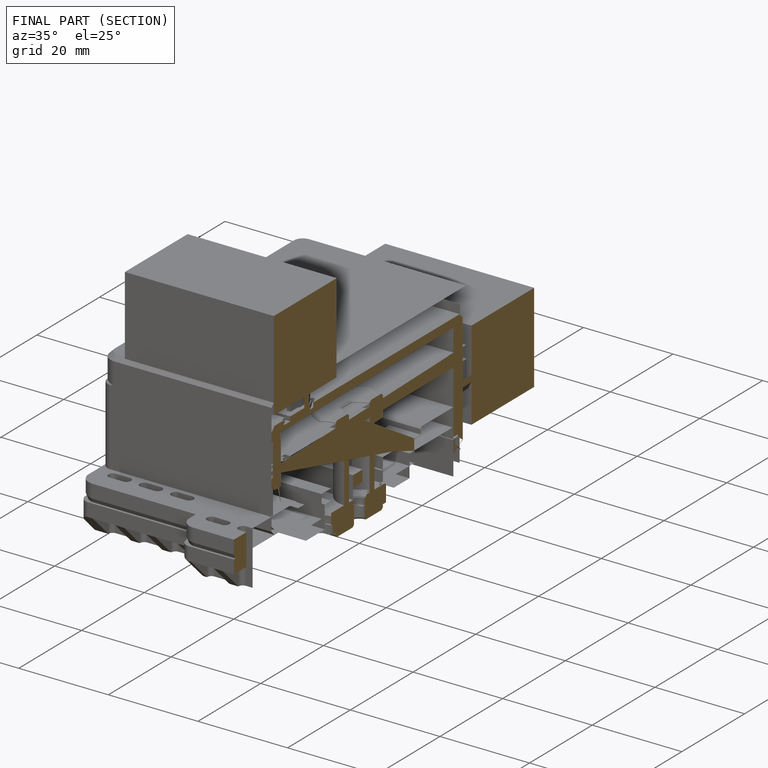
[diagram: finished part — half-section view (interior)]
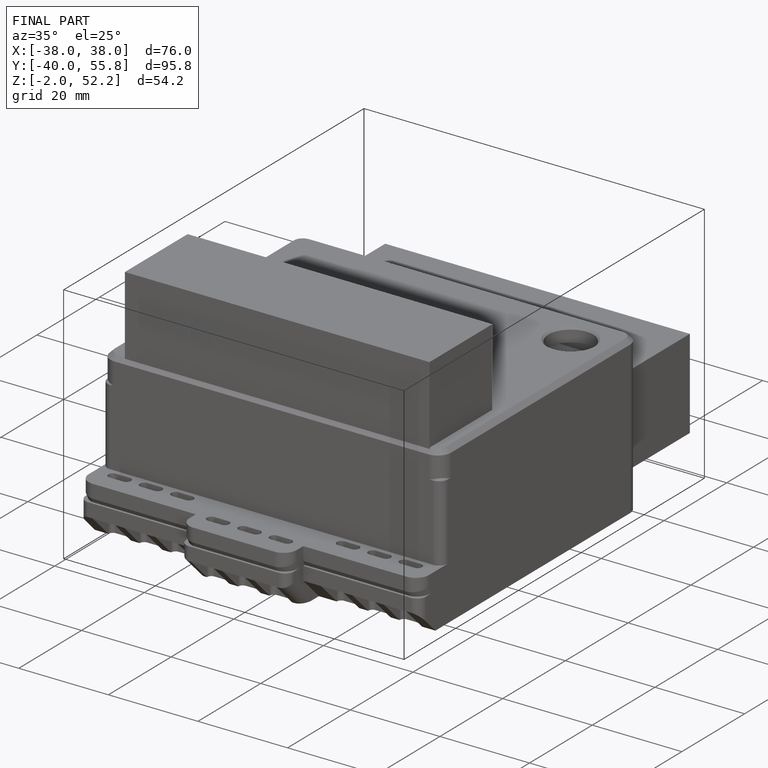
[diagram: finished part — iso view with bounding-box wireframe]
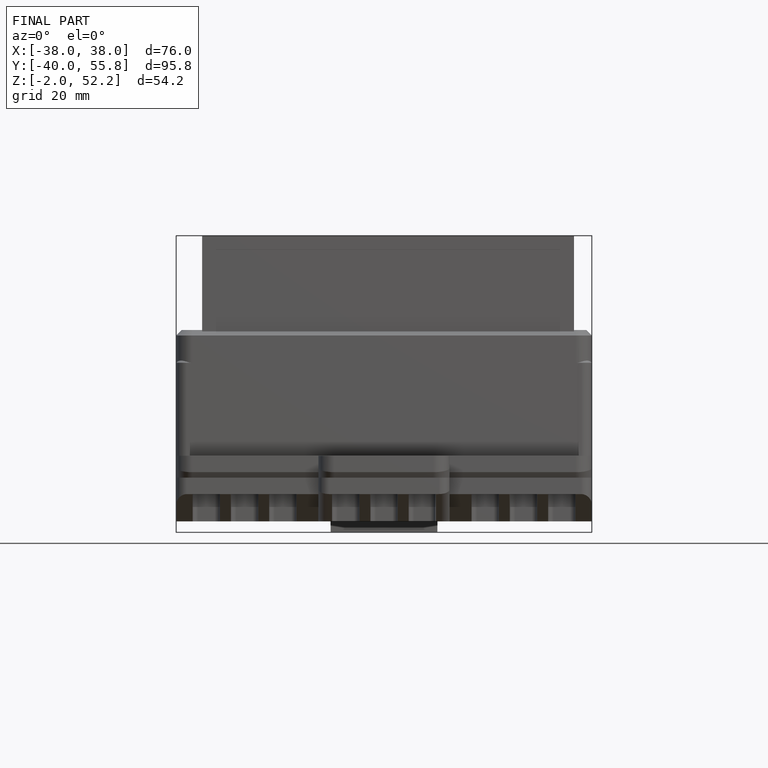
[diagram: finished part — front view with bounding-box wireframe]
